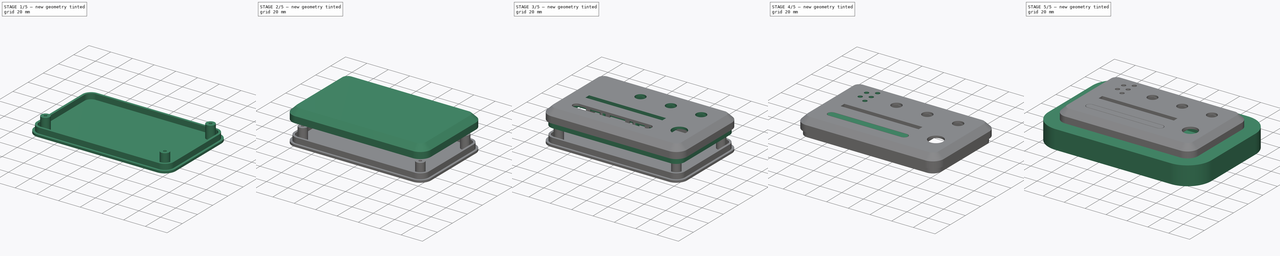
[diagram: build sequence overview — one tinted view per stage of 5, left to right]
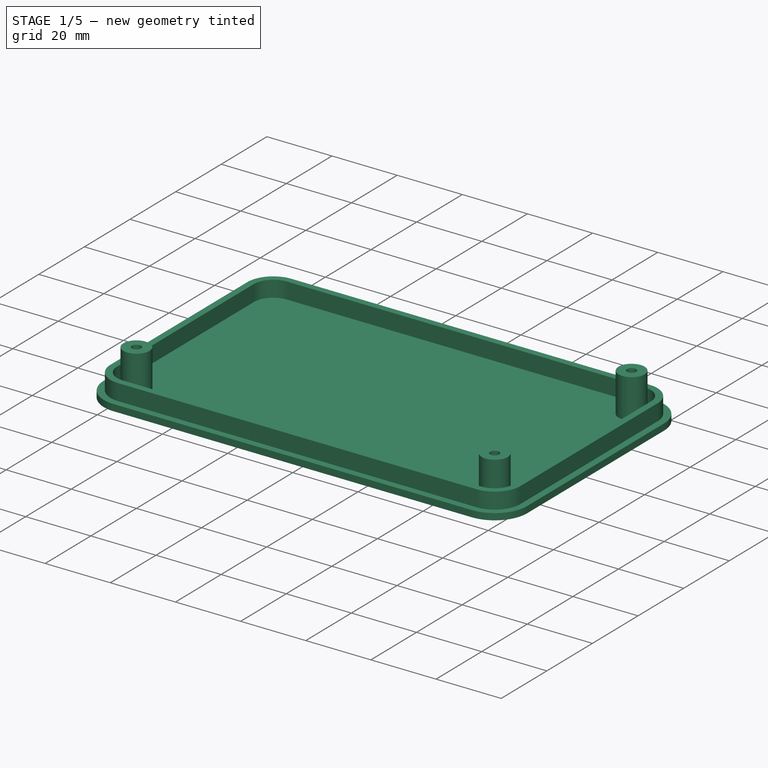
[diagram: stage 1 of 5 — iso view after this stage's code; geometry added in this stage tinted green]
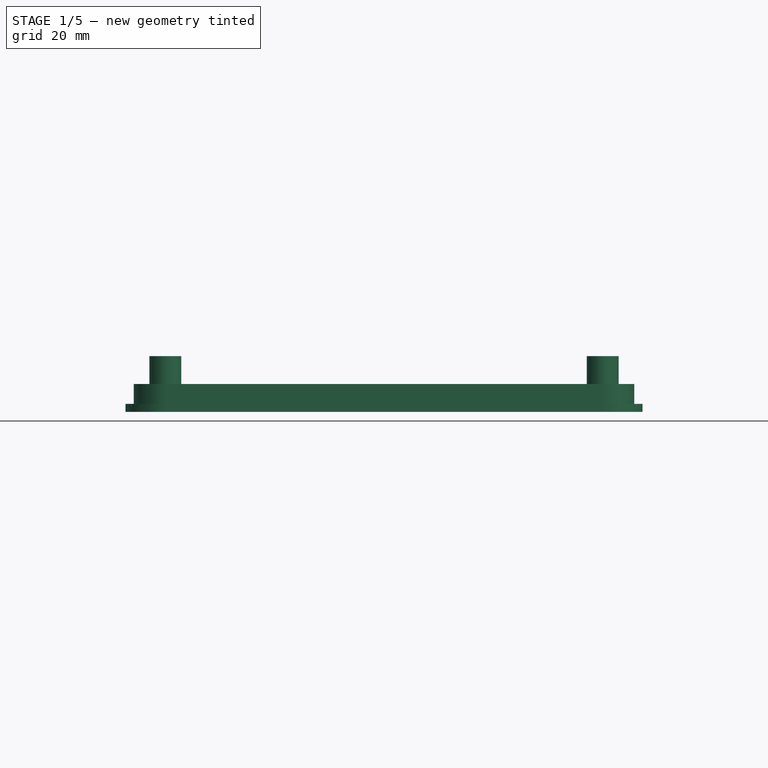
[diagram: stage 1 of 5 — front view after this stage's code; geometry added in this stage tinted green]
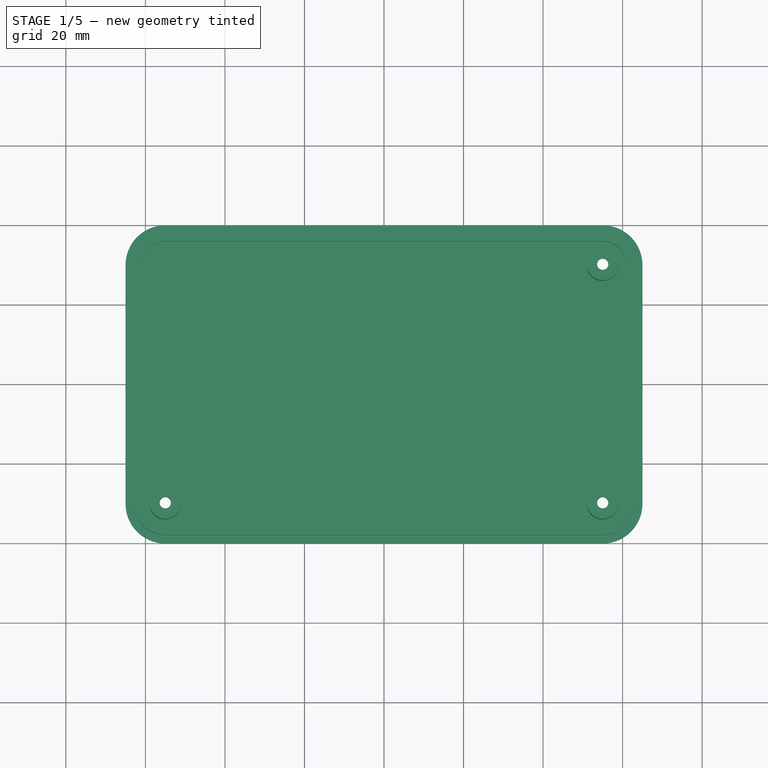
[diagram: stage 1 of 5 — top view after this stage's code; geometry added in this stage tinted green]
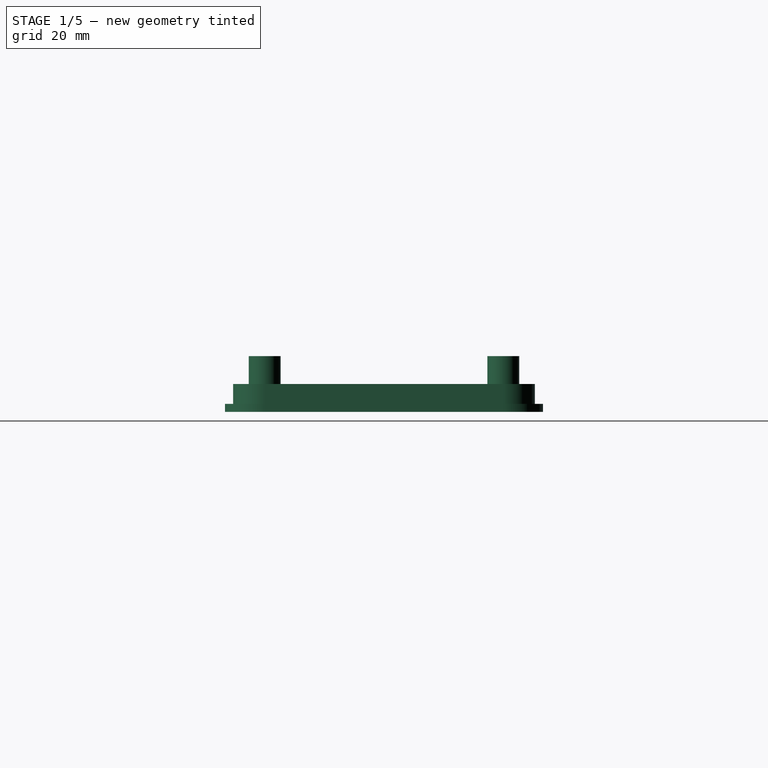
[diagram: stage 1 of 5 — right view after this stage's code; geometry added in this stage tinted green]
FCSTD DOCUMENT  (FreeCAD 2021.328R24301 +3441 (Git))
Label: granular_comtroller
License: All rights reserved
LicenseURL: http://en.wikipedia.org/wiki/All_rights_reserved
objects: Sketcher::SketchObject×29, PartDesign::Pad×16, App::Part×6, PartDesign::Body×6, PartDesign::Pocket×5, Part::SubShapeBinder×4, PartDesign::Chamfer×2, PartDesign::CoordinateSystem×2, Part::Feature×2, PartDesign::Thickness×1, PartDesign::Plane×1, PartDesign::FeatureWrap×1, Part::Extrusion×1, Part::Chamfer×1, PartDesign::SubShapeBinder×1, PartDesign::FeatureBase×1
note: 123 computed .brp shape members not serialized (recipe doc carries the construction recipe); baked Part::Feature solids carry a one-line shape summary decoded from their .brp

FEATURE [Sketcher::SketchObject] Sketch006
  FullyConstrained = false
  MapMode = 5
  sketch-geometry (4):
    g0: LineSegment StartX=-29.324 StartY=38 StartZ=0 EndX=-54.9597 EndY=38 EndZ=0
    g1: LineSegment StartX=-54.9597 StartY=38 StartZ=0 EndX=-54.9597 EndY=40 EndZ=0
    g2: LineSegment StartX=-54.9597 StartY=40 StartZ=0 EndX=-29.324 EndY=40 EndZ=0
    g3: LineSegment StartX=-29.324 StartY=40 StartZ=0 EndX=-29.324 EndY=38 EndZ=0
  constraints (10):
    c: Coincident(g0,g1)
    c: Coincident(g1,g2)
    c: Coincident(g2,g3)
    c: Coincident(g3,g0)
    c: Horizontal(g0)
    c: Horizontal(g2)
    c: Vertical(g1)
    c: Vertical(g3)
    c: DistanceY(g2) = 40
    c: DistanceY(g3,g3) = 2
FEATURE [Sketcher::SketchObject] Sketch007
  FullyConstrained = true
  MapMode = 5
  Placement = pos=(0,0,6) rot=(0,0,1;0rad)
FEATURE [Sketcher::SketchObject] Sketch008
  AttachmentOffset = pos=(0,0,-18) rot=(0,0,1;0rad)
  FullyConstrained = true
  MapMode = 5
  Placement = pos=(0,0,-18) rot=(0,0,1;0rad)
  Support = -> [XY_Plane003]
  sketch-geometry (8):
    g0: LineSegment StartX=-55 StartY=-40 StartZ=0 EndX=55 EndY=-40 EndZ=0
    g1: LineSegment StartX=65 StartY=-30 StartZ=0 EndX=65 EndY=30 EndZ=0
    g2: LineSegment StartX=55 StartY=40 StartZ=0 EndX=-55 EndY=40 EndZ=0
    g3: LineSegment StartX=-65 StartY=30 StartZ=0 EndX=-65 EndY=-30 EndZ=0
    g4: ArcOfCircle CenterX=-55 CenterY=30 CenterZ=0 NormalX=0 NormalY=0 NormalZ=1 AngleXU=0 Radius=10 StartAngle=1.5708 EndAngle=3.14159
    g5: ArcOfCircle CenterX=55 CenterY=30 CenterZ=0 NormalX=0 NormalY=0 NormalZ=1 AngleXU=0 Radius=10 StartAngle=0 EndAngle=1.5708
    g6: ArcOfCircle CenterX=-55 CenterY=-30 CenterZ=0 NormalX=0 NormalY=0 NormalZ=1 AngleXU=0 Radius=10 StartAngle=3.14159 EndAngle=4.71239
    g7: ArcOfCircle CenterX=55 CenterY=-30 CenterZ=0 NormalX=0 NormalY=0 NormalZ=1 AngleXU=0 Radius=10 StartAngle=4.71239 EndAngle=6.28319
  constraints (20):
    c: Horizontal(g0)
    c: Horizontal(g2)
    c: Vertical(g1)
    c: Tangent(g2,g4) = -1.5708
    c: Tangent(g3,g4) = -1.5708
    c: Tangent(g2,g5) = -1.5708
    c: Tangent(g1,g5) = -1.5708
    c: Tangent(g3,g6) = -1.5708
    c: Tangent(g0,g6) = -1.5708
    c: Tangent(g1,g7) = -1.5708
    c: Tangent(g0,g7) = -1.5708
    c: DistanceX(g4) = -55
    c: DistanceY(g4) = 30
    c: DistanceX(g6) = -55
    c: DistanceY(g6) = -30
    c: DistanceX(g5) = 55
    c: DistanceY(g5) = 30
    c: DistanceX(g7) = 55
    c: DistanceY(g7) = -30
    c: Radius(g4) = 10
FEATURE [Part::SubShapeBinder] Import001  label="Import001(wood_part)"
  BindCopyOnChange = 0
  BindMode = 0
  ClaimChildren = false
  Context = -> Body002 [Import001.]
  FillStyle = 0
  Fuse = false
  MakeFace = false
  PartialLoad = false
  Relative = true
  Support = -> [Chamfer001]
  _Version = 7
FEATURE [PartDesign::Pad] Pad004
  ClaimChildren = false
  Direction = (1,1,1)
  Fit = 0
  FitJoin = 0
  InnerFit = 0
  InnerFitJoin = 0
  InnerTaperAngle = 0
  InnerTaperAngleRev = 0
  Length = 2
  Length2 = 100
  NewSolid = false
  Profile = -> Sketch008
  Reversed = true
  Suppress = false
  Type = 0
FEATURE [Sketcher::SketchObject] Sketch009
  ExternalGeometry = -> [Pad004]
  FullyConstrained = false
  MapMode = 5
  Placement = pos=(0,0,-18) rot=(0,0,1;0rad)
  Support = -> [Pad004]
  sketch-geometry (16):
    g0: LineSegment StartX=-55 StartY=35.932 StartZ=0 EndX=55 EndY=35.932 EndZ=0
    g1: LineSegment StartX=60.932 StartY=30 StartZ=0 EndX=60.932 EndY=-30 EndZ=0
    g2: LineSegment StartX=55 StartY=-35.932 StartZ=0 EndX=-55 EndY=-35.932 EndZ=0
    g3: LineSegment StartX=-60.932 StartY=-30 StartZ=0 EndX=-60.932 EndY=30 EndZ=0
    g4: ArcOfCircle CenterX=55 CenterY=30 CenterZ=0 NormalX=0 NormalY=0 NormalZ=1 AngleXU=0 Radius=5.932 StartAngle=1e-16 EndAngle=1.5708
    g5: ArcOfCircle CenterX=-55 CenterY=30 CenterZ=0 NormalX=0 NormalY=0 NormalZ=1 AngleXU=0 Radius=5.932 StartAngle=1.5708 EndAngle=3.14159
    g6: ArcOfCircle CenterX=-55 CenterY=-30 CenterZ=0 NormalX=0 NormalY=0 NormalZ=1 AngleXU=0 Radius=5.932 StartAngle=3.14159 EndAngle=4.71239
    g7: ArcOfCircle CenterX=55 CenterY=-30 CenterZ=0 NormalX=0 NormalY=0 NormalZ=1 AngleXU=0 Radius=5.932 StartAngle=4.71239 EndAngle=6.28319
    g8: LineSegment StartX=-55 StartY=37.932 StartZ=0 EndX=55 EndY=37.932 EndZ=0
    g9: LineSegment StartX=62.932 StartY=30 StartZ=0 EndX=62.932 EndY=-30 EndZ=0
    g10: LineSegment StartX=55 StartY=-37.932 StartZ=0 EndX=-55 EndY=-37.932 EndZ=0
    g11: LineSegment StartX=-62.932 StartY=-30 StartZ=0 EndX=-62.932 EndY=30 EndZ=0
    g12: ArcOfCircle CenterX=-55 CenterY=30 CenterZ=0 NormalX=0 NormalY=0 NormalZ=1 AngleXU=0 Radius=7.932 StartAngle=1.5708 EndAngle=3.14159
    g13: ArcOfCircle CenterX=55 CenterY=30 CenterZ=0 NormalX=0 NormalY=0 NormalZ=1 AngleXU=0 Radius=7.932 StartAngle=0 EndAngle=1.5708
    g14: ArcOfCircle CenterX=-55 CenterY=-30 CenterZ=0 NormalX=0 NormalY=0 NormalZ=1 AngleXU=0 Radius=7.932 StartAngle=3.14159 EndAngle=4.71239
    g15: ArcOfCircle CenterX=55 CenterY=-30 CenterZ=0 NormalX=0 NormalY=0 NormalZ=1 AngleXU=0 Radius=7.932 StartAngle=4.71239 EndAngle=6.28319
  constraints (31):
    c: Horizontal(g0)
    c: Horizontal(g2)
    c: Vertical(g1)
    c: Tangent(g0,g4) = 1.5708
    c: Tangent(g1,g4) = 1.5708
    c: Tangent(g0,g5) = 1.5708
    c: Tangent(g3,g5) = 1.5708
    c: Tangent(g3,g6) = 1.5708
    c: Tangent(g2,g6) = 1.5708
    c: Tangent(g1,g7) = 1.5708
    c: Tangent(g2,g7) = 1.5708
    c: Coincident(g5,g-4)
    c: Coincident(g4,g-3)
    c: Coincident(g6,g-5)
    c: Coincident(g7,g-6)
    c: Horizontal(g8)
    c: Horizontal(g10)
    c: Vertical(g9)
    c: Tangent(g8,g12) = 1.5708
    c: Tangent(g11,g12) = 1.5708
    c: Tangent(g8,g13) = 1.5708
    c: Tangent(g9,g13) = 1.5708
    c: Tangent(g11,g14) = 1.5708
    c: Tangent(g10,g14) = 1.5708
    c: Coincident(g6,g14)
    c: Tangent(g9,g15) = 1.5708
    c: Tangent(g10,g15) = 1.5708
    c: Coincident(g15,g7)
    c: Coincident(g4,g13)
    c: Coincident(g5,g12)
    c: DistanceY(g0,g8) = 2
FEATURE [PartDesign::Pad] Pad005
  BaseFeature = -> Pad004
  ClaimChildren = false
  Direction = (1,1,1)
  Fit = 0
  FitJoin = 0
  InnerFit = 0
  InnerFitJoin = 0
  InnerTaperAngle = 0
  InnerTaperAngleRev = 0
  Length = 5
  Length2 = 100
  NewSolid = false
  Profile = -> Sketch009
  Suppress = false
  Type = 0
FEATURE [Part::SubShapeBinder] Import002  label="Import002(Pcb_e171)"
  BindCopyOnChange = 0
  BindMode = 0
  ClaimChildren = false
  Context = -> Body002 [Import002.]
  FillStyle = 0
  Fuse = false
  MakeFace = false
  PartialLoad = false
  Relative = true
  Support = -> [Board_e171[Board_Geoms_e171.Pcb_e171.]]
  _Version = 7
FEATURE [Sketcher::SketchObject] Sketch010
  ExternalGeometry = -> [Import002]
  FullyConstrained = true
  MapMode = 5
  Placement = pos=(0,0,-18) rot=(0,0,1;0rad)
  Support = -> [Pad005]
  sketch-geometry (8):
    g0: Circle CenterX=-54.96 CenterY=27.27 CenterZ=0 NormalX=0 NormalY=0 NormalZ=1 AngleXU=0 Radius=1.4
    g1: Circle CenterX=-17.69 CenterY=27.4 CenterZ=0 NormalX=0 NormalY=0 NormalZ=1 AngleXU=0 Radius=1.4
    g2: Circle CenterX=-54.95 CenterY=-4.97 CenterZ=0 NormalX=0 NormalY=0 NormalZ=1 AngleXU=0 Radius=1.4
    g3: Circle CenterX=-17.39 CenterY=-4.97 CenterZ=0 NormalX=0 NormalY=0 NormalZ=1 AngleXU=0 Radius=1.4
    g4: Circle CenterX=-17.39 CenterY=-4.97 CenterZ=0 NormalX=0 NormalY=0 NormalZ=1 AngleXU=0 Radius=3
    g5: Circle CenterX=-54.95 CenterY=-4.97 CenterZ=0 NormalX=0 NormalY=0 NormalZ=1 AngleXU=0 Radius=3
    g6: Circle CenterX=-54.96 CenterY=27.27 CenterZ=0 NormalX=0 NormalY=0 NormalZ=1 AngleXU=0 Radius=3
    g7: Circle CenterX=-17.69 CenterY=27.4 CenterZ=0 NormalX=0 NormalY=0 NormalZ=1 AngleXU=0 Radius=3
  constraints (16):
    c: Coincident(g0,g-3)
    c: Coincident(g1,g-4)
    c: Coincident(g2,g-5)
    c: Coincident(g3,g-6)
    c: Coincident(g4,g3)
    c: Coincident(g5,g2)
    c: Coincident(g6,g0)
    c: Coincident(g7,g1)
    c: Radius(g0) = 1.4
    c: Equal(g0,g1)
    c: Equal(g0,g2)
    c: Equal(g0,g3)
    c: Radius(g6) = 3
    c: Equal(g6,g7)
    c: Equal(g6,g5)
    c: Equal(g6,g4)
FEATURE [Sketcher::SketchObject] Sketch011
  ExternalGeometry = -> [Pad005]
  FullyConstrained = true
  MapMode = 5
  Placement = pos=(0,0,-18) rot=(0,0,1;0rad)
  Support = -> [Pad005]
  sketch-geometry (3):
    g0: Circle CenterX=55 CenterY=30 CenterZ=0 NormalX=0 NormalY=0 NormalZ=1 AngleXU=0 Radius=4
    g1: Circle CenterX=55 CenterY=-30 CenterZ=0 NormalX=0 NormalY=0 NormalZ=1 AngleXU=0 Radius=4
    g2: Circle CenterX=-55 CenterY=-30 CenterZ=0 NormalX=0 NormalY=0 NormalZ=1 AngleXU=0 Radius=4
  constraints (6):
    c: Coincident(g0,g-3)
    c: Coincident(g1,g-5)
    c: Coincident(g2,g-4)
    c: Equal(g2,g1)
    c: Equal(g1,g0)
    c: Radius(g2) = 4
FEATURE [PartDesign::Pad] Pad006
  BaseFeature = -> Pad005
  ClaimChildren = false
  Direction = (1,1,1)
  Fit = 0
  FitJoin = 0
  InnerFit = 0
  InnerFitJoin = 0
  InnerTaperAngle = 0
  InnerTaperAngleRev = 0
  Length = 12
  Length2 = 100
  NewSolid = false
  Profile = -> Sketch011
  Suppress = false
  Type = 0
FEATURE [Sketcher::SketchObject] Sketch012
  ExternalGeometry = -> [Pad006]
  FullyConstrained = true
  MapMode = 5
  Placement = pos=(0,0,-20) rot=(1,0,0;3.14159rad)
  Support = -> [Pad006]
  sketch-geometry (3):
    g0: Circle CenterX=-55 CenterY=30 CenterZ=0 NormalX=0 NormalY=0 NormalZ=1 AngleXU=0 Radius=3.1
    g1: Circle CenterX=55 CenterY=30 CenterZ=0 NormalX=0 NormalY=0 NormalZ=1 AngleXU=0 Radius=3.1
    g2: Circle CenterX=55 CenterY=-30 CenterZ=0 NormalX=0 NormalY=0 NormalZ=1 AngleXU=0 Radius=3.1
  constraints (6):
    c: Coincident(g0,g-4)
    c: Coincident(g1,g-3)
    c: Coincident(g2,g-5)
    c: Radius(g0) = 3.1
    c: Equal(g0,g1)
    c: Equal(g1,g2)
FEATURE [PartDesign::Pocket] Pocket001
  BaseFeature = -> Pad006
  ClaimChildren = false
  Fit = 0
  FitJoin = 0
  InnerFit = 0
  InnerFitJoin = 0
  InnerTaperAngle = 0
  InnerTaperAngleRev = 0
  Length = 12
  Length2 = 100
  NewSolid = false
  Profile = -> Sketch012
  Suppress = false
  Type = 0
FEATURE [Sketcher::SketchObject] Sketch013
  ExternalGeometry = -> [Pocket001]
  FullyConstrained = true
  MapMode = 5
  Placement = pos=(0,0,-6) rot=(0,0,1;0rad)
  Support = -> [Pocket001]
  sketch-geometry (3):
    g0: Circle CenterX=-55 CenterY=-30 CenterZ=0 NormalX=0 NormalY=0 NormalZ=1 AngleXU=0 Radius=1.4
    g1: Circle CenterX=55 CenterY=-30 CenterZ=0 NormalX=0 NormalY=0 NormalZ=1 AngleXU=0 Radius=1.4
    g2: Circle CenterX=55 CenterY=30 CenterZ=0 NormalX=0 NormalY=0 NormalZ=1 AngleXU=0 Radius=1.4
  constraints (6):
    c: Coincident(g0,g-3)
    c: Coincident(g1,g-4)
    c: Coincident(g2,g-5)
    c: Radius(g0) = 1.4
    c: Equal(g0,g1)
    c: Equal(g0,g2)
FEATURE [PartDesign::Pocket] Pocket002
  BaseFeature = -> Pocket001
  ClaimChildren = false
  Fit = 0
  FitJoin = 0
  InnerFit = 0
  InnerFitJoin = 0
  InnerTaperAngle = 0
  InnerTaperAngleRev = 0
  Length = 5
  Length2 = 100
  NewSolid = false
  Profile = -> Sketch013
  Suppress = false
  Type = 0
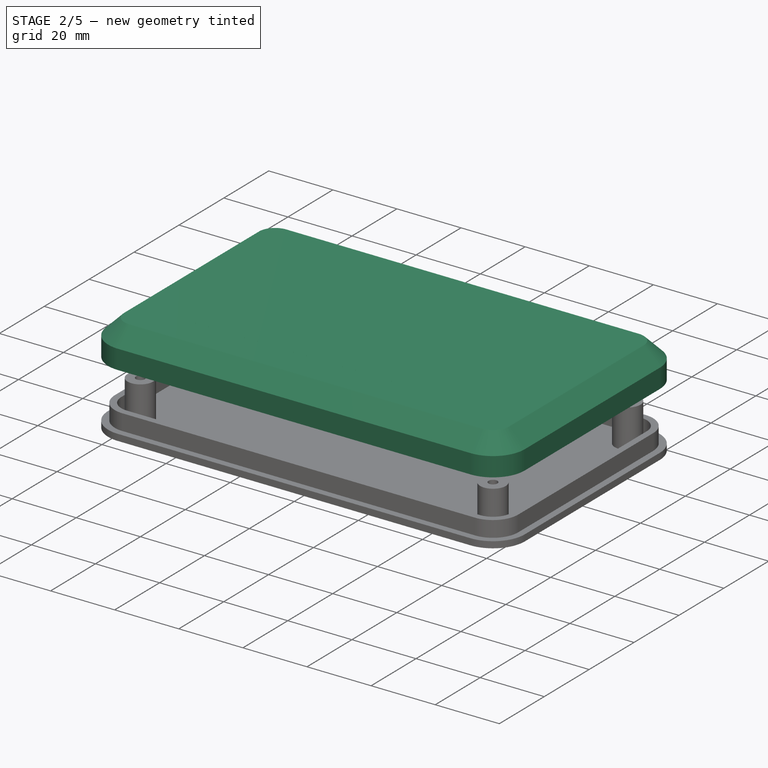
[diagram: stage 2 of 5 — iso view after this stage's code; geometry added in this stage tinted green]
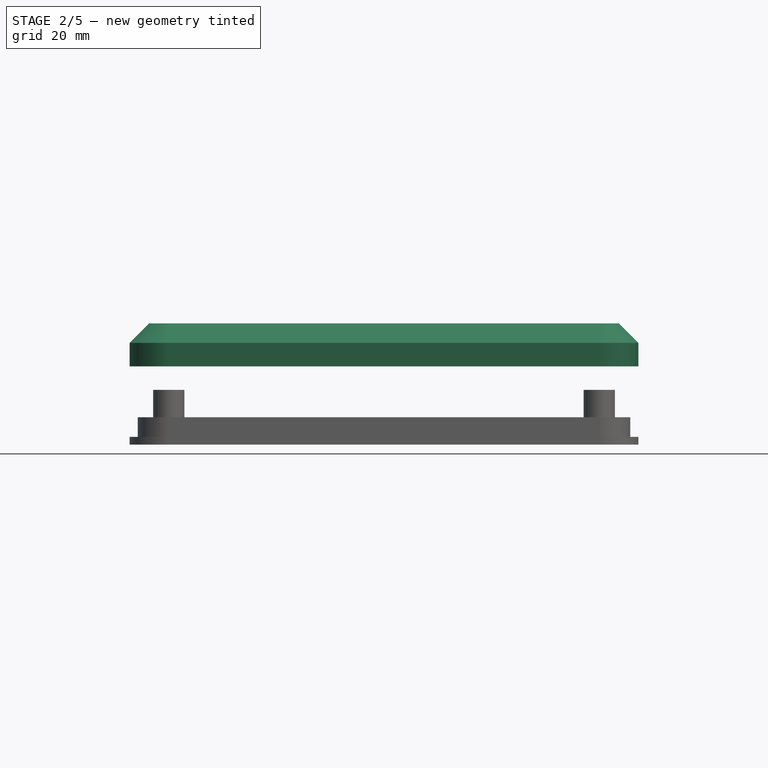
[diagram: stage 2 of 5 — front view after this stage's code; geometry added in this stage tinted green]
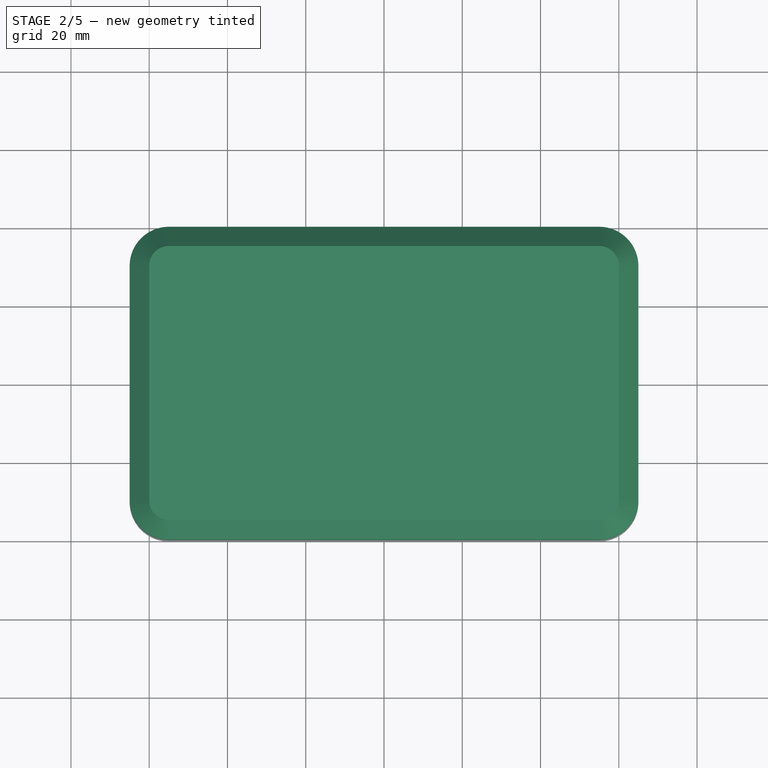
[diagram: stage 2 of 5 — top view after this stage's code; geometry added in this stage tinted green]
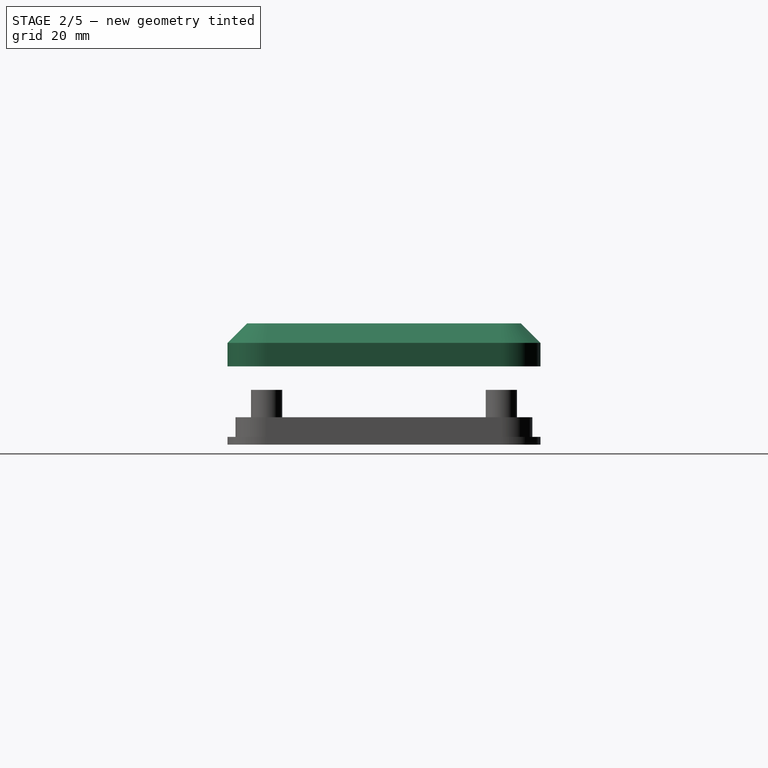
[diagram: stage 2 of 5 — right view after this stage's code; geometry added in this stage tinted green]
FEATURE [Sketcher::SketchObject] Sketch
  FullyConstrained = true
  MapMode = 5
  Support = -> [XY_Plane]
  sketch-geometry (12):
    g0: LineSegment StartX=-55 StartY=40 StartZ=0 EndX=55 EndY=40 EndZ=0
    g1: LineSegment StartX=65 StartY=30 StartZ=0 EndX=65 EndY=-30 EndZ=0
    g2: LineSegment StartX=55 StartY=-40 StartZ=0 EndX=-55 EndY=-40 EndZ=0
    g3: LineSegment StartX=-65 StartY=-30 StartZ=0 EndX=-65 EndY=30 EndZ=0
    g4: ArcOfCircle CenterX=-55 CenterY=30 CenterZ=0 NormalX=0 NormalY=0 NormalZ=1 AngleXU=0 Radius=10 StartAngle=1.5708 EndAngle=3.14159
    g5: ArcOfCircle CenterX=55 CenterY=30 CenterZ=0 NormalX=0 NormalY=0 NormalZ=1 AngleXU=0 Radius=10 StartAngle=1.34e-14 EndAngle=1.5708
    g6: ArcOfCircle CenterX=-55 CenterY=-30 CenterZ=0 NormalX=0 NormalY=0 NormalZ=1 AngleXU=0 Radius=10 StartAngle=3.14159 EndAngle=4.71239
    g7: ArcOfCircle CenterX=55 CenterY=-30 CenterZ=0 NormalX=0 NormalY=0 NormalZ=1 AngleXU=0 Radius=10 StartAngle=4.71239 EndAngle=6.28319
    g8: LineSegment [constr] StartX=-55 StartY=30 StartZ=0 EndX=0 EndY=0 EndZ=0
    g9: LineSegment [constr] StartX=0 StartY=0 StartZ=0 EndX=-55 EndY=-30 EndZ=0
    g10: LineSegment [constr] StartX=55 StartY=30 StartZ=0 EndX=0 EndY=0 EndZ=0
    g11: LineSegment [constr] StartX=0 StartY=0 StartZ=0 EndX=55 EndY=-30 EndZ=0
  constraints (28):
    c: Horizontal(g0)
    c: Horizontal(g2)
    c: Vertical(g1)
    c: Vertical(g3)
    c: Tangent(g0,g4) = 1.5708
    c: Tangent(g3,g4) = 1.5708
    c: Tangent(g0,g5) = 1.5708
    c: Tangent(g1,g5) = 1.5708
    c: Tangent(g3,g6) = 1.5708
    c: Tangent(g2,g6) = 1.5708
    c: Tangent(g1,g7) = 1.5708
    c: Tangent(g2,g7) = 1.5708
    c: Coincident(g8,g4)
    c: Coincident(g8,g-1)
    c: Coincident(g8,g9)
    c: Coincident(g9,g6)
    c: Coincident(g10,g5)
    c: Coincident(g10,g-1)
    c: Coincident(g10,g11)
    c: Coincident(g11,g7)
    c: Equal(g9,g8)
    c: Equal(g8,g10)
    c: Equal(g10,g11)
    c: Equal(g5,g7)
    c: Equal(g7,g6)
    c: DistanceX(g3,g1) = 130
    c: DistanceY(g2,g0) = 80
    c: Radius(g5) = 10
FEATURE [PartDesign::Pad] Pad
  ClaimChildren = false
  Direction = (1,1,1)
  Fit = 0
  FitJoin = 0
  InnerFit = 0
  InnerFitJoin = 0
  InnerTaperAngle = 0
  InnerTaperAngleRev = 0
  Length = 11
  Length2 = 100
  NewSolid = false
  Profile = -> Sketch
  Suppress = false
  Type = 0
FEATURE [PartDesign::Chamfer] Chamfer
  Angle = 45
  Base = -> Pad [Edge22]
  BaseFeature = -> Pad
  ChamferType = 0
  FlipDirection = false
  NewSolid = false
  Size = 5
  Size2 = 1
  SupportTransform = false
  Suppress = false
FEATURE [PartDesign::Thickness] Thickness
  Base = -> Chamfer [Face4]
  BaseFeature = -> Chamfer
  Intersection = false
  Join = 0
  Mode = 0
  NewSolid = false
  Reversed = true
  SupportTransform = false
  Suppress = false
  Value = 2
FEATURE [Sketcher::SketchObject] Sketch017
  FullyConstrained = false
  MapMode = 5
  Placement = pos=(0,0,11) rot=(0,0,1;0rad)
  Support = -> [DatumPlane]
  sketch-geometry (63):
    g0: LineSegment [constr] StartX=-21.1523 StartY=27.4658 StartZ=0 EndX=-5.15227 EndY=27.4658 EndZ=0
    g1: LineSegment [constr] StartX=-5.15227 StartY=27.4658 StartZ=0 EndX=-5.15227 EndY=11.4658 EndZ=0
    g2: LineSegment [constr] StartX=-5.15227 StartY=11.4658 StartZ=0 EndX=-21.1523 EndY=11.4658 EndZ=0
    g3: LineSegment [constr] StartX=-21.1523 StartY=11.4658 StartZ=0 EndX=-21.1523 EndY=27.4658 EndZ=0
    g4: LineSegment [constr] StartX=7.27423 StartY=27.4658 StartZ=0 EndX=23.2742 EndY=27.4658 EndZ=0
    g5: LineSegment [constr] StartX=23.2742 StartY=27.4658 StartZ=0 EndX=23.2742 EndY=11.4658 EndZ=0
    g6: LineSegment [constr] StartX=23.2742 StartY=11.4658 StartZ=0 EndX=7.27423 EndY=11.4658 EndZ=0
    g7: LineSegment [constr] StartX=7.27423 StartY=11.4658 StartZ=0 EndX=7.27423 EndY=27.4658 EndZ=0
    g8: LineSegment [constr] StartX=35.7007 StartY=27.4658 StartZ=0 EndX=51.7007 EndY=27.4658 EndZ=0
    g9: LineSegment [constr] StartX=51.7007 StartY=27.4658 StartZ=0 EndX=51.7007 EndY=11.4658 EndZ=0
    g10: LineSegment [constr] StartX=51.7007 StartY=11.4658 StartZ=0 EndX=35.7007 EndY=11.4658 EndZ=0
    g11: LineSegment [constr] StartX=35.7007 StartY=11.4658 StartZ=0 EndX=35.7007 EndY=27.4658 EndZ=0
    g12: LineSegment [constr] StartX=-21.1523 StartY=27.4658 StartZ=0 EndX=-13.1523 EndY=19.4658 EndZ=0
    g13: LineSegment [constr] StartX=-13.1523 StartY=19.4658 StartZ=0 EndX=-21.1523 EndY=11.4658 EndZ=0
    g14: LineSegment [constr] StartX=-5.15227 StartY=27.4658 StartZ=0 EndX=-13.1523 EndY=19.4658 EndZ=0
    g15: LineSegment [constr] StartX=-13.1523 StartY=19.4658 StartZ=0 EndX=-5.15227 EndY=11.4658 EndZ=0
    g16: LineSegment [constr] StartX=23.2742 StartY=27.4658 StartZ=0 EndX=15.2742 EndY=19.4658 EndZ=0
    g17: LineSegment [constr] StartX=15.2742 StartY=19.4658 StartZ=0 EndX=23.2742 EndY=11.4658 EndZ=0
    g18: LineSegment [constr] StartX=7.27423 StartY=27.4658 StartZ=0 EndX=15.2742 EndY=19.4658 EndZ=0
    g19: LineSegment [constr] StartX=15.2742 StartY=19.4658 StartZ=0 EndX=7.27423 EndY=11.4658 EndZ=0
    g20: LineSegment [constr] StartX=35.7007 StartY=27.4658 StartZ=0 EndX=43.7007 EndY=19.4658 EndZ=0
    g21: LineSegment [constr] StartX=43.7007 StartY=19.4658 StartZ=0 EndX=35.7007 EndY=11.4658 EndZ=0
    g22: LineSegment [constr] StartX=51.7007 StartY=27.4658 StartZ=0 EndX=43.7007 EndY=19.4658 EndZ=0
    g23: LineSegment [constr] StartX=43.7007 StartY=19.4658 StartZ=0 EndX=51.7007 EndY=11.4658 EndZ=0
    g24: Circle [constr] CenterX=-13.1523 CenterY=19.4658 CenterZ=0 NormalX=0 NormalY=0 NormalZ=1 AngleXU=0 Radius=4.65
    g25: Circle [constr] CenterX=15.2742 CenterY=19.4658 CenterZ=0 NormalX=0 NormalY=0 NormalZ=1 AngleXU=0 Radius=4.65
    g26: Circle [constr] CenterX=43.7007 CenterY=19.4658 CenterZ=0 NormalX=0 NormalY=0 NormalZ=1 AngleXU=0 Radius=4.65
    g27: LineSegment [constr] StartX=-5.15227 StartY=27.4658 StartZ=0 EndX=7.27423 EndY=27.4658 EndZ=0
    g28: LineSegment [constr] StartX=23.2742 StartY=27.4658 StartZ=0 EndX=35.7007 EndY=27.4658 EndZ=0
    g29: LineSegment [constr] StartX=-55.3673 StartY=2.46585 StartZ=0 EndX=33.6327 EndY=2.46585 EndZ=0
    g30: LineSegment [constr] StartX=33.6327 StartY=2.46585 StartZ=0 EndX=33.6327 EndY=-9.53415 EndZ=0
    g31: LineSegment [constr] StartX=33.6327 StartY=-9.53415 StartZ=0 EndX=-55.3673 EndY=-9.53415 EndZ=0
    g32: LineSegment [constr] StartX=-55.3673 StartY=-9.53415 StartZ=0 EndX=-55.3673 EndY=2.46585 EndZ=0
    g33: LineSegment [constr] StartX=-46.8673 StartY=-1.03415 StartZ=0 EndX=25.1327 EndY=-1.03415 EndZ=0
    g34: LineSegment [constr] StartX=25.1327 StartY=-1.03415 StartZ=0 EndX=25.1327 EndY=-6.03415 EndZ=0
    g35: LineSegment [constr] StartX=25.1327 StartY=-6.03415 StartZ=0 EndX=-46.8673 EndY=-6.03415 EndZ=0
    g36: LineSegment [constr] StartX=-46.8673 StartY=-6.03415 StartZ=0 EndX=-46.8673 EndY=-1.03415 EndZ=0
    g37: LineSegment [constr] StartX=-55.3673 StartY=2.46585 StartZ=0 EndX=-46.8673 EndY=-1.03415 EndZ=0
    g38: LineSegment [constr] StartX=-46.8673 StartY=-6.03415 StartZ=0 EndX=-55.3673 EndY=-9.53415 EndZ=0
    g39: LineSegment [constr] StartX=33.6327 StartY=2.46585 StartZ=0 EndX=25.1327 EndY=-1.03415 EndZ=0
    g40: LineSegment [constr] StartX=25.1327 StartY=-6.03415 StartZ=0 EndX=33.6327 EndY=-9.53415 EndZ=0
    g41: LineSegment [constr] StartX=-53.3673 StartY=-16.5342 StartZ=0 EndX=31.6327 EndY=-16.5342 EndZ=0
    g42: LineSegment [constr] StartX=31.6327 StartY=-16.5342 StartZ=0 EndX=31.6327 EndY=-26.5342 EndZ=0
    g43: LineSegment [constr] StartX=31.6327 StartY=-26.5342 StartZ=0 EndX=-53.3673 EndY=-26.5342 EndZ=0
    g44: LineSegment [constr] StartX=-53.3673 StartY=-26.5342 StartZ=0 EndX=-53.3673 EndY=-16.5342 EndZ=0
    g45: LineSegment [constr] StartX=-55.3673 StartY=-9.53415 StartZ=0 EndX=-53.3673 EndY=-16.5342 EndZ=0
    g46: LineSegment [constr] StartX=33.6327 StartY=-9.53415 StartZ=0 EndX=31.6327 EndY=-16.5342 EndZ=0
    g47: ArcOfCircle CenterX=-44.3673 CenterY=-21.5342 CenterZ=0 NormalX=0 NormalY=0 NormalZ=1 AngleXU=0 Radius=3.2 StartAngle=1.5708 EndAngle=4.71239
    g48: ArcOfCircle CenterX=22.6327 CenterY=-21.5342 CenterZ=0 NormalX=0 NormalY=0 NormalZ=1 AngleXU=0 Radius=3.2 StartAngle=4.71239 EndAngle=7.85398
    g49: LineSegment StartX=-44.3673 StartY=-24.7342 StartZ=0 EndX=22.6327 EndY=-24.7342 EndZ=0
    g50: LineSegment StartX=-44.3673 StartY=-18.3342 StartZ=0 EndX=22.6327 EndY=-18.3342 EndZ=0
    g51: LineSegment [constr] StartX=-53.3673 StartY=-16.5342 StartZ=0 EndX=-44.3673 EndY=-21.5342 EndZ=0
    g52: LineSegment [constr] StartX=-44.3673 StartY=-21.5342 StartZ=0 EndX=-53.3673 EndY=-26.5342 EndZ=0
    g53: LineSegment [constr] StartX=31.6327 StartY=-16.5342 StartZ=0 EndX=22.6327 EndY=-21.5342 EndZ=0
    g54: LineSegment [constr] StartX=22.6327 StartY=-21.5342 StartZ=0 EndX=31.6327 EndY=-26.5342 EndZ=0
    g55: Circle [constr] CenterX=46.244 CenterY=-13.4547 CenterZ=0 NormalX=0 NormalY=0 NormalZ=1 AngleXU=0 Radius=6.75
    g56: Circle [constr] CenterX=46.244 CenterY=-13.4547 CenterZ=0 NormalX=0 NormalY=0 NormalZ=1 AngleXU=0 Radius=8.5
    g57: Circle [constr] CenterX=-13.1523 CenterY=19.4658 CenterZ=0 NormalX=0 NormalY=0 NormalZ=1 AngleXU=0 Radius=10
    g58: Circle [constr] CenterX=15.2742 CenterY=19.4658 CenterZ=0 NormalX=0 NormalY=0 NormalZ=1 AngleXU=0 Radius=10
    g59: Circle [constr] CenterX=43.7007 CenterY=19.4658 CenterZ=0 NormalX=0 NormalY=0 NormalZ=1 AngleXU=0 Radius=10
    g60: LineSegment [constr] StartX=-53.3673 StartY=-16.5342 StartZ=0 EndX=-53.3673 EndY=-9.53415 EndZ=0
    g61: LineSegment [constr] StartX=-13.1523 StartY=19.4658 StartZ=0 EndX=-13.1523 EndY=9.46585 EndZ=0
    g62: LineSegment [constr] StartX=-13.1523 StartY=2.46585 StartZ=0 EndX=-13.1523 EndY=9.46585 EndZ=0
  constraints (155):
    c: Coincident(g0,g1)
    c: Coincident(g1,g2)
    c: Coincident(g2,g3)
    c: Coincident(g3,g0)
    c: Horizontal(g0)
    c: Horizontal(g2)
    c: Vertical(g1)
    c: Vertical(g3)
    c: Coincident(g4,g5)
    c: Coincident(g5,g6)
    c: Coincident(g6,g7)
    c: Coincident(g7,g4)
    c: Horizontal(g4)
    c: Horizontal(g6)
    c: Vertical(g5)
    c: Vertical(g7)
    c: Coincident(g8,g9)
    c: Coincident(g9,g10)
    c: Coincident(g10,g11)
    c: Coincident(g11,g8)
    c: Horizontal(g8)
    c: Horizontal(g10)
    c: Vertical(g9)
    c: Vertical(g11)
    c: Equal(g0,g1)
    c: Equal(g4,g5)
    c: Equal(g8,g9)
    c: Equal(g0,g4)
    c: Equal(g4,g8)
    c: DistanceX(g0,g0) = 16
    c: Coincident(g0,g12)
    c: Coincident(g12,g13)
    c: Coincident(g13,g2)
    c: Coincident(g0,g14)
    c: Coincident(g14,g12)
    c: Coincident(g14,g15)
    c: Coincident(g15,g1)
    c: Equal(g12,g14)
    c: Equal(g14,g15)
    c: Coincident(g4,g16)
    c: Coincident(g16,g17)
    c: Coincident(g17,g5)
    c: Coincident(g4,g18)
    c: Coincident(g18,g16)
    c: Coincident(g18,g19)
    c: Coincident(g19,g6)
    c: Equal(g18,g16)
    c: Equal(g16,g19)
    c: Coincident(g8,g20)
    c: Coincident(g20,g21)
    c: Coincident(g21,g10)
    c: Coincident(g8,g22)
    c: Coincident(g22,g20)
    c: Coincident(g22,g23)
    c: Coincident(g23,g9)
    c: Equal(g23,g21)
    c: Equal(g21,g20)
    c: Coincident(g24,g12)
    c: Coincident(g25,g16)
    c: Coincident(g26,g20)
    c: Radius(g26) = 4.65
    c: Equal(g26,g25)
    c: Equal(g25,g24)
    c: DistanceY(g25,g24) = 0
    c: DistanceY(g26,g25) = 0
    c: Coincident(g27,g0)
    c: Coincident(g27,g4)
    c: Coincident(g28,g4)
    c: Coincident(g28,g8)
    c: Equal(g27,g28)
    c: Coincident(g29,g30)
    c: Coincident(g30,g31)
    c: Coincident(g31,g32)
    c: Coincident(g32,g29)
    c: Horizontal(g29)
    c: Horizontal(g31)
    c: Vertical(g30)
    c: Vertical(g32)
    c: DistanceX(g29,g29) = 89
    c: DistanceY(g30,g30) = 12
    c: Coincident(g33,g34)
    c: Coincident(g34,g35)
    c: Coincident(g35,g36)
    c: Coincident(g36,g33)
    c: Horizontal(g33)
    c: Horizontal(g35)
    c: Vertical(g34)
    c: Vertical(g36)
    c: DistanceX(g33,g33) = 72
    c: DistanceY(g36,g36) = 5
    c: Coincident(g37,g29)
    c: Coincident(g37,g33)
    c: Coincident(g38,g35)
    c: Coincident(g38,g31)
    c: Coincident(g39,g29)
    c: Coincident(g39,g33)
    c: Coincident(g40,g34)
    c: Coincident(g40,g30)
    c: Equal(g39,g40)
    c: Equal(g40,g37)
    c: Coincident(g41,g42)
    c: Coincident(g42,g43)
    c: Coincident(g43,g44)
    c: Coincident(g44,g41)
    c: Horizontal(g41)
    c: Horizontal(g43)
    c: Vertical(g42)
    c: Vertical(g44)
    c: DistanceX(g41,g41) = 85
    c: DistanceY(g42,g42) = 10
    c: Coincident(g45,g31)
    c: Coincident(g45,g41)
    c: Coincident(g46,g30)
    c: Coincident(g46,g41)
    c: Equal(g45,g46)
    c: Tangent(g47,g50) = 1.5708
    c: Tangent(g47,g49) = -1.5708
    c: Tangent(g49,g48) = -1.5708
    c: Tangent(g50,g48) = 1.5708
    c: Horizontal(g49)
    c: Equal(g47,g48)
    c: DistanceX(g47,g48) = 67
    c: Radius(g48) = 3.2
    c: Coincident(g41,g51)
    c: Coincident(g51,g47)
    c: Coincident(g51,g52)
    c: Coincident(g52,g43)
    c: Coincident(g41,g53)
    c: Coincident(g53,g48)
    c: Coincident(g53,g54)
    c: Coincident(g54,g42)
    c: Equal(g53,g54)
    c: Equal(g54,g51)
    c: Radius(g55) = 6.75
    c: Coincident(g56,g55)
    c: Radius(g56) = 8.5
    c: Coincident(g57,g24)
    c: Radius(g57) = 10
    c: Coincident(g58,g25)
    c: Coincident(g59,g26)
    c: Equal(g57,g58)
    c: Equal(g58,g59)
    c: Coincident(g60,g41)
    c: PointOnObject(g60,g31)
    c: Vertical(g60)
    c: DistanceY(g60,g60) = 7
    c: Coincident(g61,g24)
    c: PointOnObject(g61,g57)
    c: Vertical(g61)
    c: PointOnObject(g62,g29)
    c: Coincident(g62,g61)
    c: Vertical(g62)
    c: Equal(g60,g62)
    c: DistanceX(g43) = -53.3673
    c: DistanceY(g43) = -26.5342
FEATURE [PartDesign::Pad] Pad010
  ClaimChildren = false
  Direction = (1,1,1)
  Fit = 0
  FitJoin = 0
  InnerFit = 0
  InnerFitJoin = 0
  InnerTaperAngle = 0
  InnerTaperAngleRev = 0
  Length = 2.2
  Length2 = 100
  NewSolid = false
  Placement = pos=(0,0,11) rot=(0,0,1;0rad)
  Profile = -> Sketch017
  Reversed = true
  Suppress = false
  Type = 0
FEATURE [Sketcher::SketchObject] Sketch018
  ExternalGeometry = -> [Pad010]
  FullyConstrained = true
  MapMode = 5
  Placement = pos=(0,0,8.8) rot=(1,0,0;3.14159rad)
  Support = -> [Pad010]
  sketch-geometry (12):
    g0: LineSegment [constr] StartX=-53.3673 StartY=26.5342 StartZ=0 EndX=31.6327 EndY=26.5342 EndZ=0
    g1: LineSegment [constr] StartX=31.6327 StartY=26.5342 StartZ=0 EndX=31.6327 EndY=16.5342 EndZ=0
    g2: LineSegment [constr] StartX=31.6327 StartY=16.5342 StartZ=0 EndX=-53.3673 EndY=16.5342 EndZ=0
    g3: LineSegment [constr] StartX=-53.3673 StartY=16.5342 StartZ=0 EndX=-53.3673 EndY=26.5342 EndZ=0
    g4: LineSegment [constr] StartX=-53.3673 StartY=26.5342 StartZ=0 EndX=-44.3673 EndY=21.5342 EndZ=0
    g5: LineSegment [constr] StartX=-44.3673 StartY=21.5342 StartZ=0 EndX=-53.3673 EndY=16.5342 EndZ=0
    g6: LineSegment [constr] StartX=31.6327 StartY=26.5342 StartZ=0 EndX=22.6327 EndY=21.5342 EndZ=0
    g7: LineSegment [constr] StartX=22.6327 StartY=21.5342 StartZ=0 EndX=31.6327 EndY=16.5342 EndZ=0
    g8: LineSegment StartX=-55.1673 StartY=28.3342 StartZ=0 EndX=33.4327 EndY=28.3342 EndZ=0
    g9: LineSegment StartX=33.4327 StartY=28.3342 StartZ=0 EndX=33.4327 EndY=14.7342 EndZ=0
    g10: LineSegment StartX=33.4327 StartY=14.7342 StartZ=0 EndX=-55.1673 EndY=14.7342 EndZ=0
    g11: LineSegment StartX=-55.1673 StartY=14.7342 StartZ=0 EndX=-55.1673 EndY=28.3342 EndZ=0
  constraints (32):
    c: Coincident(g0,g1)
    c: Coincident(g1,g2)
    c: Coincident(g2,g3)
    c: Coincident(g3,g0)
    c: Horizontal(g0)
    c: Horizontal(g2)
    c: Vertical(g1)
    c: Vertical(g3)
    c: DistanceY(g3,g3) = 10
    c: DistanceX(g0,g0) = 85
    c: Coincident(g0,g4)
    c: Coincident(g4,g-4)
    c: Coincident(g4,g5)
    c: Coincident(g5,g2)
    c: Coincident(g0,g6)
    c: Coincident(g6,g-3)
    c: Coincident(g6,g7)
    c: Coincident(g7,g1)
    c: Equal(g4,g5)
    c: Equal(g5,g6)
    c: Coincident(g8,g9)
    c: Coincident(g9,g10)
    c: Coincident(g10,g11)
    c: Coincident(g11,g8)
    c: Horizontal(g8)
    c: Horizontal(g10)
    c: Vertical(g9)
    c: Vertical(g11)
    c: DistanceY(g9,g1) = 1.8
    c: DistanceX(g1,g9) = 1.8
    c: DistanceY(g0,g8) = 1.8
    c: DistanceX(g8,g0) = 1.8
FEATURE [PartDesign::Pad] Pad011
  BaseFeature = -> Pad010
  ClaimChildren = false
  Direction = (1,1,1)
  Fit = 0
  FitJoin = 0
  InnerFit = 0
  InnerFitJoin = 0
  InnerTaperAngle = 0
  InnerTaperAngleRev = 0
  Length = 1.5
  Length2 = 100
  NewSolid = false
  Placement = pos=(0,0,11) rot=(0,0,1;0rad)
  Profile = -> Sketch018
  Suppress = false
  Type = 0
FEATURE [Sketcher::SketchObject] Sketch019
  ExternalGeometry = -> [Pad011]
  FullyConstrained = true
  MapMode = 5
  Placement = pos=(0,0,7.3) rot=(1,0,0;3.14159rad)
  Support = -> [Pad011]
  sketch-geometry (8):
    g0: LineSegment StartX=-55.1673 StartY=28.3342 StartZ=0 EndX=33.4327 EndY=28.3342 EndZ=0
    g1: LineSegment StartX=33.4327 StartY=28.3342 StartZ=0 EndX=33.4327 EndY=14.7342 EndZ=0
    g2: LineSegment StartX=33.4327 StartY=14.7342 StartZ=0 EndX=-55.1673 EndY=14.7342 EndZ=0
    g3: LineSegment StartX=-55.1673 StartY=14.7342 StartZ=0 EndX=-55.1673 EndY=28.3342 EndZ=0
    g4: LineSegment StartX=-53.5673 StartY=26.7342 StartZ=0 EndX=31.8327 EndY=26.7342 EndZ=0
    g5: LineSegment StartX=31.8327 StartY=26.7342 StartZ=0 EndX=31.8327 EndY=16.3342 EndZ=0
    g6: LineSegment StartX=31.8327 StartY=16.3342 StartZ=0 EndX=-53.5673 EndY=16.3342 EndZ=0
    g7: LineSegment StartX=-53.5673 StartY=16.3342 StartZ=0 EndX=-53.5673 EndY=26.7342 EndZ=0
  constraints (22):
    c: Coincident(g0,g1)
    c: Coincident(g1,g2)
    c: Coincident(g2,g3)
    c: Coincident(g3,g0)
    c: Horizontal(g0)
    c: Horizontal(g2)
    c: Vertical(g1)
    c: Vertical(g3)
    c: Coincident(g0,g-3)
    c: Coincident(g1,g-4)
    c: Coincident(g4,g5)
    c: Coincident(g5,g6)
    c: Coincident(g6,g7)
    c: Coincident(g7,g4)
    c: Horizontal(g4)
    c: Horizontal(g6)
    c: Vertical(g5)
    c: Vertical(g7)
    c: DistanceY(g4,g0) = 1.6
    c: DistanceX(g4,g0) = 1.6
    c: DistanceY(g2,g6) = 1.6
    c: DistanceX(g2,g6) = 1.6
FEATURE [PartDesign::Pad] Pad012
  BaseFeature = -> Pad011
  ClaimChildren = false
  Direction = (1,1,1)
  Fit = 0
  FitJoin = 0
  InnerFit = 0
  InnerFitJoin = 0
  InnerTaperAngle = 0
  InnerTaperAngleRev = 0
  Length = 4
  Length2 = 100
  NewSolid = false
  Placement = pos=(0,0,11) rot=(0,0,1;0rad)
  Profile = -> Sketch019
  Suppress = false
  Type = 0
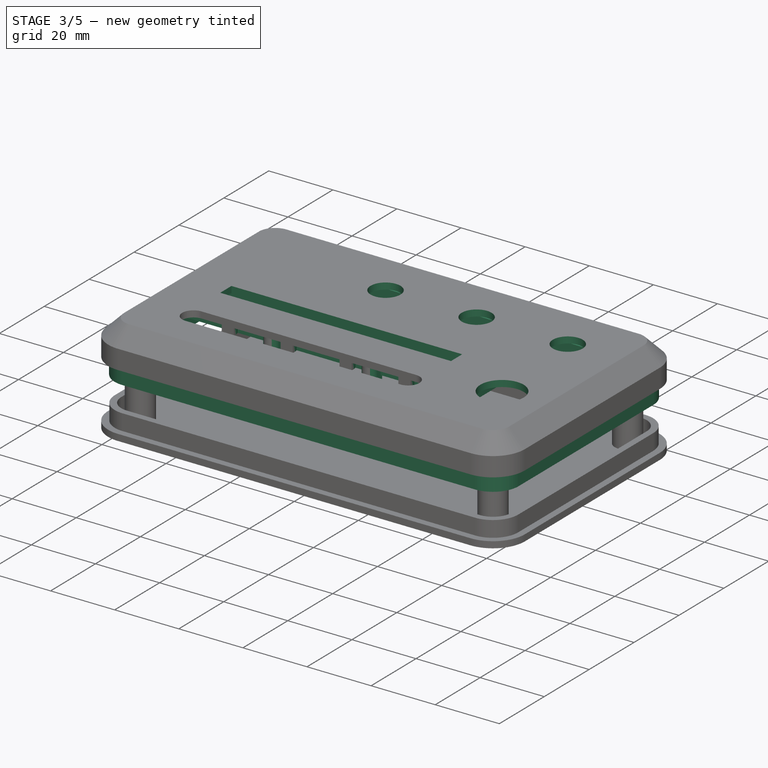
[diagram: stage 3 of 5 — iso view after this stage's code; geometry added in this stage tinted green]
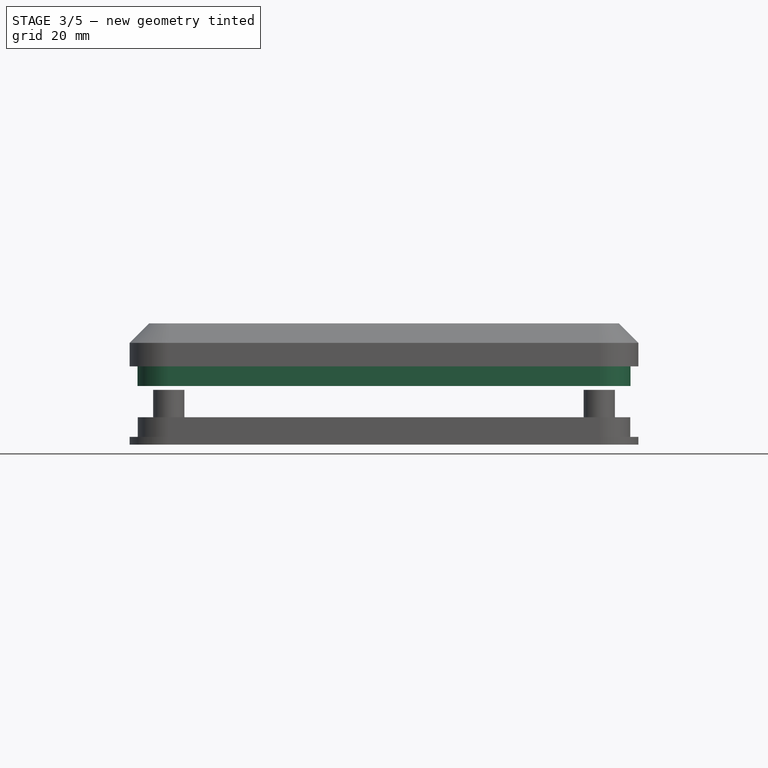
[diagram: stage 3 of 5 — front view after this stage's code; geometry added in this stage tinted green]
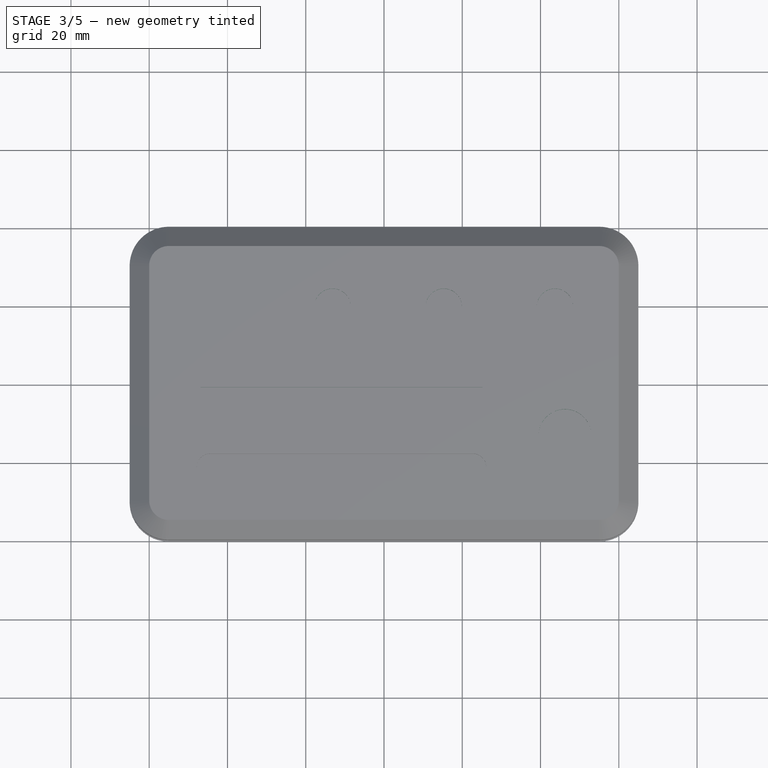
[diagram: stage 3 of 5 — top view after this stage's code; geometry added in this stage tinted green]
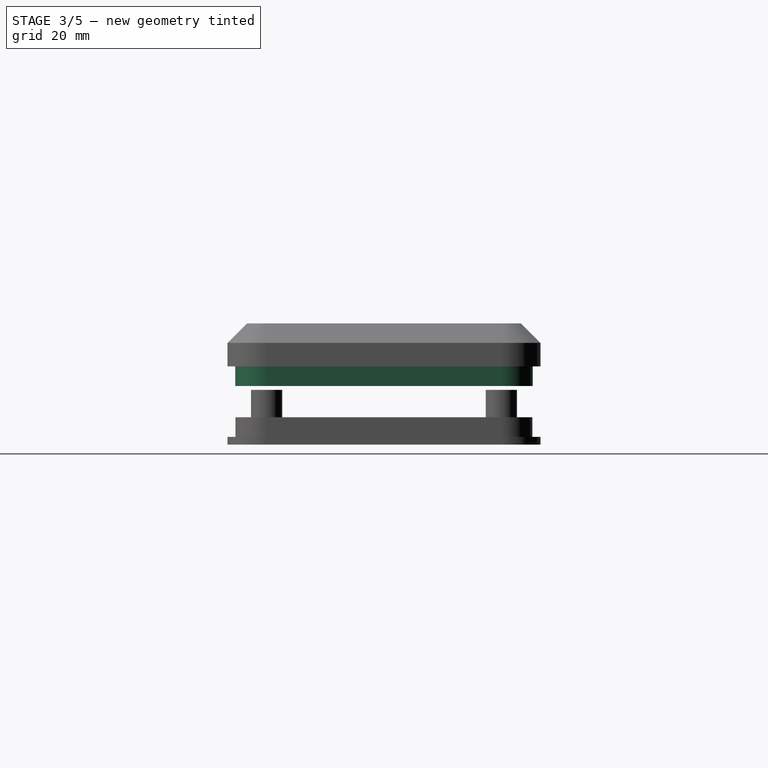
[diagram: stage 3 of 5 — right view after this stage's code; geometry added in this stage tinted green]
FEATURE [Sketcher::SketchObject] Sketch001
  FullyConstrained = true
  MapMode = 5
  Support = -> [XY_Plane002]
  sketch-geometry (12):
    g0: LineSegment StartX=-55 StartY=43 StartZ=0 EndX=55 EndY=43 EndZ=0
    g1: LineSegment StartX=65 StartY=33 StartZ=0 EndX=65 EndY=-33 EndZ=0
    g2: LineSegment StartX=55 StartY=-43 StartZ=0 EndX=-55 EndY=-43 EndZ=0
    g3: LineSegment StartX=-65 StartY=-33 StartZ=0 EndX=-65 EndY=33 EndZ=0
    g4: ArcOfCircle CenterX=-55 CenterY=33 CenterZ=0 NormalX=0 NormalY=0 NormalZ=1 AngleXU=0 Radius=10 StartAngle=1.5708 EndAngle=3.14159
    g5: ArcOfCircle CenterX=55 CenterY=33 CenterZ=0 NormalX=0 NormalY=0 NormalZ=1 AngleXU=0 Radius=10 StartAngle=0 EndAngle=1.5708
    g6: ArcOfCircle CenterX=-55 CenterY=-33 CenterZ=0 NormalX=0 NormalY=0 NormalZ=1 AngleXU=0 Radius=10 StartAngle=3.14159 EndAngle=4.71239
    g7: ArcOfCircle CenterX=55 CenterY=-33 CenterZ=0 NormalX=0 NormalY=0 NormalZ=1 AngleXU=0 Radius=10 StartAngle=4.71239 EndAngle=6.28319
    g8: LineSegment [constr] StartX=-55 StartY=33 StartZ=0 EndX=0 EndY=0 EndZ=0
    g9: LineSegment [constr] StartX=0 StartY=0 StartZ=0 EndX=-55 EndY=-33 EndZ=0
    g10: LineSegment [constr] StartX=55 StartY=33 StartZ=0 EndX=0 EndY=0 EndZ=0
    g11: LineSegment [constr] StartX=0 StartY=0 StartZ=0 EndX=55 EndY=-33 EndZ=0
  constraints (28):
    c: Horizontal(g0)
    c: Horizontal(g2)
    c: Vertical(g1)
    c: Vertical(g3)
    c: Tangent(g0,g4) = 1.5708
    c: Tangent(g3,g4) = 1.5708
    c: Tangent(g0,g5) = 1.5708
    c: Tangent(g1,g5) = 1.5708
    c: Tangent(g3,g6) = 1.5708
    c: Tangent(g2,g6) = 1.5708
    c: Tangent(g1,g7) = 1.5708
    c: Tangent(g2,g7) = 1.5708
    c: Coincident(g8,g4)
    c: Coincident(g8,g-1)
    c: Coincident(g8,g9)
    c: Coincident(g9,g6)
    c: Coincident(g10,g5)
    c: Coincident(g10,g-1)
    c: Coincident(g10,g11)
    c: Coincident(g11,g7)
    c: Equal(g9,g8)
    c: Equal(g8,g10)
    c: Equal(g10,g11)
    c: Equal(g5,g7)
    c: Equal(g7,g6)
    c: DistanceX(g3,g1) = 130
    c: DistanceY(g2,g0) = 86
    c: Radius(g5) = 10
FEATURE [PartDesign::CoordinateSystem] Local_CS_e171
  AttacherType = Attacher::AttachEngine3D
FEATURE [Part::Feature] Pcb_e171
  Placement = pos=(-124,131,-13) rot=(0,0,1;0rad)
  shape: bbox 46.35 x 44.5 x 1.6 mm, 67 faces (baked)
FEATURE [Sketcher::SketchObject] PCB_Sketch_e171
  FullyConstrained = false
  sketch-geometry (16):
    g0: LineSegment StartX=63.654 StartY=-134.97 StartZ=0 EndX=63.654 EndY=-102.73 EndZ=0
    g1: LineSegment StartX=105.61 StartY=-139.366 StartZ=0 EndX=68.05 EndY=-139.366 EndZ=0
    g2: LineSegment StartX=110.006 StartY=-102.6 StartZ=0 EndX=110.006 EndY=-134.97 EndZ=0
    g3: LineSegment StartX=95.9878 StartY=-97.903 StartZ=0 EndX=105.31 EndY=-97.904 EndZ=0
    g4: LineSegment StartX=91.395 StartY=-95.21 StartZ=0 EndX=94.654 EndY=-97.484 EndZ=0
    g5: LineSegment StartX=75.08 StartY=-94.871 StartZ=0 EndX=90.32 EndY=-94.8719 EndZ=0
    g6: LineSegment StartX=68.04 StartY=-98.344 StartZ=0 EndX=70.666 EndY=-98.344 EndZ=0
    g7: LineSegment StartX=73.442 StartY=-95.8293 StartZ=0 EndX=72.698 EndY=-97.1552 EndZ=0
    g8: ArcOfCircle CenterX=105.31 CenterY=-102.6 CenterZ=0 NormalX=0 NormalY=0 NormalZ=1 AngleXU=0 Radius=4.696 StartAngle=0 EndAngle=1.5708
    g9: ArcOfCircle CenterX=68.05 CenterY=-134.97 CenterZ=0 NormalX=0 NormalY=0 NormalZ=1 AngleXU=0 Radius=4.396 StartAngle=3.14159 EndAngle=4.71239
    g10: ArcOfCircle CenterX=105.61 CenterY=-134.97 CenterZ=0 NormalX=0 NormalY=0 NormalZ=1 AngleXU=0 Radius=4.396 StartAngle=4.71239 EndAngle=6.28319
    g11: ArcOfCircle CenterX=95.987 CenterY=-95.573 CenterZ=0 NormalX=0 NormalY=0 NormalZ=1 AngleXU=0 Radius=2.32998 StartAngle=4.10332 EndAngle=4.71275
    g12: ArcOfCircle CenterX=90.32 CenterY=-96.75 CenterZ=0 NormalX=0 NormalY=0 NormalZ=1 AngleXU=0 Radius=1.87809 StartAngle=0.961379 EndAngle=1.57081
    g13: ArcOfCircle CenterX=68.04 CenterY=-102.73 CenterZ=0 NormalX=0 NormalY=0 NormalZ=1 AngleXU=0 Radius=4.386 StartAngle=1.5708 EndAngle=3.14159
    g14: ArcOfCircle CenterX=70.666 CenterY=-96.013 CenterZ=0 NormalX=0 NormalY=0 NormalZ=1 AngleXU=0 Radius=2.331 StartAngle=4.71239 EndAngle=5.77111
    g15: ArcOfCircle CenterX=75.08 CenterY=-96.75 CenterZ=0 NormalX=0 NormalY=0 NormalZ=1 AngleXU=0 Radius=1.879 StartAngle=1.5708 EndAngle=2.62951
  constraints (16):
    c: Coincident(g0,g9)
    c: Coincident(g0,g13)
    c: Coincident(g1,g9)
    c: Coincident(g13,g6)
    c: Coincident(g14,g6)
    c: Coincident(g14,g7)
    c: Coincident(g15,g7)
    c: Coincident(g5,g15)
    c: Coincident(g12,g5)
    c: Coincident(g4,g12)
    c: Coincident(g4,g11)
    c: Coincident(g11,g3)
    c: Coincident(g3,g8)
    c: Coincident(g10,g1)
    c: Coincident(g10,g2)
    c: Coincident(g2,g8)
FEATURE [App::Part] Board_Geoms_e171
  ExportMode = 1
  Group = -> [Local_CS_e171,Pcb_e171,PCB_Sketch_e171]
  Origin = -> Origin002
  Placement = pos=(1,-1,0) rot=(0,0,1;0rad)
  _ExportChildren = -> [Local_CS_e171,Pcb_e171,PCB_Sketch_e171]
  _GroupVersion = 1
FEATURE [App::Part] Step_Models_e171
  ExportMode = 1
  Origin = -> Origin004
  _GroupVersion = 1
FEATURE [App::Part] Board_e171  label="granular_synth_controller"
  ExportMode = 1
  Group = -> [Board_Geoms_e171,Step_Models_e171]
  Origin = -> Origin003
  Placement = pos=(0,0,2) rot=(0,0,1;0rad)
  _ExportChildren = -> [Board_Geoms_e171,Step_Models_e171]
  _GroupVersion = 1
FEATURE [PartDesign::Plane] DatumPlane
  Length = 130
  MinimumLength = 10
  MinimumWidth = 10
  Placement = pos=(0,0,11) rot=(0,0,1;0rad)
  ResizeMode = 0
  Width = 80
  expr: .Placement.Base.z = Pad.Length
FEATURE [Sketcher::SketchObject] Sketch003
  FullyConstrained = false
  MapMode = 5
  Placement = pos=(0,0,11) rot=(0,0,1;0rad)
  Support = -> [DatumPlane]
  sketch-geometry (63):
    g0: LineSegment [constr] StartX=-21.1523 StartY=27.4658 StartZ=0 EndX=-5.15227 EndY=27.4658 EndZ=0
    g1: LineSegment [constr] StartX=-5.15227 StartY=27.4658 StartZ=0 EndX=-5.15227 EndY=11.4658 EndZ=0
    g2: LineSegment [constr] StartX=-5.15227 StartY=11.4658 StartZ=0 EndX=-21.1523 EndY=11.4658 EndZ=0
    g3: LineSegment [constr] StartX=-21.1523 StartY=11.4658 StartZ=0 EndX=-21.1523 EndY=27.4658 EndZ=0
    g4: LineSegment [constr] StartX=7.27423 StartY=27.4658 StartZ=0 EndX=23.2742 EndY=27.4658 EndZ=0
    g5: LineSegment [constr] StartX=23.2742 StartY=27.4658 StartZ=0 EndX=23.2742 EndY=11.4658 EndZ=0
    g6: LineSegment [constr] StartX=23.2742 StartY=11.4658 StartZ=0 EndX=7.27423 EndY=11.4658 EndZ=0
    g7: LineSegment [constr] StartX=7.27423 StartY=11.4658 StartZ=0 EndX=7.27423 EndY=27.4658 EndZ=0
    g8: LineSegment [constr] StartX=35.7007 StartY=27.4658 StartZ=0 EndX=51.7007 EndY=27.4658 EndZ=0
    g9: LineSegment [constr] StartX=51.7007 StartY=27.4658 StartZ=0 EndX=51.7007 EndY=11.4658 EndZ=0
    g10: LineSegment [constr] StartX=51.7007 StartY=11.4658 StartZ=0 EndX=35.7007 EndY=11.4658 EndZ=0
    g11: LineSegment [constr] StartX=35.7007 StartY=11.4658 StartZ=0 EndX=35.7007 EndY=27.4658 EndZ=0
    g12: LineSegment [constr] StartX=-21.1523 StartY=27.4658 StartZ=0 EndX=-13.1523 EndY=19.4658 EndZ=0
    g13: LineSegment [constr] StartX=-13.1523 StartY=19.4658 StartZ=0 EndX=-21.1523 EndY=11.4658 EndZ=0
    g14: LineSegment [constr] StartX=-5.15227 StartY=27.4658 StartZ=0 EndX=-13.1523 EndY=19.4658 EndZ=0
    g15: LineSegment [constr] StartX=-13.1523 StartY=19.4658 StartZ=0 EndX=-5.15227 EndY=11.4658 EndZ=0
    g16: LineSegment [constr] StartX=23.2742 StartY=27.4658 StartZ=0 EndX=15.2742 EndY=19.4658 EndZ=0
    g17: LineSegment [constr] StartX=15.2742 StartY=19.4658 StartZ=0 EndX=23.2742 EndY=11.4658 EndZ=0
    g18: LineSegment [constr] StartX=7.27423 StartY=27.4658 StartZ=0 EndX=15.2742 EndY=19.4658 EndZ=0
    g19: LineSegment [constr] StartX=15.2742 StartY=19.4658 StartZ=0 EndX=7.27423 EndY=11.4658 EndZ=0
    g20: LineSegment [constr] StartX=35.7007 StartY=27.4658 StartZ=0 EndX=43.7007 EndY=19.4658 EndZ=0
    g21: LineSegment [constr] StartX=43.7007 StartY=19.4658 StartZ=0 EndX=35.7007 EndY=11.4658 EndZ=0
    g22: LineSegment [constr] StartX=51.7007 StartY=27.4658 StartZ=0 EndX=43.7007 EndY=19.4658 EndZ=0
    g23: LineSegment [constr] StartX=43.7007 StartY=19.4658 StartZ=0 EndX=51.7007 EndY=11.4658 EndZ=0
    g24: Circle CenterX=-13.1523 CenterY=19.4658 CenterZ=0 NormalX=0 NormalY=0 NormalZ=1 AngleXU=0 Radius=4.65
    g25: Circle CenterX=15.2742 CenterY=19.4658 CenterZ=0 NormalX=0 NormalY=0 NormalZ=1 AngleXU=0 Radius=4.65
    g26: Circle CenterX=43.7007 CenterY=19.4658 CenterZ=0 NormalX=0 NormalY=0 NormalZ=1 AngleXU=0 Radius=4.65
    g27: LineSegment [constr] StartX=-5.15227 StartY=27.4658 StartZ=0 EndX=7.27423 EndY=27.4658 EndZ=0
    g28: LineSegment [constr] StartX=23.2742 StartY=27.4658 StartZ=0 EndX=35.7007 EndY=27.4658 EndZ=0
    g29: LineSegment [constr] StartX=-55.3673 StartY=2.46585 StartZ=0 EndX=33.6327 EndY=2.46585 EndZ=0
    g30: LineSegment [constr] StartX=33.6327 StartY=2.46585 StartZ=0 EndX=33.6327 EndY=-9.53415 EndZ=0
    g31: LineSegment [constr] StartX=33.6327 StartY=-9.53415 StartZ=0 EndX=-55.3673 EndY=-9.53415 EndZ=0
    g32: LineSegment [constr] StartX=-55.3673 StartY=-9.53415 StartZ=0 EndX=-55.3673 EndY=2.46585 EndZ=0
    g33: LineSegment StartX=-46.8673 StartY=-1.03415 StartZ=0 EndX=25.1327 EndY=-1.03415 EndZ=0
    g34: LineSegment StartX=25.1327 StartY=-1.03415 StartZ=0 EndX=25.1327 EndY=-6.03415 EndZ=0
    g35: LineSegment StartX=25.1327 StartY=-6.03415 StartZ=0 EndX=-46.8673 EndY=-6.03415 EndZ=0
    g36: LineSegment StartX=-46.8673 StartY=-6.03415 StartZ=0 EndX=-46.8673 EndY=-1.03415 EndZ=0
    g37: LineSegment [constr] StartX=-55.3673 StartY=2.46585 StartZ=0 EndX=-46.8673 EndY=-1.03415 EndZ=0
    g38: LineSegment [constr] StartX=-46.8673 StartY=-6.03415 StartZ=0 EndX=-55.3673 EndY=-9.53415 EndZ=0
    g39: LineSegment [constr] StartX=33.6327 StartY=2.46585 StartZ=0 EndX=25.1327 EndY=-1.03415 EndZ=0
    g40: LineSegment [constr] StartX=25.1327 StartY=-6.03415 StartZ=0 EndX=33.6327 EndY=-9.53415 EndZ=0
    g41: LineSegment [constr] StartX=-53.3673 StartY=-16.5342 StartZ=0 EndX=31.6327 EndY=-16.5342 EndZ=0
    g42: LineSegment [constr] StartX=31.6327 StartY=-16.5342 StartZ=0 EndX=31.6327 EndY=-26.5342 EndZ=0
    g43: LineSegment [constr] StartX=31.6327 StartY=-26.5342 StartZ=0 EndX=-53.3673 EndY=-26.5342 EndZ=0
    g44: LineSegment [constr] StartX=-53.3673 StartY=-26.5342 StartZ=0 EndX=-53.3673 EndY=-16.5342 EndZ=0
    g45: LineSegment [constr] StartX=-55.3673 StartY=-9.53415 StartZ=0 EndX=-53.3673 EndY=-16.5342 EndZ=0
    g46: LineSegment [constr] StartX=33.6327 StartY=-9.53415 StartZ=0 EndX=31.6327 EndY=-16.5342 EndZ=0
    g47: ArcOfCircle CenterX=-44.3673 CenterY=-21.5342 CenterZ=0 NormalX=0 NormalY=0 NormalZ=1 AngleXU=0 Radius=3.5 StartAngle=1.5708 EndAngle=4.71239
    g48: ArcOfCircle CenterX=22.6327 CenterY=-21.5342 CenterZ=0 NormalX=0 NormalY=0 NormalZ=1 AngleXU=0 Radius=3.5 StartAngle=4.71239 EndAngle=7.85398
    g49: LineSegment StartX=-44.3673 StartY=-25.0342 StartZ=0 EndX=22.6327 EndY=-25.0342 EndZ=0
    g50: LineSegment StartX=-44.3673 StartY=-18.0342 StartZ=0 EndX=22.6327 EndY=-18.0342 EndZ=0
    g51: LineSegment [constr] StartX=-53.3673 StartY=-16.5342 StartZ=0 EndX=-44.3673 EndY=-21.5342 EndZ=0
    g52: LineSegment [constr] StartX=-44.3673 StartY=-21.5342 StartZ=0 EndX=-53.3673 EndY=-26.5342 EndZ=0
    g53: LineSegment [constr] StartX=31.6327 StartY=-16.5342 StartZ=0 EndX=22.6327 EndY=-21.5342 EndZ=0
    g54: LineSegment [constr] StartX=22.6327 StartY=-21.5342 StartZ=0 EndX=31.6327 EndY=-26.5342 EndZ=0
    g55: Circle CenterX=46.244 CenterY=-13.4547 CenterZ=0 NormalX=0 NormalY=0 NormalZ=1 AngleXU=0 Radius=6.75
    g56: Circle [constr] CenterX=46.244 CenterY=-13.4547 CenterZ=0 NormalX=0 NormalY=0 NormalZ=1 AngleXU=0 Radius=8.5
    g57: Circle [constr] CenterX=-13.1523 CenterY=19.4658 CenterZ=0 NormalX=0 NormalY=0 NormalZ=1 AngleXU=0 Radius=10
    g58: Circle [constr] CenterX=15.2742 CenterY=19.4658 CenterZ=0 NormalX=0 NormalY=0 NormalZ=1 AngleXU=0 Radius=10
    g59: Circle [constr] CenterX=43.7007 CenterY=19.4658 CenterZ=0 NormalX=0 NormalY=0 NormalZ=1 AngleXU=0 Radius=10
    g60: LineSegment [constr] StartX=-53.3673 StartY=-16.5342 StartZ=0 EndX=-53.3673 EndY=-9.53415 EndZ=0
    g61: LineSegment [constr] StartX=-13.1523 StartY=19.4658 StartZ=0 EndX=-13.1523 EndY=9.46585 EndZ=0
    g62: LineSegment [constr] StartX=-13.1523 StartY=2.46585 StartZ=0 EndX=-13.1523 EndY=9.46585 EndZ=0
  constraints (153):
    c: Coincident(g0,g1)
    c: Coincident(g1,g2)
    c: Coincident(g2,g3)
    c: Coincident(g3,g0)
    c: Horizontal(g0)
    c: Horizontal(g2)
    c: Vertical(g1)
    c: Vertical(g3)
    c: Coincident(g4,g5)
    c: Coincident(g5,g6)
    c: Coincident(g6,g7)
    c: Coincident(g7,g4)
    c: Horizontal(g4)
    c: Horizontal(g6)
    c: Vertical(g5)
    c: Vertical(g7)
    c: Coincident(g8,g9)
    c: Coincident(g9,g10)
    c: Coincident(g10,g11)
    c: Coincident(g11,g8)
    c: Horizontal(g8)
    c: Horizontal(g10)
    c: Vertical(g9)
    c: Vertical(g11)
    c: Equal(g0,g1)
    c: Equal(g4,g5)
    c: Equal(g8,g9)
    c: Equal(g0,g4)
    c: Equal(g4,g8)
    c: DistanceX(g0,g0) = 16
    c: Coincident(g0,g12)
    c: Coincident(g12,g13)
    c: Coincident(g13,g2)
    c: Coincident(g0,g14)
    c: Coincident(g14,g12)
    c: Coincident(g14,g15)
    c: Coincident(g15,g1)
    c: Equal(g12,g14)
    c: Equal(g14,g15)
    c: Coincident(g4,g16)
    c: Coincident(g16,g17)
    c: Coincident(g17,g5)
    c: Coincident(g4,g18)
    c: Coincident(g18,g16)
    c: Coincident(g18,g19)
    c: Coincident(g19,g6)
    c: Equal(g18,g16)
    c: Equal(g16,g19)
    c: Coincident(g8,g20)
    c: Coincident(g20,g21)
    c: Coincident(g21,g10)
    c: Coincident(g8,g22)
    c: Coincident(g22,g20)
    c: Coincident(g22,g23)
    c: Coincident(g23,g9)
    c: Equal(g23,g21)
    c: Equal(g21,g20)
    c: Coincident(g24,g12)
    c: Coincident(g25,g16)
    c: Coincident(g26,g20)
    c: Radius(g26) = 4.65
    c: Equal(g26,g25)
    c: Equal(g25,g24)
    c: DistanceY(g25,g24) = 0
    c: DistanceY(g26,g25) = 0
    c: Coincident(g27,g0)
    c: Coincident(g27,g4)
    c: Coincident(g28,g4)
    c: Coincident(g28,g8)
    c: Equal(g27,g28)
    c: Coincident(g29,g30)
    c: Coincident(g30,g31)
    c: Coincident(g31,g32)
    c: Coincident(g32,g29)
    c: Horizontal(g29)
    c: Horizontal(g31)
    c: Vertical(g30)
    c: Vertical(g32)
    c: DistanceX(g29,g29) = 89
    c: DistanceY(g30,g30) = 12
    c: Coincident(g33,g34)
    c: Coincident(g34,g35)
    c: Coincident(g35,g36)
    c: Coincident(g36,g33)
    c: Horizontal(g33)
    c: Horizontal(g35)
    c: Vertical(g34)
    c: Vertical(g36)
    c: DistanceX(g33,g33) = 72
    c: DistanceY(g36,g36) = 5
    c: Coincident(g37,g29)
    c: Coincident(g37,g33)
    c: Coincident(g38,g35)
    c: Coincident(g38,g31)
    c: Coincident(g39,g29)
    c: Coincident(g39,g33)
    c: Coincident(g40,g34)
    c: Coincident(g40,g30)
    c: Equal(g39,g40)
    c: Equal(g40,g37)
    c: Coincident(g41,g42)
    c: Coincident(g42,g43)
    c: Coincident(g43,g44)
    c: Coincident(g44,g41)
    c: Horizontal(g41)
    c: Horizontal(g43)
    c: Vertical(g42)
    c: Vertical(g44)
    c: DistanceX(g41,g41) = 85
    c: DistanceY(g42,g42) = 10
    c: Coincident(g45,g31)
    c: Coincident(g45,g41)
    c: Coincident(g46,g30)
    c: Coincident(g46,g41)
    c: Equal(g45,g46)
    c: Tangent(g47,g50) = 1.5708
    c: Tangent(g47,g49) = -1.5708
    c: Tangent(g49,g48) = -1.5708
    c: Tangent(g50,g48) = 1.5708
    c: Horizontal(g49)
    c: Equal(g47,g48)
    c: DistanceX(g47,g48) = 67
    c: Radius(g48) = 3.5
    c: Coincident(g41,g51)
    c: Coincident(g51,g47)
    c: Coincident(g51,g52)
    c: Coincident(g52,g43)
    c: Coincident(g41,g53)
    c: Coincident(g53,g48)
    c: Coincident(g53,g54)
    c: Coincident(g54,g42)
    c: Equal(g53,g54)
    c: Equal(g54,g51)
    c: Radius(g55) = 6.75
    c: Coincident(g56,g55)
    c: Radius(g56) = 8.5
    c: Coincident(g57,g24)
    c: Radius(g57) = 10
    c: Coincident(g58,g25)
    c: Coincident(g59,g26)
    c: Equal(g57,g58)
    c: Equal(g58,g59)
    c: Coincident(g60,g41)
    c: PointOnObject(g60,g31)
    c: Vertical(g60)
    c: DistanceY(g60,g60) = 7
    c: Coincident(g61,g24)
    c: PointOnObject(g61,g57)
    c: Vertical(g61)
    c: PointOnObject(g62,g29)
    c: Coincident(g62,g61)
    c: Vertical(g62)
    c: Equal(g60,g62)
FEATURE [PartDesign::Pocket] Pocket
  BaseFeature = -> Thickness
  ClaimChildren = false
  Fit = 0
  FitJoin = 0
  InnerFit = 0
  InnerFitJoin = 0
  InnerTaperAngle = 0
  InnerTaperAngleRev = 0
  Length = 5
  Length2 = 100
  NewSolid = false
  Profile = -> Sketch003
  Suppress = false
  Type = 0
FEATURE [Sketcher::SketchObject] Sketch004
  ExternalGeometry = -> [Pocket]
  FullyConstrained = true
  MapMode = 5
  Support = -> [XY_Plane]
  sketch-geometry (16):
    g0: LineSegment StartX=-55 StartY=38 StartZ=0 EndX=55 EndY=38 EndZ=0
    g1: LineSegment StartX=63 StartY=30 StartZ=0 EndX=63 EndY=-30 EndZ=0
    g2: LineSegment StartX=55 StartY=-38 StartZ=0 EndX=-55 EndY=-38 EndZ=0
    g3: LineSegment StartX=-63 StartY=-30 StartZ=0 EndX=-63 EndY=30 EndZ=0
    g4: ArcOfCircle CenterX=-55 CenterY=30 CenterZ=0 NormalX=0 NormalY=0 NormalZ=1 AngleXU=0 Radius=8 StartAngle=1.5708 EndAngle=3.14159
    g5: ArcOfCircle CenterX=55 CenterY=30 CenterZ=0 NormalX=0 NormalY=0 NormalZ=1 AngleXU=0 Radius=8 StartAngle=1e-16 EndAngle=1.5708
    g6: ArcOfCircle CenterX=-55 CenterY=-30 CenterZ=0 NormalX=0 NormalY=0 NormalZ=1 AngleXU=0 Radius=8 StartAngle=3.14159 EndAngle=4.71239
    g7: ArcOfCircle CenterX=55 CenterY=-30 CenterZ=0 NormalX=0 NormalY=0 NormalZ=1 AngleXU=0 Radius=8 StartAngle=4.71239 EndAngle=6.28319
    g8: LineSegment StartX=-55 StartY=36 StartZ=0 EndX=55 EndY=36 EndZ=0
    g9: LineSegment StartX=61 StartY=30 StartZ=0 EndX=61 EndY=-30 EndZ=0
    g10: LineSegment StartX=55 StartY=-36 StartZ=0 EndX=-55 EndY=-36 EndZ=0
    g11: LineSegment StartX=-61 StartY=-30 StartZ=0 EndX=-61 EndY=30 EndZ=0
    g12: ArcOfCircle CenterX=-55 CenterY=30 CenterZ=0 NormalX=0 NormalY=0 NormalZ=1 AngleXU=0 Radius=6 StartAngle=1.5708 EndAngle=3.14159
    g13: ArcOfCircle CenterX=-55 CenterY=-30 CenterZ=0 NormalX=0 NormalY=0 NormalZ=1 AngleXU=0 Radius=6 StartAngle=3.14159 EndAngle=4.71239
    g14: ArcOfCircle CenterX=55 CenterY=30 CenterZ=0 NormalX=0 NormalY=0 NormalZ=1 AngleXU=0 Radius=6 StartAngle=0 EndAngle=1.5708
    g15: ArcOfCircle CenterX=55 CenterY=-30 CenterZ=0 NormalX=0 NormalY=0 NormalZ=1 AngleXU=0 Radius=6 StartAngle=4.71239 EndAngle=6.28319
  constraints (35):
    c: Horizontal(g0)
    c: Horizontal(g2)
    c: Vertical(g1)
    c: Vertical(g3)
    c: Tangent(g0,g4) = 1.5708
    c: Tangent(g3,g4) = 1.5708
    c: Tangent(g0,g5) = 1.5708
    c: Tangent(g1,g5) = 1.5708
    c: Tangent(g3,g6) = 1.5708
    c: Tangent(g2,g6) = 1.5708
    c: Tangent(g1,g7) = 1.5708
    c: Tangent(g2,g7) = 1.5708
    c: DistanceX(g4) = -55
    c: DistanceX(g6) = -55
    c: DistanceY(g6) = -30
    c: DistanceX(g7) = 55
    c: DistanceY(g7) = -30
    c: DistanceX(g5) = 55
    c: Coincident(g-3,g1)
    c: Horizontal(g8)
    c: Horizontal(g10)
    c: Vertical(g9)
    c: Tangent(g8,g12) = 1.5708
    c: Tangent(g11,g12) = 1.5708
    c: Tangent(g11,g13) = 1.5708
    c: Tangent(g10,g13) = 1.5708
    c: Tangent(g8,g14) = 1.5708
    c: Tangent(g9,g14) = 1.5708
    c: Tangent(g9,g15) = 1.5708
    c: Tangent(g10,g15) = 1.5708
    c: Coincident(g15,g7)
    c: Coincident(g5,g14)
    c: Coincident(g12,g4)
    c: Coincident(g13,g6)
    c: DistanceX(g3,g11) = 2
FEATURE [PartDesign::Pad] Pad002
  BaseFeature = -> Pocket
  ClaimChildren = false
  Direction = (1,1,1)
  Fit = 0
  FitJoin = 0
  InnerFit = 0
  InnerFitJoin = 0
  InnerTaperAngle = 0
  InnerTaperAngleRev = 0
  Length = 2
  Length2 = 5
  NewSolid = false
  Profile = -> Sketch004
  Suppress = false
  Type = 4
FEATURE [Sketcher::SketchObject] Sketch014
  ExternalGeometry = -> [Pocket002]
  FullyConstrained = true
  MapMode = 5
  Placement = pos=(0,0,4) rot=(1,0,0;3.14159rad)
  sketch-geometry (6):
    g0: Circle CenterX=-55 CenterY=30 CenterZ=0 NormalX=0 NormalY=0 NormalZ=1 AngleXU=0 Radius=3
    g1: Circle CenterX=55 CenterY=30 CenterZ=0 NormalX=0 NormalY=0 NormalZ=1 AngleXU=0 Radius=3
    g2: Circle CenterX=55 CenterY=-30 CenterZ=0 NormalX=0 NormalY=0 NormalZ=1 AngleXU=0 Radius=3
    g3: Circle CenterX=-55 CenterY=30 CenterZ=0 NormalX=0 NormalY=0 NormalZ=1 AngleXU=0 Radius=1.4
    g4: Circle CenterX=55 CenterY=30 CenterZ=0 NormalX=0 NormalY=0 NormalZ=1 AngleXU=0 Radius=1.4
    g5: Circle CenterX=55 CenterY=-30 CenterZ=0 NormalX=0 NormalY=0 NormalZ=1 AngleXU=0 Radius=1.4
  constraints (12):
    c: Coincident(g0,g-5)
    c: Coincident(g1,g-3)
    c: Coincident(g2,g-4)
    c: Coincident(g3,g0)
    c: Coincident(g4,g-3)
    c: Coincident(g5,g-4)
    c: Radius(g2) = 3
    c: Equal(g2,g1)
    c: Equal(g2,g0)
    c: Radius(g3) = 1.4
    c: Equal(g3,g4)
    c: Equal(g3,g5)
FEATURE [Sketcher::SketchObject] Sketch015
  AttachmentOffset = pos=(0,0,-2) rot=(0,0,1;0rad)
  FullyConstrained = false
  MapMode = 5
  Placement = pos=(0,0,9) rot=(0,0,1;0rad)
  Support = -> [DatumPlane]
  sketch-geometry (67):
    g0: LineSegment [constr] StartX=-21.1523 StartY=27.4658 StartZ=0 EndX=-5.15227 EndY=27.4658 EndZ=0
    g1: LineSegment [constr] StartX=-5.15227 StartY=27.4658 StartZ=0 EndX=-5.15227 EndY=11.4658 EndZ=0
    g2: LineSegment [constr] StartX=-5.15227 StartY=11.4658 StartZ=0 EndX=-21.1523 EndY=11.4658 EndZ=0
    g3: LineSegment [constr] StartX=-21.1523 StartY=11.4658 StartZ=0 EndX=-21.1523 EndY=27.4658 EndZ=0
    g4: LineSegment [constr] StartX=7.27423 StartY=27.4658 StartZ=0 EndX=23.2742 EndY=27.4658 EndZ=0
    g5: LineSegment [constr] StartX=23.2742 StartY=27.4658 StartZ=0 EndX=23.2742 EndY=11.4658 EndZ=0
    g6: LineSegment [constr] StartX=23.2742 StartY=11.4658 StartZ=0 EndX=7.27423 EndY=11.4658 EndZ=0
    g7: LineSegment [constr] StartX=7.27423 StartY=11.4658 StartZ=0 EndX=7.27423 EndY=27.4658 EndZ=0
    g8: LineSegment [constr] StartX=35.7007 StartY=27.4658 StartZ=0 EndX=51.7007 EndY=27.4658 EndZ=0
    g9: LineSegment [constr] StartX=51.7007 StartY=27.4658 StartZ=0 EndX=51.7007 EndY=11.4658 EndZ=0
    g10: LineSegment [constr] StartX=51.7007 StartY=11.4658 StartZ=0 EndX=35.7007 EndY=11.4658 EndZ=0
    g11: LineSegment [constr] StartX=35.7007 StartY=11.4658 StartZ=0 EndX=35.7007 EndY=27.4658 EndZ=0
    g12: LineSegment [constr] StartX=-21.1523 StartY=27.4658 StartZ=0 EndX=-13.1523 EndY=19.4658 EndZ=0
    g13: LineSegment [constr] StartX=-13.1523 StartY=19.4658 StartZ=0 EndX=-21.1523 EndY=11.4658 EndZ=0
    g14: LineSegment [constr] StartX=-5.15227 StartY=27.4658 StartZ=0 EndX=-13.1523 EndY=19.4658 EndZ=0
    g15: LineSegment [constr] StartX=-13.1523 StartY=19.4658 StartZ=0 EndX=-5.15227 EndY=11.4658 EndZ=0
    g16: LineSegment [constr] StartX=23.2742 StartY=27.4658 StartZ=0 EndX=15.2742 EndY=19.4658 EndZ=0
    g17: LineSegment [constr] StartX=15.2742 StartY=19.4658 StartZ=0 EndX=23.2742 EndY=11.4658 EndZ=0
    g18: LineSegment [constr] StartX=7.27423 StartY=27.4658 StartZ=0 EndX=15.2742 EndY=19.4658 EndZ=0
    g19: LineSegment [constr] StartX=15.2742 StartY=19.4658 StartZ=0 EndX=7.27423 EndY=11.4658 EndZ=0
    g20: LineSegment [constr] StartX=35.7007 StartY=27.4658 StartZ=0 EndX=43.7007 EndY=19.4658 EndZ=0
    g21: LineSegment [constr] StartX=43.7007 StartY=19.4658 StartZ=0 EndX=35.7007 EndY=11.4658 EndZ=0
    g22: LineSegment [constr] StartX=51.7007 StartY=27.4658 StartZ=0 EndX=43.7007 EndY=19.4658 EndZ=0
    g23: LineSegment [constr] StartX=43.7007 StartY=19.4658 StartZ=0 EndX=51.7007 EndY=11.4658 EndZ=0
    g24: Circle [constr] CenterX=-13.1523 CenterY=19.4658 CenterZ=0 NormalX=0 NormalY=0 NormalZ=1 AngleXU=0 Radius=4.65
    g25: Circle [constr] CenterX=15.2742 CenterY=19.4658 CenterZ=0 NormalX=0 NormalY=0 NormalZ=1 AngleXU=0 Radius=4.65
    g26: Circle [constr] CenterX=43.7007 CenterY=19.4658 CenterZ=0 NormalX=0 NormalY=0 NormalZ=1 AngleXU=0 Radius=4.65
    g27: LineSegment [constr] StartX=-5.15227 StartY=27.4658 StartZ=0 EndX=7.27423 EndY=27.4658 EndZ=0
    g28: LineSegment [constr] StartX=23.2742 StartY=27.4658 StartZ=0 EndX=35.7007 EndY=27.4658 EndZ=0
    g29: LineSegment StartX=-55.3673 StartY=2.46584 StartZ=0 EndX=33.6327 EndY=2.46584 EndZ=0
    g30: LineSegment StartX=33.6327 StartY=2.46584 StartZ=0 EndX=33.6327 EndY=-9.53416 EndZ=0
    g31: LineSegment StartX=33.6327 StartY=-9.53416 StartZ=0 EndX=-55.3673 EndY=-9.53416 EndZ=0
    g32: LineSegment StartX=-55.3673 StartY=-9.53416 StartZ=0 EndX=-55.3673 EndY=2.46584 EndZ=0
    g33: LineSegment [constr] StartX=-46.8673 StartY=-1.03416 StartZ=0 EndX=25.1327 EndY=-1.03416 EndZ=0
    g34: LineSegment [constr] StartX=25.1327 StartY=-1.03416 StartZ=0 EndX=25.1327 EndY=-6.03416 EndZ=0
    g35: LineSegment [constr] StartX=25.1327 StartY=-6.03416 StartZ=0 EndX=-46.8673 EndY=-6.03416 EndZ=0
    g36: LineSegment [constr] StartX=-46.8673 StartY=-6.03416 StartZ=0 EndX=-46.8673 EndY=-1.03416 EndZ=0
    g37: LineSegment [constr] StartX=-55.3673 StartY=2.46584 StartZ=0 EndX=-46.8673 EndY=-1.03416 EndZ=0
    g38: LineSegment [constr] StartX=-46.8673 StartY=-6.03416 StartZ=0 EndX=-55.3673 EndY=-9.53416 EndZ=0
    g39: LineSegment [constr] StartX=33.6327 StartY=2.46584 StartZ=0 EndX=25.1327 EndY=-1.03416 EndZ=0
    g40: LineSegment [constr] StartX=25.1327 StartY=-6.03416 StartZ=0 EndX=33.6327 EndY=-9.53416 EndZ=0
    g41: LineSegment [constr] StartX=-53.3673 StartY=-16.5342 StartZ=0 EndX=31.6327 EndY=-16.5342 EndZ=0
    g42: LineSegment [constr] StartX=31.6327 StartY=-16.5342 StartZ=0 EndX=31.6327 EndY=-26.5342 EndZ=0
    g43: LineSegment [constr] StartX=31.6327 StartY=-26.5342 StartZ=0 EndX=-53.3673 EndY=-26.5342 EndZ=0
    g44: LineSegment [constr] StartX=-53.3673 StartY=-26.5342 StartZ=0 EndX=-53.3673 EndY=-16.5342 EndZ=0
    g45: LineSegment [constr] StartX=-55.3673 StartY=-9.53416 StartZ=0 EndX=-53.3673 EndY=-16.5342 EndZ=0
    g46: LineSegment [constr] StartX=33.6327 StartY=-9.53416 StartZ=0 EndX=31.6327 EndY=-16.5342 EndZ=0
    g47: ArcOfCircle [constr] CenterX=-44.3673 CenterY=-21.5342 CenterZ=0 NormalX=0 NormalY=0 NormalZ=1 AngleXU=0 Radius=3.5 StartAngle=1.5708 EndAngle=4.71239
    g48: ArcOfCircle [constr] CenterX=22.6327 CenterY=-21.5342 CenterZ=0 NormalX=0 NormalY=0 NormalZ=1 AngleXU=0 Radius=3.5 StartAngle=4.71239 EndAngle=7.85398
    g49: LineSegment [constr] StartX=-44.3673 StartY=-25.0342 StartZ=0 EndX=22.6327 EndY=-25.0342 EndZ=0
    g50: LineSegment [constr] StartX=-44.3673 StartY=-18.0342 StartZ=0 EndX=22.6327 EndY=-18.0342 EndZ=0
    g51: LineSegment [constr] StartX=-53.3673 StartY=-16.5342 StartZ=0 EndX=-44.3673 EndY=-21.5342 EndZ=0
    g52: LineSegment [constr] StartX=-44.3673 StartY=-21.5342 StartZ=0 EndX=-53.3673 EndY=-26.5342 EndZ=0
    g53: LineSegment [constr] StartX=31.6327 StartY=-16.5342 StartZ=0 EndX=22.6327 EndY=-21.5342 EndZ=0
    g54: LineSegment [constr] StartX=22.6327 StartY=-21.5342 StartZ=0 EndX=31.6327 EndY=-26.5342 EndZ=0
    g55: Circle [constr] CenterX=46.244 CenterY=-13.4547 CenterZ=0 NormalX=0 NormalY=0 NormalZ=1 AngleXU=0 Radius=6.75
    g56: Circle [constr] CenterX=46.244 CenterY=-13.4547 CenterZ=0 NormalX=0 NormalY=0 NormalZ=1 AngleXU=0 Radius=8.5
    g57: Circle [constr] CenterX=-13.1523 CenterY=19.4658 CenterZ=0 NormalX=0 NormalY=0 NormalZ=1 AngleXU=0 Radius=10
    g58: Circle [constr] CenterX=15.2742 CenterY=19.4658 CenterZ=0 NormalX=0 NormalY=0 NormalZ=1 AngleXU=0 Radius=10
    g59: Circle [constr] CenterX=43.7007 CenterY=19.4658 CenterZ=0 NormalX=0 NormalY=0 NormalZ=1 AngleXU=0 Radius=10
    g60: LineSegment [constr] StartX=-53.3673 StartY=-16.5342 StartZ=0 EndX=-53.3673 EndY=-9.53416 EndZ=0
    g61: LineSegment [constr] StartX=-13.1523 StartY=19.4658 StartZ=0 EndX=-13.1523 EndY=9.46585 EndZ=0
    g62: LineSegment [constr] StartX=-13.1523 StartY=2.46584 StartZ=0 EndX=-13.1523 EndY=9.46585 EndZ=0
    g63: LineSegment StartX=-56.8673 StartY=3.96584 StartZ=0 EndX=35.1327 EndY=3.96584 EndZ=0
    g64: LineSegment StartX=35.1327 StartY=3.96584 StartZ=0 EndX=35.1327 EndY=-11.0342 EndZ=0
    g65: LineSegment StartX=35.1327 StartY=-11.0342 StartZ=0 EndX=-56.8673 EndY=-11.0342 EndZ=0
    g66: LineSegment StartX=-56.8673 StartY=-11.0342 StartZ=0 EndX=-56.8673 EndY=3.96584 EndZ=0
  constraints (167):
    c: Coincident(g0,g1)
    c: Coincident(g1,g2)
    c: Coincident(g2,g3)
    c: Coincident(g3,g0)
    c: Horizontal(g0)
    c: Horizontal(g2)
    c: Vertical(g1)
    c: Vertical(g3)
    c: Coincident(g4,g5)
    c: Coincident(g5,g6)
    c: Coincident(g6,g7)
    c: Coincident(g7,g4)
    c: Horizontal(g4)
    c: Horizontal(g6)
    c: Vertical(g5)
    c: Vertical(g7)
    c: Coincident(g8,g9)
    c: Coincident(g9,g10)
    c: Coincident(g10,g11)
    c: Coincident(g11,g8)
    c: Horizontal(g8)
    c: Horizontal(g10)
    c: Vertical(g9)
    c: Vertical(g11)
    c: Equal(g0,g1)
    c: Equal(g4,g5)
    c: Equal(g8,g9)
    c: Equal(g0,g4)
    c: Equal(g4,g8)
    c: DistanceX(g0,g0) = 16
    c: Coincident(g0,g12)
    c: Coincident(g12,g13)
    c: Coincident(g13,g2)
    c: Coincident(g0,g14)
    c: Coincident(g14,g12)
    c: Coincident(g14,g15)
    c: Coincident(g15,g1)
    c: Equal(g12,g14)
    c: Equal(g14,g15)
    c: Coincident(g4,g16)
    c: Coincident(g16,g17)
    c: Coincident(g17,g5)
    c: Coincident(g4,g18)
    c: Coincident(g18,g16)
    c: Coincident(g18,g19)
    c: Coincident(g19,g6)
    c: Equal(g18,g16)
    c: Equal(g16,g19)
    c: Coincident(g8,g20)
    c: Coincident(g20,g21)
    c: Coincident(g21,g10)
    c: Coincident(g8,g22)
    c: Coincident(g22,g20)
    c: Coincident(g22,g23)
    c: Coincident(g23,g9)
    c: Equal(g23,g21)
    c: Equal(g21,g20)
    c: Coincident(g24,g12)
    c: Coincident(g25,g16)
    c: Coincident(g26,g20)
    c: Radius(g26) = 4.65
    c: Equal(g26,g25)
    c: Equal(g25,g24)
    c: DistanceY(g25,g24) = 0
    c: DistanceY(g26,g25) = 0
    c: Coincident(g27,g0)
    c: Coincident(g27,g4)
    c: Coincident(g28,g4)
    c: Coincident(g28,g8)
    c: Equal(g27,g28)
    c: Coincident(g29,g30)
    c: Coincident(g30,g31)
    c: Coincident(g31,g32)
    c: Coincident(g32,g29)
    c: Horizontal(g29)
    c: Horizontal(g31)
    c: Vertical(g30)
    c: Vertical(g32)
    c: DistanceX(g29,g29) = 89
    c: DistanceY(g30,g30) = 12
    c: Coincident(g33,g34)
    c: Coincident(g34,g35)
    c: Coincident(g35,g36)
    c: Coincident(g36,g33)
    c: Horizontal(g33)
    c: Horizontal(g35)
    c: Vertical(g34)
    c: Vertical(g36)
    c: DistanceX(g33,g33) = 72
    c: DistanceY(g36,g36) = 5
    c: Coincident(g37,g29)
    c: Coincident(g37,g33)
    c: Coincident(g38,g35)
    c: Coincident(g38,g31)
    c: Coincident(g39,g29)
    c: Coincident(g39,g33)
    c: Coincident(g40,g34)
    c: Coincident(g40,g30)
    c: Equal(g39,g40)
    c: Equal(g40,g37)
    c: Coincident(g41,g42)
    c: Coincident(g42,g43)
    c: Coincident(g43,g44)
    c: Coincident(g44,g41)
    c: Horizontal(g41)
    c: Horizontal(g43)
    c: Vertical(g42)
    c: Vertical(g44)
    c: DistanceX(g41,g41) = 85
    c: DistanceY(g42,g42) = 10
    c: Coincident(g45,g31)
    c: Coincident(g45,g41)
    c: Coincident(g46,g30)
    c: Coincident(g46,g41)
    c: Equal(g45,g46)
    c: Tangent(g47,g50) = 1.5708
    c: Tangent(g47,g49) = -1.5708
    c: Tangent(g49,g48) = -1.5708
    c: Tangent(g50,g48) = 1.5708
    c: Horizontal(g49)
    c: Equal(g47,g48)
    c: DistanceX(g47,g48) = 67
    c: Radius(g48) = 3.5
    c: Coincident(g41,g51)
    c: Coincident(g51,g47)
    c: Coincident(g51,g52)
    c: Coincident(g52,g43)
    c: Coincident(g41,g53)
    c: Coincident(g53,g48)
    c: Coincident(g53,g54)
    c: Coincident(g54,g42)
    c: Equal(g53,g54)
    c: Equal(g54,g51)
    c: Radius(g55) = 6.75
    c: Coincident(g56,g55)
    c: Radius(g56) = 8.5
    c: Coincident(g57,g24)
    c: Radius(g57) = 10
    c: Coincident(g58,g25)
    c: Coincident(g59,g26)
    c: Equal(g57,g58)
    c: Equal(g58,g59)
    c: Coincident(g60,g41)
    c: PointOnObject(g60,g31)
    c: Vertical(g60)
    c: DistanceY(g60,g60) = 7
    c: Coincident(g61,g24)
    c: PointOnObject(g61,g57)
    c: Vertical(g61)
    c: PointOnObject(g62,g29)
    c: Coincident(g62,g61)
    c: Vertical(g62)
    c: Equal(g60,g62)
    c: DistanceX(g29) = -55.3673
    c: DistanceY(g29) = 2.46584
    c: Coincident(g63,g64)
    c: Coincident(g64,g65)
    c: Coincident(g65,g66)
    c: Coincident(g66,g63)
    c: Horizontal(g63)
    c: Horizontal(g65)
    c: Vertical(g64)
    c: Vertical(g66)
    c: DistanceY(g64,g30) = 1.5
    c: DistanceX(g29,g63) = 1.5
    c: DistanceY(g29,g63) = 1.5
    c: DistanceX(g63,g29) = 1.5
FEATURE [PartDesign::Pad] Pad008
  BaseFeature = -> Pad002
  ClaimChildren = false
  Direction = (1,1,1)
  Fit = 0
  FitJoin = 0
  InnerFit = 0
  InnerFitJoin = 0
  InnerTaperAngle = 0
  InnerTaperAngleRev = 0
  Length = 5
  Length2 = 100
  NewSolid = false
  Profile = -> Sketch015
  Reversed = true
  Suppress = false
  Type = 0
FEATURE [Sketcher::SketchObject] Sketch016
  ExternalGeometry = -> [Pad008]
  FullyConstrained = true
  MapMode = 5
  Placement = pos=(0,0,4) rot=(1,0,0;3.14159rad)
  Support = -> [Pad008]
  sketch-geometry (25):
    g0: Circle CenterX=4.466 CenterY=12.5342 CenterZ=0 NormalX=0 NormalY=0 NormalZ=1 AngleXU=0 Radius=1.1
    g1: Circle CenterX=4.466 CenterY=-5.46584 CenterZ=0 NormalX=0 NormalY=0 NormalZ=1 AngleXU=0 Radius=1.1
    g2: Circle CenterX=-26.2007 CenterY=12.5342 CenterZ=0 NormalX=0 NormalY=0 NormalZ=1 AngleXU=0 Radius=1.1
    g3: Circle CenterX=-26.2007 CenterY=-5.46584 CenterZ=0 NormalX=0 NormalY=0 NormalZ=1 AngleXU=0 Radius=1.1
    g4: ArcOfCircle CenterX=-26.2007 CenterY=12.5342 CenterZ=0 NormalX=0 NormalY=0 NormalZ=1 AngleXU=0 Radius=2.2 StartAngle=0 EndAngle=3.14159
    g5: ArcOfCircle CenterX=4.466 CenterY=12.5342 CenterZ=0 NormalX=0 NormalY=0 NormalZ=1 AngleXU=0 Radius=2.2 StartAngle=3e-16 EndAngle=3.14159
    g6: ArcOfCircle CenterX=4.466 CenterY=-5.46584 CenterZ=0 NormalX=0 NormalY=0 NormalZ=1 AngleXU=0 Radius=2.2 StartAngle=3.14159 EndAngle=6.28319
    g7: ArcOfCircle CenterX=-26.2007 CenterY=-5.46584 CenterZ=0 NormalX=0 NormalY=0 NormalZ=1 AngleXU=0 Radius=2.2 StartAngle=3.14159 EndAngle=6.28319
    g8: LineSegment StartX=-28.4007 StartY=-5.46584 StartZ=0 EndX=-28.4007 EndY=-3.26585 EndZ=0
    g9: LineSegment StartX=-28.4007 StartY=-3.26585 StartZ=0 EndX=-24.0007 EndY=-3.26585 EndZ=0
    g10: LineSegment StartX=-24.0007 StartY=-3.26585 StartZ=0 EndX=-24.0007 EndY=-5.46585 EndZ=0
    g11: LineSegment StartX=2.266 StartY=-5.46584 StartZ=0 EndX=2.266 EndY=-3.26585 EndZ=0
    g12: LineSegment StartX=2.266 StartY=-3.26585 StartZ=0 EndX=6.666 EndY=-3.26585 EndZ=0
    g13: LineSegment StartX=6.666 StartY=-3.26585 StartZ=0 EndX=6.666 EndY=-5.46585 EndZ=0
    g14: LineSegment StartX=2.266 StartY=12.5342 StartZ=0 EndX=2.266 EndY=10.3342 EndZ=0
    g15: LineSegment StartX=2.266 StartY=10.3342 StartZ=0 EndX=6.666 EndY=10.3342 EndZ=0
    g16: LineSegment StartX=6.666 StartY=10.3342 StartZ=0 EndX=6.666 EndY=12.5342 EndZ=0
    g17: LineSegment StartX=-28.4007 StartY=12.5342 StartZ=0 EndX=-28.4007 EndY=10.3342 EndZ=0
    g18: LineSegment StartX=-28.4007 StartY=10.3342 StartZ=0 EndX=-24.0007 EndY=10.3342 EndZ=0
    g19: LineSegment StartX=-24.0007 StartY=10.3342 StartZ=0 EndX=-24.0007 EndY=12.5342 EndZ=0
    g20: LineSegment [constr] StartX=-56.8673 StartY=11.0342 StartZ=0 EndX=-56.8673 EndY=12.5342 EndZ=0
    g21: LineSegment [constr] StartX=-56.8673 StartY=12.5342 StartZ=0 EndX=-26.2007 EndY=12.5342 EndZ=0
    g22: LineSegment [constr] StartX=-26.2007 StartY=12.5342 StartZ=0 EndX=4.466 EndY=12.5342 EndZ=0
    g23: LineSegment [constr] StartX=4.466 StartY=12.5342 StartZ=0 EndX=35.1327 EndY=12.5342 EndZ=0
    g24: LineSegment [constr] StartX=35.1327 StartY=12.5342 StartZ=0 EndX=35.1327 EndY=11.0342 EndZ=0
  constraints (67):
    c: Equal(g2,g3)
    c: Equal(g3,g0)
    c: Equal(g0,g1)
    c: Radius(g0) = 1.1
    c: Coincident(g4,g2)
    c: Coincident(g5,g0)
    c: Coincident(g6,g1)
    c: Coincident(g7,g3)
    c: Tangent(g7,g8) = 1.5708
    c: Coincident(g8,g9)
    c: Horizontal(g9)
    c: Coincident(g9,g10)
    c: Coincident(g10,g7)
    c: Vertical(g10)
    c: Tangent(g6,g11) = 1.5708
    c: Coincident(g11,g12)
    c: Horizontal(g12)
    c: Coincident(g12,g13)
    c: Coincident(g13,g6)
    c: Vertical(g13)
    c: Tangent(g5,g14) = -1.5708
    c: Coincident(g14,g15)
    c: Horizontal(g15)
    c: Coincident(g15,g16)
    c: Coincident(g16,g5)
    c: Vertical(g16)
    c: Tangent(g4,g17) = -1.5708
    c: Coincident(g17,g18)
    c: Horizontal(g18)
    c: Coincident(g18,g19)
    c: Vertical(g19)
    c: Vertical(g17)
    c: Vertical(g8)
    c: Vertical(g11)
    c: Vertical(g14)
    c: Equal(g4,g5)
    c: Equal(g5,g7)
    c: Equal(g7,g6)
    c: Radius(g4) = 2.2
    c: DistanceX(g2,g3) = 0
    c: DistanceX(g0,g1) = 0
    c: DistanceY(g2,g0) = 0
    c: DistanceY(g3,g1) = 0
    c: DistanceY(g-3,g0) = 1.5
    c: DistanceY(g1,g-4) = 1.5
    c: Coincident(g20,g-5)
    c: Vertical(g20)
    c: Coincident(g20,g21)
    c: Coincident(g21,g2)
    c: Horizontal(g21)
    c: Coincident(g21,g22)
    c: Coincident(g22,g0)
    c: Coincident(g22,g23)
    c: Horizontal(g23)
    c: Coincident(g23,g24)
    c: Coincident(g24,g-3)
    c: Vertical(g24)
    c: Tangent(g19,g4) = -1.5708
    c: Equal(g23,g22)
    c: Equal(g22,g21)
    c: Equal(g8,g10)
    c: Equal(g10,g11)
    c: Equal(g11,g13)
    c: Equal(g13,g14)
    c: Equal(g14,g16)
    c: Equal(g16,g19)
    c: DistanceY(g16,g16) = 2.2
FEATURE [PartDesign::Pad] Pad009
  BaseFeature = -> Pad008
  ClaimChildren = false
  Direction = (1,1,1)
  Fit = 0
  FitJoin = 0
  InnerFit = 0
  InnerFitJoin = 0
  InnerTaperAngle = 0
  InnerTaperAngleRev = 0
  Length = 3
  Length2 = 5.5
  NewSolid = false
  Profile = -> Sketch016
  Refine = true
  Suppress = false
  Type = 4
FEATURE [Sketcher::SketchObject] Sketch021
  AttachmentOffset = pos=(0,0,-5.7) rot=(0,0,1;0rad)
  ExternalGeometry = -> [Pad012]
  FullyConstrained = false
  MapMode = 5
  Placement = pos=(0,0,9) rot=(1,0,0;3.14159rad)
  Support = -> [Pad012]
  sketch-geometry (59):
    g0: LineSegment StartX=-36.5182 StartY=29.3342 StartZ=0 EndX=-36.5182 EndY=28.4752 EndZ=0
    g1: LineSegment StartX=-36.5182 StartY=28.4752 StartZ=0 EndX=-40.3182 EndY=28.4752 EndZ=0
    g2: LineSegment StartX=-40.3182 StartY=28.4752 StartZ=0 EndX=-40.3182 EndY=29.3342 EndZ=0
    g3: ArcOfCircle CenterX=-38.4182 CenterY=29.3342 CenterZ=0 NormalX=0 NormalY=0 NormalZ=1 AngleXU=0 Radius=1.9 StartAngle=2e-16 EndAngle=3.14159
    g4: Circle CenterX=-38.4182 CenterY=29.3342 CenterZ=0 NormalX=0 NormalY=0 NormalZ=1 AngleXU=0 Radius=0.7
    g5: LineSegment StartX=18.5835 StartY=29.3342 StartZ=0 EndX=18.5835 EndY=28.4752 EndZ=0
    g6: LineSegment StartX=18.5835 StartY=28.4752 StartZ=0 EndX=14.7835 EndY=28.4752 EndZ=0
    g7: LineSegment StartX=14.7835 StartY=28.4752 StartZ=0 EndX=14.7835 EndY=29.3342 EndZ=0
    g8: ArcOfCircle CenterX=16.6835 CenterY=29.3342 CenterZ=0 NormalX=0 NormalY=0 NormalZ=1 AngleXU=0 Radius=1.9 StartAngle=6e-16 EndAngle=3.14159
    g9: Circle CenterX=16.6835 CenterY=29.3342 CenterZ=0 NormalX=0 NormalY=0 NormalZ=1 AngleXU=0 Radius=0.7
    g10: LineSegment StartX=-18.1509 StartY=29.3342 StartZ=0 EndX=-18.1509 EndY=28.4752 EndZ=0
    g11: LineSegment StartX=-18.1509 StartY=28.4752 StartZ=0 EndX=-21.9509 EndY=28.4752 EndZ=0
    g12: LineSegment StartX=-21.9509 StartY=28.4752 StartZ=0 EndX=-21.9509 EndY=29.3342 EndZ=0
    g13: ArcOfCircle CenterX=-20.0509 CenterY=29.3342 CenterZ=0 NormalX=0 NormalY=0 NormalZ=1 AngleXU=0 Radius=1.9 StartAngle=6e-16 EndAngle=3.14159
    g14: Circle CenterX=-20.0509 CenterY=29.3342 CenterZ=0 NormalX=0 NormalY=0 NormalZ=1 AngleXU=0 Radius=0.7
    g15: LineSegment StartX=0.21628 StartY=29.3342 StartZ=0 EndX=0.21628 EndY=28.4752 EndZ=0
    g16: LineSegment StartX=0.21628 StartY=28.4752 StartZ=0 EndX=-3.58372 EndY=28.4752 EndZ=0
    g17: LineSegment StartX=-3.58372 StartY=28.4752 StartZ=0 EndX=-3.58372 EndY=29.3342 EndZ=0
    g18: ArcOfCircle CenterX=-1.68372 CenterY=29.3342 CenterZ=0 NormalX=0 NormalY=0 NormalZ=1 AngleXU=0 Radius=1.9 StartAngle=6e-16 EndAngle=3.14159
    g19: Circle CenterX=-1.68372 CenterY=29.3342 CenterZ=0 NormalX=0 NormalY=0 NormalZ=1 AngleXU=0 Radius=0.7
    g20: LineSegment [constr] StartX=-53.5673 StartY=26.7342 StartZ=0 EndX=-53.5673 EndY=21.5342 EndZ=0
    g21: LineSegment [constr] StartX=-53.5673 StartY=21.5342 StartZ=0 EndX=-53.5673 EndY=16.3342 EndZ=0
    g22: LineSegment [constr] StartX=-53.5673 StartY=21.5342 StartZ=0 EndX=17.2636 EndY=21.5342 EndZ=0
    g23: LineSegment [constr] StartX=-36.5182 StartY=28.4752 StartZ=0 EndX=-21.9509 EndY=28.4752 EndZ=0
    g24: LineSegment [constr] StartX=-18.1509 StartY=28.4752 StartZ=0 EndX=-3.58372 EndY=28.4752 EndZ=0
    g25: LineSegment [constr] StartX=0.21628 StartY=28.4752 StartZ=0 EndX=14.7835 EndY=28.4752 EndZ=0
    g26: LineSegment [constr] StartX=18.5835 StartY=28.4752 StartZ=0 EndX=33.4327 EndY=28.3342 EndZ=0
    g27: LineSegment [constr] StartX=-40.3182 StartY=28.4752 StartZ=0 EndX=-55.1673 EndY=28.3342 EndZ=0
    g28: LineSegment [constr] StartX=-38.4182 StartY=29.3342 StartZ=0 EndX=-20.0509 EndY=29.3342 EndZ=0
    g29: LineSegment [constr] StartX=-20.0509 StartY=29.3342 StartZ=0 EndX=-1.68372 EndY=29.3342 EndZ=0
    g30: LineSegment [constr] StartX=-1.68372 StartY=29.3342 StartZ=0 EndX=16.6835 EndY=29.3342 EndZ=0
    g31: LineSegment StartX=-36.5182 StartY=13.8752 StartZ=0 EndX=-36.5182 EndY=14.7342 EndZ=0
    g32: LineSegment StartX=-36.5182 StartY=14.7342 StartZ=0 EndX=-40.3077 EndY=14.7342 EndZ=0
    g33: LineSegment StartX=-40.3077 StartY=14.7342 StartZ=0 EndX=-40.3077 EndY=13.8752 EndZ=0
    g34: ArcOfCircle CenterX=-38.4129 CenterY=13.7342 CenterZ=0 NormalX=0 NormalY=0 NormalZ=1 AngleXU=0 Radius=1.9 StartAngle=3.06731 EndAngle=6.35746
    g35: Circle CenterX=-38.4129 CenterY=13.7342 CenterZ=0 NormalX=0 NormalY=0 NormalZ=1 AngleXU=0 Radius=0.7
    g36: LineSegment StartX=18.5835 StartY=13.7342 StartZ=0 EndX=18.5835 EndY=14.7342 EndZ=0
    g37: LineSegment StartX=18.5835 StartY=14.7342 StartZ=0 EndX=14.7835 EndY=14.7342 EndZ=0
    g38: LineSegment StartX=14.7835 StartY=14.7342 StartZ=0 EndX=14.7835 EndY=13.7342 EndZ=0
    g39: ArcOfCircle CenterX=16.6835 CenterY=13.7342 CenterZ=0 NormalX=0 NormalY=0 NormalZ=1 AngleXU=0 Radius=1.9 StartAngle=3.14159 EndAngle=6.28319
    g40: Circle CenterX=16.6835 CenterY=13.7342 CenterZ=0 NormalX=0 NormalY=0 NormalZ=1 AngleXU=0 Radius=0.7
    g41: LineSegment StartX=-18.1509 StartY=13.7342 StartZ=0 EndX=-18.1509 EndY=14.7342 EndZ=0
    g42: LineSegment StartX=-18.1509 StartY=14.7342 StartZ=0 EndX=-21.9509 EndY=14.7342 EndZ=0
    g43: LineSegment StartX=-21.9509 StartY=14.7342 StartZ=0 EndX=-21.9509 EndY=13.7342 EndZ=0
    g44: ArcOfCircle CenterX=-20.0509 CenterY=13.7342 CenterZ=0 NormalX=0 NormalY=0 NormalZ=1 AngleXU=0 Radius=1.9 StartAngle=3.14159 EndAngle=6.28319
    g45: Circle CenterX=-20.0509 CenterY=13.7342 CenterZ=0 NormalX=0 NormalY=0 NormalZ=1 AngleXU=0 Radius=0.7
    g46: LineSegment StartX=0.21628 StartY=13.7342 StartZ=0 EndX=0.21628 EndY=14.7342 EndZ=0
    g47: LineSegment StartX=0.21628 StartY=14.7342 StartZ=0 EndX=-3.58372 EndY=14.7342 EndZ=0
    g48: LineSegment StartX=-3.58372 StartY=14.7342 StartZ=0 EndX=-3.58372 EndY=13.7342 EndZ=0
    g49: ArcOfCircle CenterX=-1.68372 CenterY=13.7342 CenterZ=0 NormalX=0 NormalY=0 NormalZ=1 AngleXU=0 Radius=1.9 StartAngle=3.14159 EndAngle=6.28319
    g50: Circle CenterX=-1.68372 CenterY=13.7342 CenterZ=0 NormalX=0 NormalY=0 NormalZ=1 AngleXU=0 Radius=0.7
    g51: LineSegment [constr] StartX=-36.5182 StartY=14.7342 StartZ=0 EndX=-21.9509 EndY=14.7342 EndZ=0
    g52: LineSegment [constr] StartX=-18.1509 StartY=14.7342 StartZ=0 EndX=-3.58372 EndY=14.7342 EndZ=0
    g53: LineSegment [constr] StartX=0.21628 StartY=14.7342 StartZ=0 EndX=14.7835 EndY=14.7342 EndZ=0
    g54: LineSegment [constr] StartX=-38.4129 StartY=13.7342 StartZ=0 EndX=-20.0509 EndY=13.7342 EndZ=0
    g55: LineSegment [constr] StartX=-20.0509 StartY=13.7342 StartZ=0 EndX=-1.68372 EndY=13.7342 EndZ=0
    g56: LineSegment [constr] StartX=-1.68372 StartY=13.7342 StartZ=0 EndX=16.6835 EndY=13.7342 EndZ=0
    g57: LineSegment [constr] StartX=-40.3077 StartY=14.7342 StartZ=0 EndX=-55.1673 EndY=14.7342 EndZ=0
    g58: LineSegment [constr] StartX=18.5835 StartY=14.7342 StartZ=0 EndX=33.4327 EndY=14.7342 EndZ=0
  constraints (159):
    c: Coincident(g0,g1)
    c: Coincident(g1,g2)
    c: Horizontal(g1)
    c: Vertical(g0)
    c: Vertical(g2)
    c: Coincident(g3,g2)
    c: Coincident(g3,g0)
    c: Coincident(g4,g3)
    c: Equal(g2,g0)
    c: DistanceY(g3,g2) = 0
    c: Radius(g4) = 0.7
    c: Radius(g3) = 1.9
    c: Coincident(g5,g6)
    c: Coincident(g6,g7)
    c: Horizontal(g6)
    c: Vertical(g5)
    c: Vertical(g7)
    c: Coincident(g8,g7)
    c: Coincident(g8,g5)
    c: Coincident(g9,g8)
    c: Equal(g7,g5)
    c: DistanceY(g8,g7) = 0
    c: Equal(g4,g9) = 0.7
    c: Equal(g3,g8) = 1.9
    c: Coincident(g10,g11)
    c: Coincident(g11,g12)
    c: Horizontal(g11)
    c: Vertical(g10)
    c: Vertical(g12)
    c: Coincident(g13,g12)
    c: Coincident(g13,g10)
    c: Coincident(g14,g13)
    c: Equal(g12,g10)
    c: DistanceY(g13,g12) = 0
    c: Equal(g4,g14) = 0.7
    c: Equal(g3,g13) = 1.9
    c: Coincident(g15,g16)
    c: Coincident(g16,g17)
    c: Horizontal(g16)
    c: Vertical(g15)
    c: Vertical(g17)
    c: Coincident(g18,g17)
    c: Coincident(g18,g15)
    c: Coincident(g19,g18)
    c: Equal(g17,g15)
    c: DistanceY(g18,g17) = 0
    c: Coincident(g20,g-3)
    c: Vertical(g20)
    c: Coincident(g20,g21)
    c: Coincident(g21,g-4)
    c: Equal(g20,g21)
    c: Coincident(g22,g20)
    c: Horizontal(g22)
    c: Coincident(g23,g0)
    c: Coincident(g23,g11)
    c: Horizontal(g23)
    c: Coincident(g24,g10)
    c: Coincident(g24,g16)
    c: Horizontal(g24)
    c: Coincident(g25,g15)
    c: Coincident(g25,g6)
    c: Horizontal(g25)
    c: Coincident(g26,g5)
    c: Coincident(g26,g-6)
    c: Coincident(g27,g1)
    c: Coincident(g27,g-5)
    c: Equal(g23,g24)
    c: Equal(g24,g25)
    c: Equal(g27,g26)
    c: Equal(g8,g18)
    c: Coincident(g28,g3)
    c: Coincident(g28,g13)
    c: Horizontal(g28)
    c: Coincident(g28,g29)
    c: Coincident(g29,g18)
    c: Horizontal(g29)
    c: Coincident(g29,g30)
    c: Coincident(g30,g8)
    c: Horizontal(g30)
    c: Coincident(g31,g32)
    c: Coincident(g32,g33)
    c: Horizontal(g32)
    c: Vertical(g31)
    c: Vertical(g33)
    c: Coincident(g34,g33)
    c: Coincident(g34,g31)
    c: Coincident(g35,g34)
    c: Equal(g33,g31)
    c: Radius(g35) = 0.7
    c: Radius(g34) = 1.9
    c: Coincident(g36,g37)
    c: Coincident(g37,g38)
    c: Horizontal(g37)
    c: Vertical(g36)
    c: Vertical(g38)
    c: Coincident(g39,g38)
    c: Coincident(g39,g36)
    c: Coincident(g40,g39)
    c: Equal(g38,g36)
    c: Equal(g35,g40) = 0.7
    c: Equal(g34,g39) = 1.9
    c: Coincident(g41,g42)
    c: Coincident(g42,g43)
    c: Horizontal(g42)
    c: Vertical(g41)
    c: Vertical(g43)
    c: Coincident(g44,g43)
    c: Coincident(g44,g41)
    c: Coincident(g45,g44)
    c: Equal(g43,g41)
    c: Equal(g35,g45) = 0.7
    c: Equal(g34,g44) = 1.9
    c: Coincident(g46,g47)
    c: Coincident(g47,g48)
    c: Horizontal(g47)
    c: Vertical(g46)
    c: Vertical(g48)
    c: Coincident(g49,g48)
    c: Coincident(g49,g46)
    c: Coincident(g50,g49)
    c: Equal(g48,g46)
    c: Coincident(g51,g31)
    c: Coincident(g51,g42)
    c: Horizontal(g51)
    c: Coincident(g52,g41)
    c: Coincident(g52,g47)
    c: Horizontal(g52)
    c: Coincident(g53,g46)
    c: Coincident(g53,g37)
    c: Horizontal(g53)
    c: Equal(g51,g52)
    c: Equal(g52,g53)
    c: Equal(g39,g49)
    c: Coincident(g54,g34)
    c: Coincident(g54,g44)
    c: Horizontal(g54)
    c: Coincident(g54,g55)
    c: Coincident(g55,g49)
    c: Horizontal(g55)
    c: Coincident(g55,g56)
    c: Coincident(g56,g39)
    c: Horizontal(g56)
    c: Coincident(g57,g32)
    c: Coincident(g57,g-7)
    c: Coincident(g58,g36)
    c: Coincident(g58,g-8)
    c: Equal(g33,g2)
    c: DistanceY(g-5,g3) = 1
    c: DistanceY(g34,g-7) = 1
    c: DistanceX(g31,g0) = 0
    c: DistanceX(g11,g42) = 0
    c: DistanceX(g47,g16) = 0
    c: DistanceX(g37,g6) = 0
    c: DistanceX(g3) = -38.4182
    c: DistanceX(g34) = -38.4129
    c: Equal(g50,g45)
    c: Equal(g19,g14)
    c: Horizontal(g57)
    c: Equal(g38,g46)
FEATURE [PartDesign::Pad] Pad014
  BaseFeature = -> Pad009
  ClaimChildren = false
  Direction = (1,1,1)
  Fit = 0
  FitJoin = 0
  InnerFit = 0
  InnerFitJoin = 0
  InnerTaperAngle = 0
  InnerTaperAngleRev = 0
  Length = 4
  Length2 = 100
  NewSolid = false
  Profile = -> Sketch021
  Suppress = false
  Type = 0
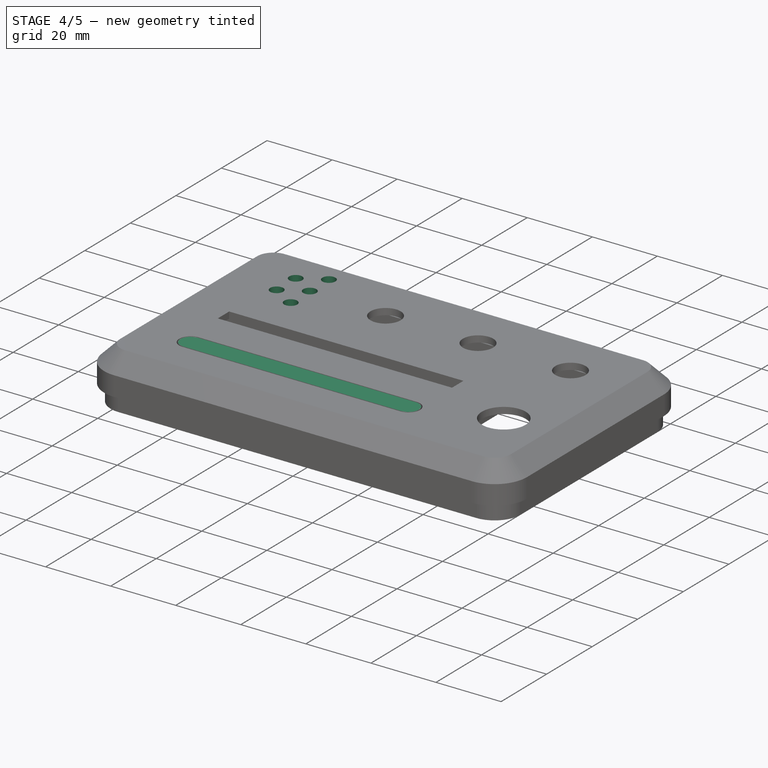
[diagram: stage 4 of 5 — iso view after this stage's code; geometry added in this stage tinted green]
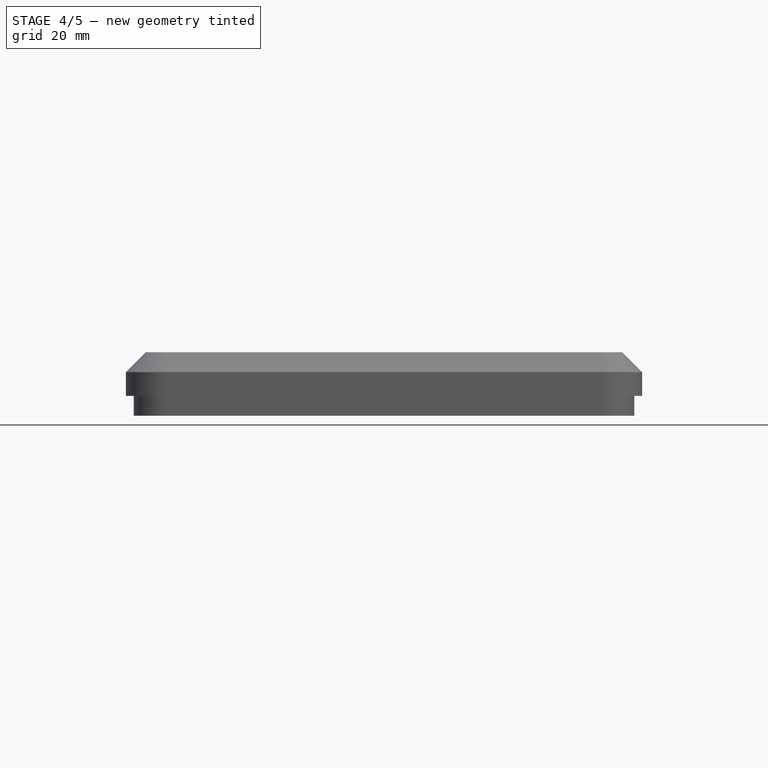
[diagram: stage 4 of 5 — front view after this stage's code; geometry added in this stage tinted green]
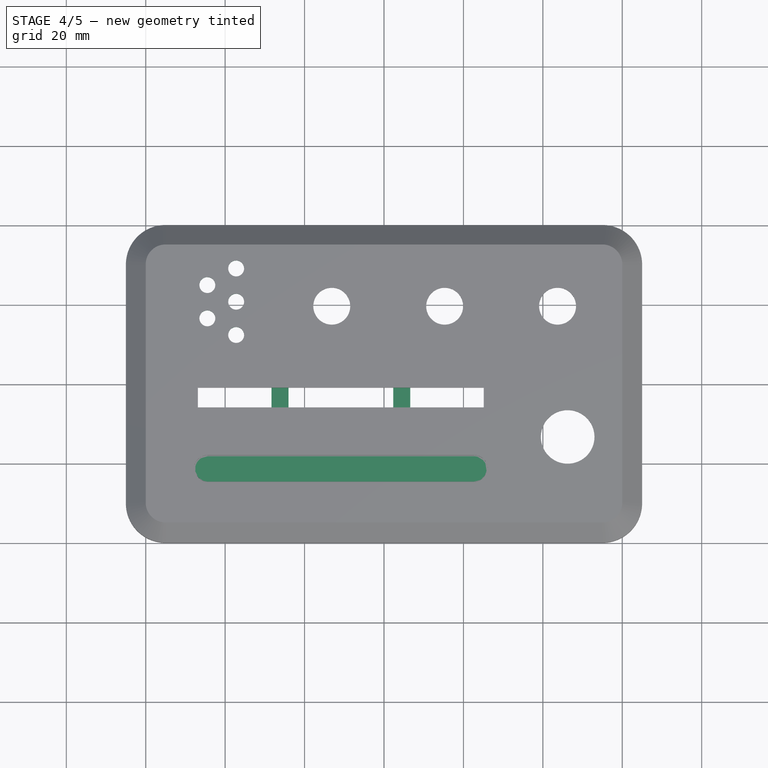
[diagram: stage 4 of 5 — top view after this stage's code; geometry added in this stage tinted green]
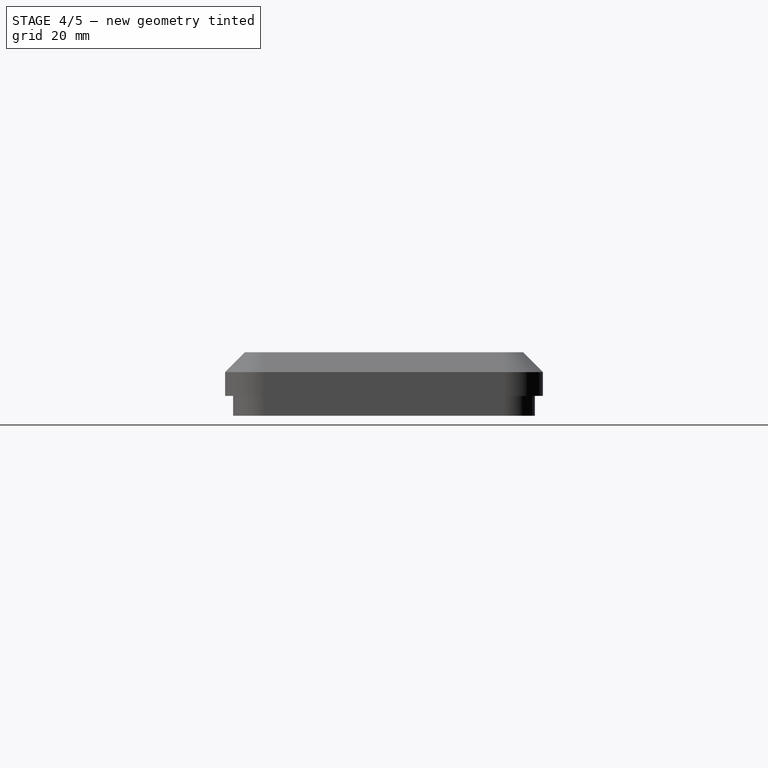
[diagram: stage 4 of 5 — right view after this stage's code; geometry added in this stage tinted green]
FEATURE [Sketcher::SketchObject] Sketch020
  ExternalGeometry = -> [Pad012]
  FullyConstrained = false
  MapMode = 5
  Placement = pos=(0,0,3.3) rot=(1,0,0;3.14159rad)
  Support = -> [Pad012]
  sketch-geometry (59):
    g0: LineSegment StartX=-36.5182 StartY=29.3342 StartZ=0 EndX=-36.5182 EndY=28.4752 EndZ=0
    g1: LineSegment StartX=-36.5182 StartY=28.4752 StartZ=0 EndX=-40.3182 EndY=28.4752 EndZ=0
    g2: LineSegment StartX=-40.3182 StartY=28.4752 StartZ=0 EndX=-40.3182 EndY=29.3342 EndZ=0
    g3: ArcOfCircle CenterX=-38.4182 CenterY=29.3342 CenterZ=0 NormalX=0 NormalY=0 NormalZ=1 AngleXU=0 Radius=1.9 StartAngle=2e-16 EndAngle=3.14159
    g4: Circle CenterX=-38.4182 CenterY=29.3342 CenterZ=0 NormalX=0 NormalY=0 NormalZ=1 AngleXU=0 Radius=0.7
    g5: LineSegment StartX=18.5835 StartY=29.3342 StartZ=0 EndX=18.5835 EndY=28.4752 EndZ=0
    g6: LineSegment StartX=18.5835 StartY=28.4752 StartZ=0 EndX=14.7835 EndY=28.4752 EndZ=0
    g7: LineSegment StartX=14.7835 StartY=28.4752 StartZ=0 EndX=14.7835 EndY=29.3342 EndZ=0
    g8: ArcOfCircle CenterX=16.6835 CenterY=29.3342 CenterZ=0 NormalX=0 NormalY=0 NormalZ=1 AngleXU=0 Radius=1.9 StartAngle=6e-16 EndAngle=3.14159
    g9: Circle CenterX=16.6835 CenterY=29.3342 CenterZ=0 NormalX=0 NormalY=0 NormalZ=1 AngleXU=0 Radius=0.7
    g10: LineSegment StartX=-18.1509 StartY=29.3342 StartZ=0 EndX=-18.1509 EndY=28.4752 EndZ=0
    g11: LineSegment StartX=-18.1509 StartY=28.4752 StartZ=0 EndX=-21.9509 EndY=28.4752 EndZ=0
    g12: LineSegment StartX=-21.9509 StartY=28.4752 StartZ=0 EndX=-21.9509 EndY=29.3342 EndZ=0
    g13: ArcOfCircle CenterX=-20.0509 CenterY=29.3342 CenterZ=0 NormalX=0 NormalY=0 NormalZ=1 AngleXU=0 Radius=1.9 StartAngle=6e-16 EndAngle=3.14159
    g14: Circle CenterX=-20.0509 CenterY=29.3342 CenterZ=0 NormalX=0 NormalY=0 NormalZ=1 AngleXU=0 Radius=0.7
    g15: LineSegment StartX=0.21628 StartY=29.3342 StartZ=0 EndX=0.21628 EndY=28.4752 EndZ=0
    g16: LineSegment StartX=0.21628 StartY=28.4752 StartZ=0 EndX=-3.58372 EndY=28.4752 EndZ=0
    g17: LineSegment StartX=-3.58372 StartY=28.4752 StartZ=0 EndX=-3.58372 EndY=29.3342 EndZ=0
    g18: ArcOfCircle CenterX=-1.68372 CenterY=29.3342 CenterZ=0 NormalX=0 NormalY=0 NormalZ=1 AngleXU=0 Radius=1.9 StartAngle=6e-16 EndAngle=3.14159
    g19: Circle CenterX=-1.68372 CenterY=29.3342 CenterZ=0 NormalX=0 NormalY=0 NormalZ=1 AngleXU=0 Radius=0.7
    g20: LineSegment [constr] StartX=-53.5673 StartY=26.7342 StartZ=0 EndX=-53.5673 EndY=21.5342 EndZ=0
    g21: LineSegment [constr] StartX=-53.5673 StartY=21.5342 StartZ=0 EndX=-53.5673 EndY=16.3342 EndZ=0
    g22: LineSegment [constr] StartX=-53.5673 StartY=21.5342 StartZ=0 EndX=17.2636 EndY=21.5342 EndZ=0
    g23: LineSegment [constr] StartX=-36.5182 StartY=28.4752 StartZ=0 EndX=-21.9509 EndY=28.4752 EndZ=0
    g24: LineSegment [constr] StartX=-18.1509 StartY=28.4752 StartZ=0 EndX=-3.58372 EndY=28.4752 EndZ=0
    g25: LineSegment [constr] StartX=0.21628 StartY=28.4752 StartZ=0 EndX=14.7835 EndY=28.4752 EndZ=0
    g26: LineSegment [constr] StartX=18.5835 StartY=28.4752 StartZ=0 EndX=33.4327 EndY=28.3342 EndZ=0
    g27: LineSegment [constr] StartX=-40.3182 StartY=28.4752 StartZ=0 EndX=-55.1673 EndY=28.3342 EndZ=0
    g28: LineSegment [constr] StartX=-38.4182 StartY=29.3342 StartZ=0 EndX=-20.0509 EndY=29.3342 EndZ=0
    g29: LineSegment [constr] StartX=-20.0509 StartY=29.3342 StartZ=0 EndX=-1.68372 EndY=29.3342 EndZ=0
    g30: LineSegment [constr] StartX=-1.68372 StartY=29.3342 StartZ=0 EndX=16.6835 EndY=29.3342 EndZ=0
    g31: LineSegment StartX=-36.5182 StartY=13.8752 StartZ=0 EndX=-36.5182 EndY=14.7342 EndZ=0
    g32: LineSegment StartX=-36.5182 StartY=14.7342 StartZ=0 EndX=-40.3077 EndY=14.7342 EndZ=0
    g33: LineSegment StartX=-40.3077 StartY=14.7342 StartZ=0 EndX=-40.3077 EndY=13.8752 EndZ=0
    g34: ArcOfCircle CenterX=-38.4129 CenterY=13.7342 CenterZ=0 NormalX=0 NormalY=0 NormalZ=1 AngleXU=0 Radius=1.9 StartAngle=3.06731 EndAngle=6.35746
    g35: Circle CenterX=-38.4129 CenterY=13.7342 CenterZ=0 NormalX=0 NormalY=0 NormalZ=1 AngleXU=0 Radius=0.7
    g36: LineSegment StartX=18.5835 StartY=13.7342 StartZ=0 EndX=18.5835 EndY=14.7342 EndZ=0
    g37: LineSegment StartX=18.5835 StartY=14.7342 StartZ=0 EndX=14.7835 EndY=14.7342 EndZ=0
    g38: LineSegment StartX=14.7835 StartY=14.7342 StartZ=0 EndX=14.7835 EndY=13.7342 EndZ=0
    g39: ArcOfCircle CenterX=16.6835 CenterY=13.7342 CenterZ=0 NormalX=0 NormalY=0 NormalZ=1 AngleXU=0 Radius=1.9 StartAngle=3.14159 EndAngle=6.28319
    g40: Circle CenterX=16.6835 CenterY=13.7342 CenterZ=0 NormalX=0 NormalY=0 NormalZ=1 AngleXU=0 Radius=0.7
    g41: LineSegment StartX=-18.1509 StartY=13.7342 StartZ=0 EndX=-18.1509 EndY=14.7342 EndZ=0
    g42: LineSegment StartX=-18.1509 StartY=14.7342 StartZ=0 EndX=-21.9509 EndY=14.7342 EndZ=0
    g43: LineSegment StartX=-21.9509 StartY=14.7342 StartZ=0 EndX=-21.9509 EndY=13.7342 EndZ=0
    g44: ArcOfCircle CenterX=-20.0509 CenterY=13.7342 CenterZ=0 NormalX=0 NormalY=0 NormalZ=1 AngleXU=0 Radius=1.9 StartAngle=3.14159 EndAngle=6.28319
    g45: Circle CenterX=-20.0509 CenterY=13.7342 CenterZ=0 NormalX=0 NormalY=0 NormalZ=1 AngleXU=0 Radius=0.7
    g46: LineSegment StartX=0.21628 StartY=13.7342 StartZ=0 EndX=0.21628 EndY=14.7342 EndZ=0
    g47: LineSegment StartX=0.21628 StartY=14.7342 StartZ=0 EndX=-3.58372 EndY=14.7342 EndZ=0
    g48: LineSegment StartX=-3.58372 StartY=14.7342 StartZ=0 EndX=-3.58372 EndY=13.7342 EndZ=0
    g49: ArcOfCircle CenterX=-1.68372 CenterY=13.7342 CenterZ=0 NormalX=0 NormalY=0 NormalZ=1 AngleXU=0 Radius=1.9 StartAngle=3.14159 EndAngle=6.28319
    g50: Circle CenterX=-1.68372 CenterY=13.7342 CenterZ=0 NormalX=0 NormalY=0 NormalZ=1 AngleXU=0 Radius=0.7
    g51: LineSegment [constr] StartX=-36.5182 StartY=14.7342 StartZ=0 EndX=-21.9509 EndY=14.7342 EndZ=0
    g52: LineSegment [constr] StartX=-18.1509 StartY=14.7342 StartZ=0 EndX=-3.58372 EndY=14.7342 EndZ=0
    g53: LineSegment [constr] StartX=0.21628 StartY=14.7342 StartZ=0 EndX=14.7835 EndY=14.7342 EndZ=0
    g54: LineSegment [constr] StartX=-38.4129 StartY=13.7342 StartZ=0 EndX=-20.0509 EndY=13.7342 EndZ=0
    g55: LineSegment [constr] StartX=-20.0509 StartY=13.7342 StartZ=0 EndX=-1.68372 EndY=13.7342 EndZ=0
    g56: LineSegment [constr] StartX=-1.68372 StartY=13.7342 StartZ=0 EndX=16.6835 EndY=13.7342 EndZ=0
    g57: LineSegment [constr] StartX=-40.3077 StartY=14.7342 StartZ=0 EndX=-55.1673 EndY=14.7342 EndZ=0
    g58: LineSegment [constr] StartX=18.5835 StartY=14.7342 StartZ=0 EndX=33.4327 EndY=14.7342 EndZ=0
  constraints (159):
    c: Coincident(g0,g1)
    c: Coincident(g1,g2)
    c: Horizontal(g1)
    c: Vertical(g0)
    c: Vertical(g2)
    c: Coincident(g3,g2)
    c: Coincident(g3,g0)
    c: Coincident(g4,g3)
    c: Equal(g2,g0)
    c: DistanceY(g3,g2) = 0
    c: Radius(g4) = 0.7
    c: Radius(g3) = 1.9
    c: Coincident(g5,g6)
    c: Coincident(g6,g7)
    c: Horizontal(g6)
    c: Vertical(g5)
    c: Vertical(g7)
    c: Coincident(g8,g7)
    c: Coincident(g8,g5)
    c: Coincident(g9,g8)
    c: Equal(g7,g5)
    c: DistanceY(g8,g7) = 0
    c: Equal(g4,g9) = 0.7
    c: Equal(g3,g8) = 1.9
    c: Coincident(g10,g11)
    c: Coincident(g11,g12)
    c: Horizontal(g11)
    c: Vertical(g10)
    c: Vertical(g12)
    c: Coincident(g13,g12)
    c: Coincident(g13,g10)
    c: Coincident(g14,g13)
    c: Equal(g12,g10)
    c: DistanceY(g13,g12) = 0
    c: Equal(g4,g14) = 0.7
    c: Equal(g3,g13) = 1.9
    c: Coincident(g15,g16)
    c: Coincident(g16,g17)
    c: Horizontal(g16)
    c: Vertical(g15)
    c: Vertical(g17)
    c: Coincident(g18,g17)
    c: Coincident(g18,g15)
    c: Coincident(g19,g18)
    c: Equal(g17,g15)
    c: DistanceY(g18,g17) = 0
    c: Coincident(g20,g-3)
    c: Vertical(g20)
    c: Coincident(g20,g21)
    c: Coincident(g21,g-4)
    c: Equal(g20,g21)
    c: Coincident(g22,g20)
    c: Horizontal(g22)
    c: Coincident(g23,g0)
    c: Coincident(g23,g11)
    c: Horizontal(g23)
    c: Coincident(g24,g10)
    c: Coincident(g24,g16)
    c: Horizontal(g24)
    c: Coincident(g25,g15)
    c: Coincident(g25,g6)
    c: Horizontal(g25)
    c: Coincident(g26,g5)
    c: Coincident(g26,g-6)
    c: Coincident(g27,g1)
    c: Coincident(g27,g-5)
    c: Equal(g23,g24)
    c: Equal(g24,g25)
    c: Equal(g27,g26)
    c: Equal(g8,g18)
    c: Coincident(g28,g3)
    c: Coincident(g28,g13)
    c: Horizontal(g28)
    c: Coincident(g28,g29)
    c: Coincident(g29,g18)
    c: Horizontal(g29)
    c: Coincident(g29,g30)
    c: Coincident(g30,g8)
    c: Horizontal(g30)
    c: Coincident(g31,g32)
    c: Coincident(g32,g33)
    c: Horizontal(g32)
    c: Vertical(g31)
    c: Vertical(g33)
    c: Coincident(g34,g33)
    c: Coincident(g34,g31)
    c: Coincident(g35,g34)
    c: Equal(g33,g31)
    c: Radius(g35) = 0.7
    c: Radius(g34) = 1.9
    c: Coincident(g36,g37)
    c: Coincident(g37,g38)
    c: Horizontal(g37)
    c: Vertical(g36)
    c: Vertical(g38)
    c: Coincident(g39,g38)
    c: Coincident(g39,g36)
    c: Coincident(g40,g39)
    c: Equal(g38,g36)
    c: Equal(g35,g40) = 0.7
    c: Equal(g34,g39) = 1.9
    c: Coincident(g41,g42)
    c: Coincident(g42,g43)
    c: Horizontal(g42)
    c: Vertical(g41)
    c: Vertical(g43)
    c: Coincident(g44,g43)
    c: Coincident(g44,g41)
    c: Coincident(g45,g44)
    c: Equal(g43,g41)
    c: Equal(g35,g45) = 0.7
    c: Equal(g34,g44) = 1.9
    c: Coincident(g46,g47)
    c: Coincident(g47,g48)
    c: Horizontal(g47)
    c: Vertical(g46)
    c: Vertical(g48)
    c: Coincident(g49,g48)
    c: Coincident(g49,g46)
    c: Coincident(g50,g49)
    c: Equal(g48,g46)
    c: Coincident(g51,g31)
    c: Coincident(g51,g42)
    c: Horizontal(g51)
    c: Coincident(g52,g41)
    c: Coincident(g52,g47)
    c: Horizontal(g52)
    c: Coincident(g53,g46)
    c: Coincident(g53,g37)
    c: Horizontal(g53)
    c: Equal(g51,g52)
    c: Equal(g52,g53)
    c: Equal(g39,g49)
    c: Coincident(g54,g34)
    c: Coincident(g54,g44)
    c: Horizontal(g54)
    c: Coincident(g54,g55)
    c: Coincident(g55,g49)
    c: Horizontal(g55)
    c: Coincident(g55,g56)
    c: Coincident(g56,g39)
    c: Horizontal(g56)
    c: Coincident(g57,g32)
    c: Coincident(g57,g-7)
    c: Coincident(g58,g36)
    c: Coincident(g58,g-8)
    c: Equal(g33,g2)
    c: DistanceY(g-5,g3) = 1
    c: DistanceY(g34,g-7) = 1
    c: DistanceX(g31,g0) = 0
    c: DistanceX(g11,g42) = 0
    c: DistanceX(g47,g16) = 0
    c: DistanceX(g37,g6) = 0
    c: DistanceX(g3) = -38.4182
    c: DistanceX(g34) = -38.4129
    c: Equal(g50,g45)
    c: Equal(g19,g14)
    c: Horizontal(g57)
    c: Equal(g38,g46)
FEATURE [PartDesign::Pad] Pad013
  BaseFeature = -> Pad012
  ClaimChildren = false
  Direction = (1,1,1)
  Fit = 0
  FitJoin = 0
  InnerFit = 0
  InnerFitJoin = 0
  InnerTaperAngle = 0
  InnerTaperAngleRev = 0
  Length = 1.5
  Length2 = 100
  NewSolid = false
  Placement = pos=(0,0,11) rot=(0,0,1;0rad)
  Profile = -> Sketch020
  Reversed = true
  Suppress = false
  Type = 0
FEATURE [PartDesign::Body] Body002  label="Bottom_shell"
  AutoGroupSolids = false
  ExportMode = 0
  Group = -> [Sketch008,Import001,Pad004,Sketch009,Pad005,Sketch010,Import002,Sketch011,Pad006,Sketch012,Pocket001,Sketch013,Pocket002,Sketch014,Sketch023,Pad016]
  Origin = -> Origin005
  Tip = -> Pad016
  _ExportChildren = -> [Import001,Pad004,Pad005,Sketch010,Import002,Pad006,Pocket001,Pocket002,Sketch014,Pad016]
  _GroupVersion = 1
FEATURE [Part::SubShapeBinder] Import005  label="Import005(Pocket003)"
  BindCopyOnChange = 0
  BindMode = 0
  ClaimChildren = false
  Context = -> Body005 [Import005.]
  FillStyle = 0
  Fuse = false
  MakeFace = false
  PartialLoad = false
  Relative = true
  Support = -> [Body003[Pocket003.]]
  _Version = 7
FEATURE [Part::SubShapeBinder] Import006  label="Import006(Pad015)"
  BindCopyOnChange = 0
  BindMode = 0
  ClaimChildren = false
  Context = -> Body006 [Import006.]
  FillStyle = 0
  Fuse = false
  MakeFace = false
  PartialLoad = false
  Relative = true
  Support = -> [Body[Pad015.]]
  _Version = 7
FEATURE [Sketcher::SketchObject] Sketch025
  FullyConstrained = true
  MapMode = 5
  Placement = pos=(0,0,1) rot=(1,0,0;3.14159rad)
  Support = -> [Import006]
  sketch-geometry (12):
    g0: ArcOfCircle CenterX=-26.2007 CenterY=12.5342 CenterZ=0 NormalX=0 NormalY=0 NormalZ=1 AngleXU=0 Radius=2.14 StartAngle=1e-16 EndAngle=3.14159
    g1: ArcOfCircle CenterX=-26.2007 CenterY=-5.46584 CenterZ=0 NormalX=0 NormalY=0 NormalZ=1 AngleXU=0 Radius=2.14 StartAngle=3.14159 EndAngle=6.28319
    g2: LineSegment StartX=-28.3407 StartY=12.5342 StartZ=0 EndX=-28.3407 EndY=-5.46584 EndZ=0
    g3: LineSegment StartX=-24.0607 StartY=12.5342 StartZ=0 EndX=-24.0607 EndY=-5.46584 EndZ=0
    g4: ArcOfCircle CenterX=4.466 CenterY=12.5342 CenterZ=0 NormalX=0 NormalY=0 NormalZ=1 AngleXU=0 Radius=2.14 StartAngle=2e-16 EndAngle=3.14159
    g5: ArcOfCircle CenterX=4.466 CenterY=-5.52507 CenterZ=0 NormalX=0 NormalY=0 NormalZ=1 AngleXU=0 Radius=2.14 StartAngle=3.14159 EndAngle=6.28319
    g6: LineSegment StartX=2.326 StartY=12.5342 StartZ=0 EndX=2.326 EndY=-5.52507 EndZ=0
    g7: LineSegment StartX=6.606 StartY=12.5342 StartZ=0 EndX=6.606 EndY=-5.52507 EndZ=0
    g8: Circle CenterX=-26.2007 CenterY=12.5342 CenterZ=0 NormalX=0 NormalY=0 NormalZ=1 AngleXU=0 Radius=1
    g9: Circle CenterX=4.466 CenterY=12.5342 CenterZ=0 NormalX=0 NormalY=0 NormalZ=1 AngleXU=0 Radius=1
    g10: Circle CenterX=-26.2007 CenterY=-5.46584 CenterZ=0 NormalX=0 NormalY=0 NormalZ=1 AngleXU=0 Radius=1
    g11: Circle CenterX=4.466 CenterY=-5.52507 CenterZ=0 NormalX=0 NormalY=0 NormalZ=1 AngleXU=0 Radius=1
  constraints (28):
    c: Tangent(g0,g3) = 1.5708
    c: Tangent(g0,g2) = -1.5708
    c: Tangent(g2,g1) = -1.5708
    c: Tangent(g3,g1) = 1.5708
    c: Vertical(g2)
    c: Equal(g0,g1)
    c: Tangent(g4,g7) = 1.5708
    c: Tangent(g4,g6) = -1.5708
    c: Tangent(g6,g5) = -1.5708
    c: Tangent(g7,g5) = 1.5708
    c: Vertical(g6)
    c: Equal(g4,g5)
    c: Coincident(g8,g0)
    c: Coincident(g9,g4)
    c: Coincident(g11,g5)
    c: DistanceX(g10) = -26.2007
    c: DistanceY(g10) = -5.46584
    c: DistanceY(g0) = 12.5342
    c: DistanceX(g4) = 4.466
    c: DistanceY(g4) = 12.5342
    c: DistanceY(g5) = -5.52507
    c: Radius(g8) = 1
    c: Equal(g8,g9)
    c: Equal(g8,g10)
    c: Equal(g8,g11)
    c: Radius(g4) = 2.14
    c: Equal(g4,g0)
    c: Coincident(g1,g10)
FEATURE [PartDesign::Pad] Pad018
  ClaimChildren = false
  Direction = (1,1,1)
  Fit = 0
  FitJoin = 0
  InnerFit = 0
  InnerFitJoin = 0
  InnerTaperAngle = 0
  InnerTaperAngleRev = 0
  Length = 3
  Length2 = 100
  NewSolid = false
  Profile = -> Sketch025
  Suppress = false
  Type = 0
FEATURE [PartDesign::Chamfer] Chamfer002
  Angle = 45
  Base = -> Pad018 [Edge18,Edge15,Edge33,Edge36]
  BaseFeature = -> Pad018
  ChamferType = 0
  FlipDirection = false
  NewSolid = false
  Size = 1
  Size2 = 1
  SupportTransform = false
  Suppress = false
FEATURE [PartDesign::Body] Body006  label="Fader_clip"
  AutoGroupSolids = false
  ExportMode = 0
  Group = -> [Import006,Sketch025,Pad018,Chamfer002]
  Origin = -> Origin009
  Tip = -> Chamfer002
  _ExportChildren = -> [Import006,Pad018,Chamfer002]
  _GroupVersion = 1
FEATURE [PartDesign::Pad] Pad015
  BaseFeature = -> Pad014
  ClaimChildren = false
  Direction = (1,1,1)
  Fit = 0
  FitJoin = 0
  InnerFit = 0
  InnerFitJoin = 0
  InnerTaperAngle = 0
  InnerTaperAngleRev = 0
  Length = 5.5
  Length2 = 9
  NewSolid = false
  Profile = -> Import003
  Reversed = true
  Suppress = false
  Type = 4
FEATURE [Sketcher::SketchObject] Sketch022
  FullyConstrained = false
  MapMode = 5
  Placement = pos=(0,0,9) rot=(1,0,0;3.14159rad)
  Support = -> [Pad015]
  sketch-geometry (1):
    g0: Circle CenterX=-55 CenterY=30 CenterZ=0 NormalX=0 NormalY=0 NormalZ=1 AngleXU=0 Radius=3.75506
  constraints (2):
    c: DistanceX(g0) = -55
    c: DistanceY(g0) = 30
FEATURE [PartDesign::Pocket] Pocket003
  BaseFeature = -> Pad013
  ClaimChildren = false
  Fit = 0
  FitJoin = 0
  InnerFit = 0
  InnerFitJoin = 0
  InnerTaperAngle = 0
  InnerTaperAngleRev = 0
  Length = 5
  Length2 = 100
  NewSolid = false
  Placement = pos=(0,0,11) rot=(0,0,1;0rad)
  Profile = -> Sketch022
  Suppress = false
  Type = 1
FEATURE [PartDesign::Body] Body005  label="LED Clips"
  AutoGroupSolids = false
  ExportMode = 0
  Group = -> [Import005,Sketch024,Pad017]
  Origin = -> Origin008
  Tip = -> Pad017
  _ExportChildren = -> [Import005,Pad017]
  _GroupVersion = 1
FEATURE [App::Part] Step_Models_e172
  ExportMode = 1
  Origin = -> Origin011
  _GroupVersion = 1
FEATURE [PartDesign::CoordinateSystem] Local_CS_e172
  AttacherType = Attacher::AttachEngine3D
FEATURE [Sketcher::SketchObject] PCB_Sketch_e172
  FullyConstrained = false
  sketch-geometry (16):
    g0: LineSegment StartX=63.654 StartY=-134.97 StartZ=0 EndX=63.654 EndY=-102.73 EndZ=0
    g1: LineSegment StartX=105.61 StartY=-139.366 StartZ=0 EndX=68.05 EndY=-139.366 EndZ=0
    g2: LineSegment StartX=110.006 StartY=-102.6 StartZ=0 EndX=110.006 EndY=-134.97 EndZ=0
    g3: LineSegment StartX=95.9878 StartY=-97.903 StartZ=0 EndX=105.31 EndY=-97.904 EndZ=0
    g4: LineSegment StartX=91.395 StartY=-95.21 StartZ=0 EndX=94.654 EndY=-97.484 EndZ=0
    g5: LineSegment StartX=75.08 StartY=-94.871 StartZ=0 EndX=90.32 EndY=-94.8719 EndZ=0
    g6: LineSegment StartX=68.04 StartY=-98.344 StartZ=0 EndX=70.666 EndY=-98.344 EndZ=0
    g7: LineSegment StartX=73.442 StartY=-95.8293 StartZ=0 EndX=72.698 EndY=-97.1552 EndZ=0
    g8: ArcOfCircle CenterX=105.31 CenterY=-102.6 CenterZ=0 NormalX=0 NormalY=0 NormalZ=1 AngleXU=0 Radius=4.696 StartAngle=0 EndAngle=1.5708
    g9: ArcOfCircle CenterX=68.05 CenterY=-134.97 CenterZ=0 NormalX=0 NormalY=0 NormalZ=1 AngleXU=0 Radius=4.396 StartAngle=3.14159 EndAngle=4.71239
    g10: ArcOfCircle CenterX=105.61 CenterY=-134.97 CenterZ=0 NormalX=0 NormalY=0 NormalZ=1 AngleXU=0 Radius=4.396 StartAngle=4.71239 EndAngle=6.28319
    g11: ArcOfCircle CenterX=95.987 CenterY=-95.573 CenterZ=0 NormalX=0 NormalY=0 NormalZ=1 AngleXU=0 Radius=2.32998 StartAngle=4.10332 EndAngle=4.71275
    g12: ArcOfCircle CenterX=90.32 CenterY=-96.75 CenterZ=0 NormalX=0 NormalY=0 NormalZ=1 AngleXU=0 Radius=1.87809 StartAngle=0.961379 EndAngle=1.57081
    g13: ArcOfCircle CenterX=68.04 CenterY=-102.73 CenterZ=0 NormalX=0 NormalY=0 NormalZ=1 AngleXU=0 Radius=4.386 StartAngle=1.5708 EndAngle=3.14159
    g14: ArcOfCircle CenterX=70.666 CenterY=-96.013 CenterZ=0 NormalX=0 NormalY=0 NormalZ=1 AngleXU=0 Radius=2.331 StartAngle=4.71239 EndAngle=5.77111
    g15: ArcOfCircle CenterX=75.08 CenterY=-96.75 CenterZ=0 NormalX=0 NormalY=0 NormalZ=1 AngleXU=0 Radius=1.879 StartAngle=1.5708 EndAngle=2.62951
  constraints (16):
    c: Coincident(g0,g9)
    c: Coincident(g0,g13)
    c: Coincident(g1,g9)
    c: Coincident(g13,g6)
    c: Coincident(g14,g6)
    c: Coincident(g14,g7)
    c: Coincident(g15,g7)
    c: Coincident(g5,g15)
    c: Coincident(g12,g5)
    c: Coincident(g4,g12)
    c: Coincident(g4,g11)
    c: Coincident(g11,g3)
    c: Coincident(g3,g8)
    c: Coincident(g10,g1)
    c: Coincident(g10,g2)
    c: Coincident(g2,g8)
FEATURE [Part::Feature] Pcb_e172
  Placement = pos=(-122,130,0) rot=(0,0,1;0rad)
  shape: bbox 46.35 x 44.5 x 1.6 mm, 73 faces (baked)
FEATURE [App::Part] Board_Geoms_e172
  ExportMode = 1
  Group = -> [Local_CS_e172,Pcb_e172,PCB_Sketch_e172]
  Origin = -> Origin010
  _ExportChildren = -> [Local_CS_e172,Pcb_e172,PCB_Sketch_e172]
  _GroupVersion = 1
FEATURE [App::Part] Board_e172  label="granular_synth_controller001"
  ExportMode = 1
  Group = -> [Board_Geoms_e172,Step_Models_e172]
  Origin = -> Origin001
  Placement = pos=(-1,0,0) rot=(0,0,1;0rad)
  _ExportChildren = -> [Board_Geoms_e172,Step_Models_e172]
  _GroupVersion = 1
FEATURE [Sketcher::SketchObject] Sketch026
  FullyConstrained = true
  MapMode = 5
  Placement = pos=(0,0,11) rot=(0,0,1;0rad)
  Support = -> [Pad015]
FEATURE [Sketcher::SketchObject] Sketch027
  FullyConstrained = false
  MapMode = 5
  Support = -> [XY_Plane]
  sketch-geometry (11):
    g0: Circle CenterX=-37.2255 CenterY=20.5898 CenterZ=0 NormalX=0 NormalY=0 NormalZ=1 AngleXU=0 Radius=2
    g1: Circle CenterX=-37.2255 CenterY=12.2111 CenterZ=0 NormalX=0 NormalY=0 NormalZ=1 AngleXU=0 Radius=2
    g2: Circle CenterX=-37.2255 CenterY=28.9685 CenterZ=0 NormalX=0 NormalY=0 NormalZ=1 AngleXU=0 Radius=2
    g3: Circle CenterX=-44.4817 CenterY=24.7792 CenterZ=0 NormalX=0 NormalY=0 NormalZ=1 AngleXU=0 Radius=2
    g4: Circle CenterX=-44.4817 CenterY=16.4004 CenterZ=0 NormalX=0 NormalY=0 NormalZ=1 AngleXU=0 Radius=2
    g5: LineSegment [constr] StartX=-37.2255 StartY=28.9685 StartZ=0 EndX=-37.2255 EndY=20.5898 EndZ=0
    g6: LineSegment [constr] StartX=-37.2255 StartY=20.5898 StartZ=0 EndX=-37.2255 EndY=12.2111 EndZ=0
    g7: LineSegment [constr] StartX=-37.2255 StartY=28.9685 StartZ=0 EndX=-44.4817 EndY=24.7792 EndZ=0
    g8: LineSegment [constr] StartX=-44.4817 StartY=24.7792 StartZ=0 EndX=-37.2255 EndY=20.5898 EndZ=0
    g9: LineSegment [constr] StartX=-37.2255 StartY=20.5898 StartZ=0 EndX=-44.4817 EndY=16.4004 EndZ=0
    g10: LineSegment [constr] StartX=-44.4817 StartY=16.4004 StartZ=0 EndX=-37.2255 EndY=12.2111 EndZ=0
  constraints (24):
    c: Coincident(g5,g2)
    c: Coincident(g5,g0)
    c: Coincident(g5,g6)
    c: Coincident(g6,g1)
    c: Vertical(g6)
    c: Coincident(g7,g2)
    c: Coincident(g7,g3)
    c: Coincident(g7,g8)
    c: Coincident(g8,g0)
    c: Coincident(g9,g0)
    c: Coincident(g9,g4)
    c: Coincident(g9,g10)
    c: Coincident(g10,g1)
    c: Vertical(g5)
    c: Equal(g5,g7)
    c: Equal(g7,g8)
    c: Equal(g8,g9)
    c: Equal(g9,g10)
    c: Radius(g1) = 2
    c: Equal(g1,g4)
    c: Equal(g1,g0)
    c: Equal(g1,g3)
    c: Equal(g1,g2)
    c: Equal(g5,g6)
FEATURE [PartDesign::Pocket] Pocket004
  BaseFeature = -> Pad015
  ClaimChildren = false
  Fit = 0
  FitJoin = 0
  InnerFit = 0
  InnerFitJoin = 0
  InnerTaperAngle = 0
  InnerTaperAngleRev = 0
  Length = 5
  Length2 = 100
  Midplane = true
  NewSolid = false
  Profile = -> Sketch027
  Suppress = false
  Type = 1
FEATURE [PartDesign::Body] Body  label="top_shell"
  AutoGroupSolids = false
  ExportMode = 0
  Group = -> [Sketch,Pad,Chamfer,Thickness,DatumPlane,Sketch003,Pocket,Sketch004,Wrap,Pad002,Sketch005,Sketch006,Sketch007,Sketch015,Pad008,Sketch016,Pad009,Sketch021,Pad014,Import003,Pad015,Sketch026,Sketch027,Pocket004]
  Origin = -> Origin
  Tip = -> Pocket004
  _ExportChildren = -> [Pad,Chamfer,Thickness,DatumPlane,Pocket,Wrap,Pad002,Sketch005,Sketch006,Sketch007,Pad008,Pad009,Pad014,Import003,Pad015,Sketch026,Pocket004]
  _GroupVersion = 1
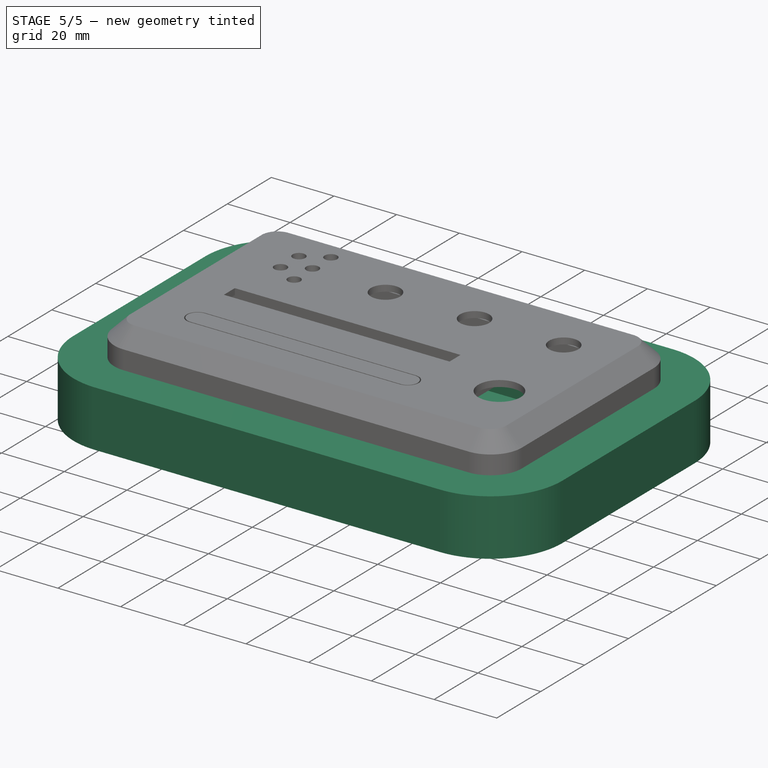
[diagram: stage 5 of 5 — iso view after this stage's code; geometry added in this stage tinted green]
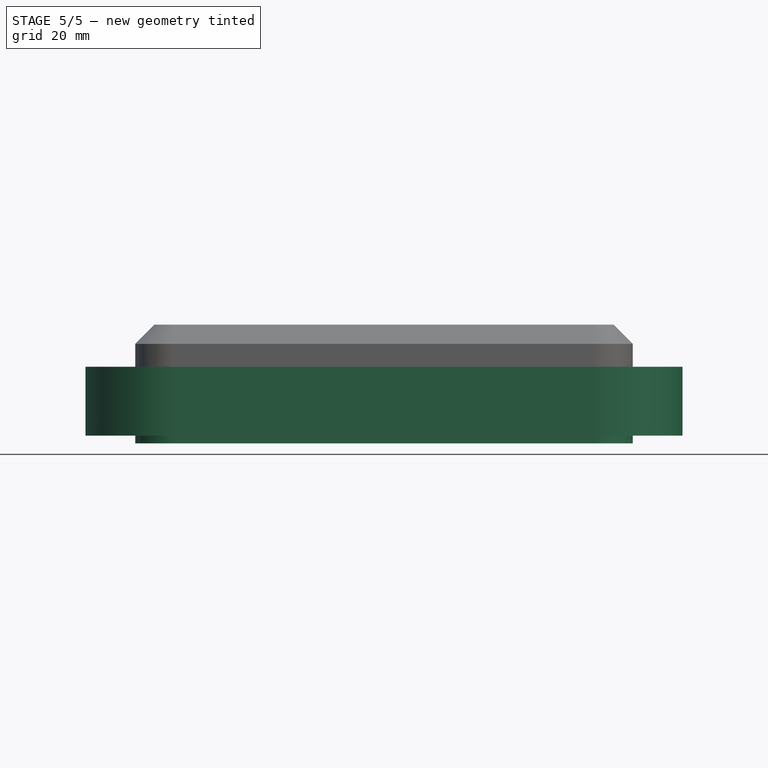
[diagram: stage 5 of 5 — front view after this stage's code; geometry added in this stage tinted green]
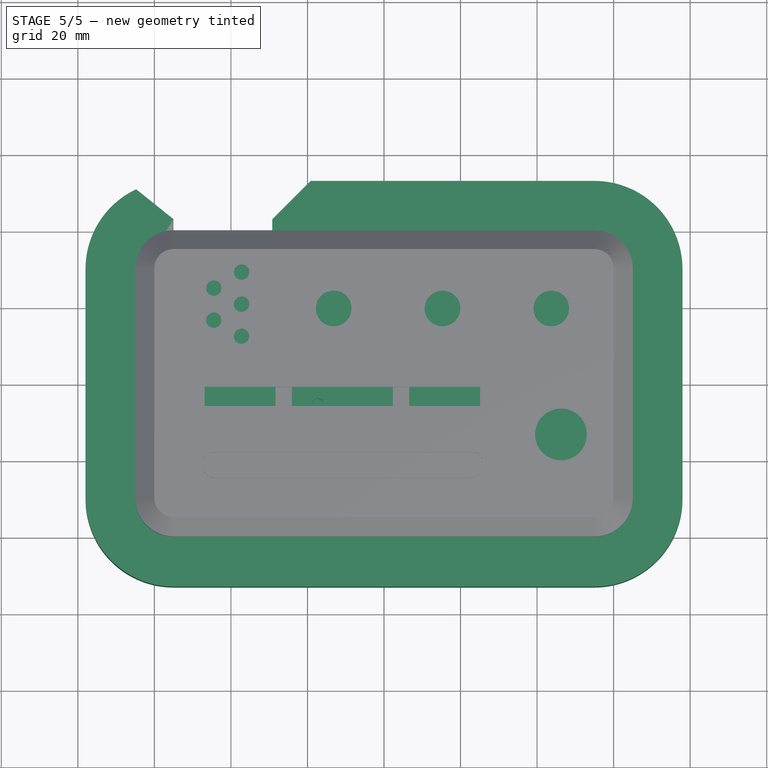
[diagram: stage 5 of 5 — top view after this stage's code; geometry added in this stage tinted green]
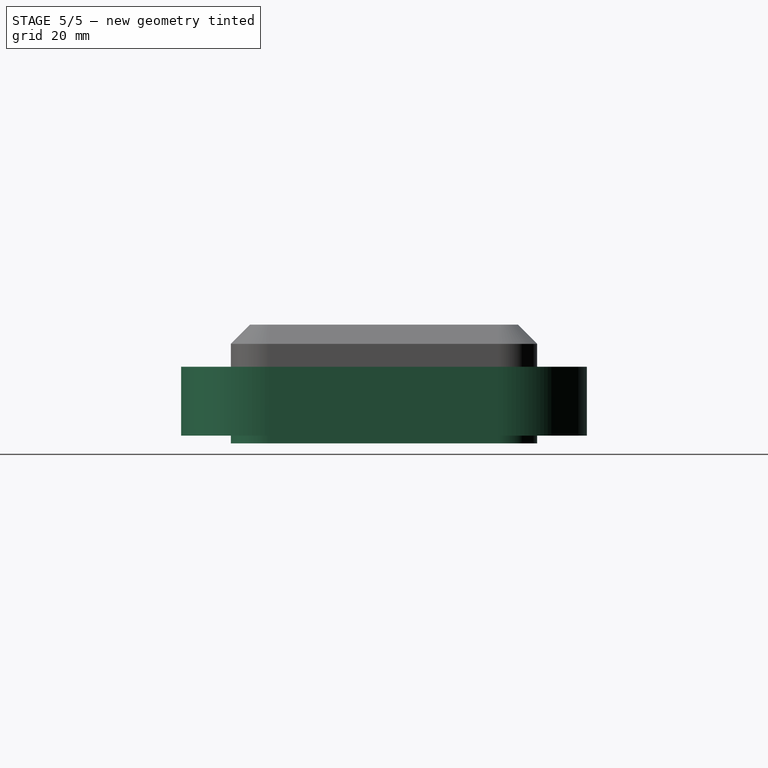
[diagram: stage 5 of 5 — right view after this stage's code; geometry added in this stage tinted green]
FEATURE [Sketcher::SketchObject] Sketch005
  ExternalGeometry = -> [Pocket]
  FullyConstrained = true
  MapMode = 5
  Support = -> [XY_Plane]
  sketch-geometry (21):
    g0: LineSegment StartX=-29.21 StartY=38 StartZ=0 EndX=55 EndY=38 EndZ=0
    g1: LineSegment StartX=63 StartY=30 StartZ=0 EndX=63 EndY=-30 EndZ=0
    g2: LineSegment StartX=55 StartY=-38 StartZ=0 EndX=-55 EndY=-38 EndZ=0
    g3: LineSegment StartX=-63 StartY=-30 StartZ=0 EndX=-63 EndY=30 EndZ=0
    g4: ArcOfCircle CenterX=-55 CenterY=30 CenterZ=0 NormalX=0 NormalY=0 NormalZ=1 AngleXU=0 Radius=8 StartAngle=1.5708 EndAngle=3.14159
    g5: ArcOfCircle CenterX=55 CenterY=30 CenterZ=0 NormalX=0 NormalY=0 NormalZ=1 AngleXU=0 Radius=8 StartAngle=0 EndAngle=1.5708
    g6: ArcOfCircle CenterX=-55 CenterY=-30 CenterZ=0 NormalX=0 NormalY=0 NormalZ=1 AngleXU=0 Radius=8 StartAngle=3.14159 EndAngle=4.71239
    g7: ArcOfCircle CenterX=55 CenterY=-30 CenterZ=0 NormalX=0 NormalY=0 NormalZ=1 AngleXU=0 Radius=8 StartAngle=4.71239 EndAngle=6.28319
    g8: LineSegment StartX=-29.21 StartY=53 StartZ=0 EndX=55 EndY=53 EndZ=0
    g9: LineSegment StartX=78 StartY=30 StartZ=0 EndX=78 EndY=-30 EndZ=0
    g10: LineSegment StartX=55 StartY=-53 StartZ=0 EndX=-55 EndY=-53 EndZ=0
    g11: LineSegment StartX=-78 StartY=-30 StartZ=0 EndX=-78 EndY=30 EndZ=0
    g12: ArcOfCircle CenterX=-55 CenterY=30 CenterZ=0 NormalX=0 NormalY=0 NormalZ=1 AngleXU=0 Radius=23 StartAngle=1.5708 EndAngle=3.14159
    g13: ArcOfCircle CenterX=-55 CenterY=-30 CenterZ=0 NormalX=0 NormalY=0 NormalZ=1 AngleXU=0 Radius=23 StartAngle=3.14159 EndAngle=4.71239
    g14: ArcOfCircle CenterX=55 CenterY=30 CenterZ=0 NormalX=0 NormalY=0 NormalZ=1 AngleXU=0 Radius=23 StartAngle=0 EndAngle=1.5708
    g15: ArcOfCircle CenterX=55 CenterY=-30 CenterZ=0 NormalX=0 NormalY=0 NormalZ=1 AngleXU=0 Radius=23 StartAngle=4.71239 EndAngle=6.28319
    g16: LineSegment StartX=-55 StartY=38 StartZ=0 EndX=-55 EndY=53 EndZ=0
    g17: LineSegment [constr] StartX=-55 StartY=30 StartZ=0 EndX=-29.21 EndY=30 EndZ=0
    g18: LineSegment StartX=-29.21 StartY=38 StartZ=0 EndX=-29.21 EndY=53 EndZ=0
    g19: LineSegment [constr] StartX=-55 StartY=38 StartZ=0 EndX=-55 EndY=30 EndZ=0
    g20: LineSegment [constr] StartX=-29.21 StartY=38 StartZ=0 EndX=-29.21 EndY=30 EndZ=0
  constraints (50):
    c: Horizontal(g0)
    c: Horizontal(g2)
    c: Vertical(g1)
    c: Vertical(g3)
    c: Tangent(g3,g4) = 1.5708
    c: Tangent(g0,g5) = 1.5708
    c: Tangent(g1,g5) = 1.5708
    c: Tangent(g3,g6) = 1.5708
    c: Tangent(g2,g6) = 1.5708
    c: Tangent(g1,g7) = 1.5708
    c: Tangent(g2,g7) = 1.5708
    c: DistanceX(g4) = -55
    c: DistanceX(g6) = -55
    c: DistanceY(g6) = -30
    c: DistanceX(g7) = 55
    c: DistanceY(g7) = -30
    c: DistanceX(g5) = 55
    c: Coincident(g-3,g1)
    c: Horizontal(g8)
    c: Horizontal(g10)
    c: Vertical(g9)
    c: Tangent(g11,g12) = 1.5708
    c: Tangent(g11,g13) = 1.5708
    c: Tangent(g10,g13) = 1.5708
    c: Tangent(g8,g14) = 1.5708
    c: Tangent(g9,g14) = 1.5708
    c: Tangent(g9,g15) = 1.5708
    c: Tangent(g10,g15) = 1.5708
    c: Coincident(g15,g7)
    c: Coincident(g5,g14)
    c: Coincident(g12,g4)
    c: Coincident(g13,g6)
    c: DistanceX(g11,g3) = 15
    c: Coincident(g17,g4)
    c: Horizontal(g17)
    c: Angle(g18,g17) = 1.5708
    c: Angle(g17,g16) = 1.5708
    c: Coincident(g12,g16)
    c: Coincident(g4,g16)
    c: Coincident(g8,g18)
    c: Coincident(g0,g18)
    c: Coincident(g19,g4)
    c: Coincident(g19,g4)
    c: Coincident(g20,g0)
    c: Coincident(g20,g17)
    c: DistanceX(g4,g17) = 25.79
    c: Parallel(g20,g18)
    c: Parallel(g16,g19)
    c: DistanceY(g4) = 30
    c: Vertical(g11)
FEATURE [PartDesign::FeatureWrap] Wrap  label="Unnamed"
  Frozen = false
  NewSolid = false
  Suppress = false
  Type = 2
  WrapFeature = -> Sketch005
FEATURE [Part::Extrusion] Extrude
  Base = -> Sketch005
  Dir = (0,0,1)
  DirMode = 2
  FaceMakerClass = Part::FaceMakerBullseye
  InnerTaperAngle = 0
  InnerTaperAngleRev = 0
  LengthFwd = 18
  LengthRev = 0
  Reversed = true
  Solid = true
  Symmetric = false
FEATURE [Part::Chamfer] Chamfer001  label="wood_part"
  Base = -> Extrude
  EdgeLinks = -> Extrude [Edge26,Edge50]
  Edges = 2 edges r=10: [Edge26,Edge50]
FEATURE [PartDesign::SubShapeBinder] Import003  label="Import003(Sketch014)"
  BindCopyOnChange = 0
  BindMode = 0
  ClaimChildren = false
  Context = -> Body [Import003.]
  FillStyle = 0
  Fuse = false
  MakeFace = false
  PartialLoad = false
  Relative = true
  Support = -> [Sketch014]
  _Version = 7
FEATURE [PartDesign::FeatureBase] BaseFeature
  BaseFeature = -> Chamfer001
  NewSolid = false
  Suppress = false
FEATURE [PartDesign::Body] Body004  label="wood_part_2"
  AutoGroupSolids = false
  BaseFeature = -> Chamfer001
  ExportMode = 0
  Group = -> [BaseFeature]
  Origin = -> Origin007
  Tip = -> BaseFeature
  _ExportChildren = -> [BaseFeature]
  _GroupVersion = 1
FEATURE [Sketcher::SketchObject] Sketch023
  ExternalGeometry = -> [Import002]
  FullyConstrained = true
  MapMode = 5
  Placement = pos=(0,0,-18) rot=(0,0,1;0rad)
  Support = -> [Pocket002]
  sketch-geometry (8):
    g0: Circle CenterX=-54.96 CenterY=27.27 CenterZ=0 NormalX=0 NormalY=0 NormalZ=1 AngleXU=0 Radius=1.4
    g1: Circle CenterX=-17.69 CenterY=27.4 CenterZ=0 NormalX=0 NormalY=0 NormalZ=1 AngleXU=0 Radius=1.4
    g2: Circle CenterX=-54.95 CenterY=-4.97 CenterZ=0 NormalX=0 NormalY=0 NormalZ=1 AngleXU=0 Radius=1.4
    g3: Circle CenterX=-17.39 CenterY=-4.97 CenterZ=0 NormalX=0 NormalY=0 NormalZ=1 AngleXU=0 Radius=1.4
    g4: Circle CenterX=-17.69 CenterY=27.4 CenterZ=0 NormalX=0 NormalY=0 NormalZ=1 AngleXU=0 Radius=3
    g5: Circle CenterX=-54.96 CenterY=27.27 CenterZ=0 NormalX=0 NormalY=0 NormalZ=1 AngleXU=0 Radius=3
    g6: Circle CenterX=-54.95 CenterY=-4.97 CenterZ=0 NormalX=0 NormalY=0 NormalZ=1 AngleXU=0 Radius=3
    g7: Circle CenterX=-17.39 CenterY=-4.97 CenterZ=0 NormalX=0 NormalY=0 NormalZ=1 AngleXU=0 Radius=3
  constraints (20):
    c: DistanceX(g0) = -54.96
    c: DistanceY(g0) = 27.27
    c: DistanceX(g1) = -17.69
    c: DistanceY(g1) = 27.4
    c: DistanceX(g3) = -17.39
    c: DistanceY(g3) = -4.97
    c: DistanceX(g2) = -54.95
    c: DistanceY(g2) = -4.97
    c: Radius(g0) = 1.4
    c: Equal(g0,g1)
    c: Equal(g0,g2)
    c: Equal(g0,g3)
    c: Coincident(g4,g1)
    c: Coincident(g5,g0)
    c: Coincident(g6,g2)
    c: Coincident(g7,g3)
    c: Radius(g5) = 3
    c: Equal(g5,g4)
    c: Equal(g5,g6)
    c: Equal(g5,g7)
FEATURE [PartDesign::Pad] Pad016
  BaseFeature = -> Pocket002
  ClaimChildren = false
  Direction = (1,1,1)
  Fit = 0
  FitJoin = 0
  InnerFit = 0
  InnerFitJoin = 0
  InnerTaperAngle = 0
  InnerTaperAngleRev = 0
  Length = 5
  Length2 = 100
  NewSolid = false
  Profile = -> Sketch023
  Suppress = false
  Type = 0
FEATURE [PartDesign::Body] Body003  label="LEDs_suppott"
  AutoGroupSolids = false
  ExportMode = 0
  Group = -> [Sketch017,Pad010,Sketch018,Pad011,Sketch019,Pad012,Sketch020,Pad013,Sketch022,Pocket003]
  Origin = -> Origin006
  Tip = -> Pocket003
  _ExportChildren = -> [Pad010,Pad011,Pad012,Pad013,Pocket003]
  _GroupVersion = 1
FEATURE [Sketcher::SketchObject] Sketch024
  ExternalGeometry = -> [Import005]
  FullyConstrained = false
  MapMode = 5
  Placement = pos=(0,0,3.3) rot=(1,0,0;3.14159rad)
  Support = -> [Pocket003]
  sketch-geometry (44):
    g0: Circle CenterX=-38.4182 CenterY=29.3342 CenterZ=0 NormalX=0 NormalY=0 NormalZ=1 AngleXU=0 Radius=1
    g1: Circle CenterX=-20.0509 CenterY=29.3342 CenterZ=0 NormalX=0 NormalY=0 NormalZ=1 AngleXU=0 Radius=1
    g2: Circle CenterX=-1.68372 CenterY=29.3342 CenterZ=0 NormalX=0 NormalY=0 NormalZ=1 AngleXU=0 Radius=1
    g3: Circle CenterX=16.6835 CenterY=29.3342 CenterZ=0 NormalX=0 NormalY=0 NormalZ=1 AngleXU=0 Radius=1
    g4: Circle CenterX=-38.4129 CenterY=13.7342 CenterZ=0 NormalX=0 NormalY=0 NormalZ=1 AngleXU=0 Radius=1
    g5: Circle CenterX=-20.0509 CenterY=13.7342 CenterZ=0 NormalX=0 NormalY=0 NormalZ=1 AngleXU=0 Radius=1
    g6: Circle CenterX=-1.68372 CenterY=13.7342 CenterZ=0 NormalX=0 NormalY=0 NormalZ=1 AngleXU=0 Radius=1
    g7: Circle CenterX=16.6835 CenterY=13.7342 CenterZ=0 NormalX=0 NormalY=0 NormalZ=1 AngleXU=0 Radius=1
    g8: ArcOfCircle CenterX=-38.4182 CenterY=29.3342 CenterZ=0 NormalX=0 NormalY=0 NormalZ=1 AngleXU=0 Radius=2.00302 StartAngle=0 EndAngle=3.14159
    g9: ArcOfCircle CenterX=-38.4182 CenterY=13.7342 CenterZ=0 NormalX=0 NormalY=0 NormalZ=1 AngleXU=0 Radius=2.00302 StartAngle=3.14159 EndAngle=6.28319
    g10: LineSegment StartX=-40.4212 StartY=29.3342 StartZ=0 EndX=-40.4212 EndY=24.1238 EndZ=0
    g11: LineSegment StartX=-36.4151 StartY=29.3342 StartZ=0 EndX=-36.4151 EndY=24.1238 EndZ=0
    g12: ArcOfCircle CenterX=-20.0509 CenterY=29.3342 CenterZ=0 NormalX=0 NormalY=0 NormalZ=1 AngleXU=0 Radius=2.00302 StartAngle=9e-16 EndAngle=3.14159
    g13: ArcOfCircle CenterX=-20.0509 CenterY=13.7342 CenterZ=0 NormalX=0 NormalY=0 NormalZ=1 AngleXU=0 Radius=2.00302 StartAngle=3.14159 EndAngle=6.28319
    g14: LineSegment StartX=-22.054 StartY=29.3342 StartZ=0 EndX=-22.054 EndY=24.1238 EndZ=0
    g15: LineSegment StartX=-18.0479 StartY=29.3342 StartZ=0 EndX=-18.0479 EndY=24.1238 EndZ=0
    g16: ArcOfCircle CenterX=-1.68372 CenterY=29.3342 CenterZ=0 NormalX=0 NormalY=0 NormalZ=1 AngleXU=0 Radius=2.00302 StartAngle=7e-16 EndAngle=3.14159
    g17: ArcOfCircle CenterX=-1.68372 CenterY=13.7342 CenterZ=0 NormalX=0 NormalY=0 NormalZ=1 AngleXU=0 Radius=2.00302 StartAngle=3.14159 EndAngle=6.28319
    g18: LineSegment StartX=-3.68674 StartY=29.3342 StartZ=0 EndX=-3.68674 EndY=24.1238 EndZ=0
    g19: LineSegment StartX=0.319299 StartY=29.3342 StartZ=0 EndX=0.319299 EndY=24.1238 EndZ=0
    g20: ArcOfCircle CenterX=16.6835 CenterY=29.3342 CenterZ=0 NormalX=0 NormalY=0 NormalZ=1 AngleXU=0 Radius=2.00302 StartAngle=0 EndAngle=3.14159
    g21: ArcOfCircle CenterX=16.6835 CenterY=13.7342 CenterZ=0 NormalX=0 NormalY=0 NormalZ=1 AngleXU=0 Radius=2.00302 StartAngle=3.14159 EndAngle=6.28319
    g22: LineSegment StartX=14.6805 StartY=29.3342 StartZ=0 EndX=14.6805 EndY=24.1238 EndZ=0
    g23: LineSegment StartX=18.6865 StartY=29.3342 StartZ=0 EndX=18.6865 EndY=24.1238 EndZ=0
    g24: ArcOfCircle CenterX=-48.6835 CenterY=21.647 CenterZ=0 NormalX=0 NormalY=0 NormalZ=1 AngleXU=0 Radius=2.47682 StartAngle=1.5708 EndAngle=4.71239
    g25: ArcOfCircle CenterX=26.3181 CenterY=21.647 CenterZ=0 NormalX=0 NormalY=0 NormalZ=1 AngleXU=0 Radius=2.47682 StartAngle=4.71239 EndAngle=7.85398
    g26: LineSegment StartX=-48.6835 StartY=19.1702 StartZ=0 EndX=-40.4212 EndY=19.1702 EndZ=0
    g27: LineSegment StartX=-48.6835 StartY=24.1238 StartZ=0 EndX=-40.4212 EndY=24.1238 EndZ=0
    g28: LineSegment StartX=-36.4151 StartY=24.1238 StartZ=0 EndX=-22.054 EndY=24.1238 EndZ=0
    g29: LineSegment StartX=-36.4151 StartY=19.1702 StartZ=0 EndX=-22.054 EndY=19.1702 EndZ=0
    g30: LineSegment StartX=-40.4212 StartY=19.1702 StartZ=0 EndX=-40.4212 EndY=13.7342 EndZ=0
    g31: LineSegment StartX=-36.4151 StartY=19.1702 StartZ=0 EndX=-36.4151 EndY=13.7342 EndZ=0
    g32: LineSegment StartX=-22.054 StartY=19.1702 StartZ=0 EndX=-22.054 EndY=13.7342 EndZ=0
    g33: LineSegment StartX=-18.0479 StartY=24.1238 StartZ=0 EndX=-3.68674 EndY=24.1238 EndZ=0
    g34: LineSegment StartX=-18.0479 StartY=19.1702 StartZ=0 EndX=-3.68674 EndY=19.1702 EndZ=0
    g35: LineSegment StartX=-18.0479 StartY=19.1702 StartZ=0 EndX=-18.0479 EndY=13.7342 EndZ=0
    g36: LineSegment StartX=-3.68674 StartY=19.1702 StartZ=0 EndX=-3.68674 EndY=13.7342 EndZ=0
    g37: LineSegment StartX=0.319299 StartY=24.1238 StartZ=0 EndX=14.6805 EndY=24.1238 EndZ=0
    g38: LineSegment StartX=0.319299 StartY=19.1702 StartZ=0 EndX=14.6805 EndY=19.1702 EndZ=0
    g39: LineSegment StartX=0.319299 StartY=19.1702 StartZ=0 EndX=0.319299 EndY=13.7342 EndZ=0
    g40: LineSegment StartX=18.6865 StartY=24.1238 StartZ=0 EndX=26.3181 EndY=24.1238 EndZ=0
    g41: LineSegment StartX=18.6865 StartY=19.1702 StartZ=0 EndX=26.3181 EndY=19.1702 EndZ=0
    g42: LineSegment StartX=14.6805 StartY=19.1702 StartZ=0 EndX=14.6805 EndY=13.7342 EndZ=0
    g43: LineSegment StartX=18.6865 StartY=19.1702 StartZ=0 EndX=18.6865 EndY=13.7342 EndZ=0
  constraints (91):
    c: DistanceX(g0) = -38.4182
    c: DistanceY(g0) = 29.3342
    c: DistanceX(g1) = -20.0509
    c: DistanceY(g1) = 29.3342
    c: DistanceX(g2) = -1.68372
    c: DistanceY(g2) = 29.3342
    c: DistanceX(g3) = 16.6835
    c: DistanceY(g3) = 29.3342
    c: DistanceX(g4) = -38.4129
    c: DistanceY(g4) = 13.7342
    c: DistanceX(g5) = -20.0509
    c: DistanceY(g5) = 13.7342
    c: DistanceX(g6) = -1.68372
    c: DistanceY(g6) = 13.7342
    c: DistanceX(g7) = 16.6835
    c: DistanceY(g7) = 13.7342
    c: Radius(g0) = 1
    c: Equal(g0, g1-g7) x7
    c: Tangent(g8,g11) = 1.5708
    c: Tangent(g8,g10) = -1.5708
    c: Coincident(g30,g9) = -1.5708
    c: Coincident(g31,g9) = 1.5708
    c: Vertical(g10)
    c: Equal(g8,g9)
    c: Coincident(g8,g0)
    c: Tangent(g12,g15) = 1.5708
    c: Tangent(g12,g14) = -1.5708
    c: Coincident(g32,g13) = -1.5708
    c: Coincident(g35,g13) = 1.5708
    c: Vertical(g14)
    c: Equal(g12,g13)
    c: Coincident(g12,g1)
    c: Tangent(g16,g19) = 1.5708
    c: Tangent(g16,g18) = -1.5708
    c: Coincident(g36,g17) = -1.5708
    c: Coincident(g39,g17) = 1.5708
    c: Vertical(g18)
    c: Equal(g16,g17)
    c: Coincident(g16,g2)
    c: Tangent(g20,g23) = 1.5708
    c: Tangent(g20,g22) = -1.5708
    c: Coincident(g42,g21) = -1.5708
    c: Coincident(g43,g21) = 1.5708
    c: Vertical(g22)
    c: Equal(g20,g21)
    c: Coincident(g20,g3)
    c: DistanceY(g4,g9) = 0
    c: DistanceY(g13,g4) = 0
    c: DistanceY(g17,g6) = 0
    c: DistanceY(g21,g7) = 0
    c: Equal(g8,g12)
    c: Equal(g12,g16)
    c: Equal(g16,g20)
    c: Tangent(g24,g27) = 1.5708
    c: Tangent(g24,g26) = -1.5708
    c: Coincident(g41,g25) = -1.5708
    c: Coincident(g40,g25) = 1.5708
    c: Horizontal(g26)
    c: Equal(g24,g25)
    c: Tangent(g27,g28)
    c: Tangent(g26,g29)
    c: Coincident(g10,g27)
    c: Coincident(g30,g26)
    c: Tangent(g10,g30)
    c: Coincident(g11,g28)
    c: Coincident(g31,g29)
    c: Tangent(g11,g31)
    c: Tangent(g14,g32)
    c: Coincident(g28,g14)
    c: Tangent(g28,g33)
    c: Coincident(g29,g32)
    c: Tangent(g29,g34)
    c: Coincident(g15,g33)
    c: Coincident(g35,g34)
    c: Tangent(g15,g35)
    c: Tangent(g18,g36)
    c: Coincident(g33,g18)
    c: Tangent(g33,g37)
    c: Coincident(g34,g36)
    c: Tangent(g34,g38)
    c: Coincident(g19,g37)
    c: Coincident(g39,g38)
    c: Tangent(g19,g39)
    c: Tangent(g37,g40)
    c: Tangent(g38,g41)
    c: Coincident(g22,g37)
    c: Coincident(g42,g38)
    c: Tangent(g22,g42)
    c: Coincident(g23,g40)
    c: Coincident(g43,g41)
    c: Tangent(g23,g43)
FEATURE [PartDesign::Pad] Pad017
  ClaimChildren = false
  Direction = (1,1,1)
  Fit = 0
  FitJoin = 0
  InnerFit = 0
  InnerFitJoin = 0
  InnerTaperAngle = 0
  InnerTaperAngleRev = 0
  Length = 2
  Length2 = 100
  NewSolid = false
  Placement = pos=(0,0,11) rot=(0,0,1;0rad)
  Profile = -> Sketch024
  Suppress = false
  Type = 0
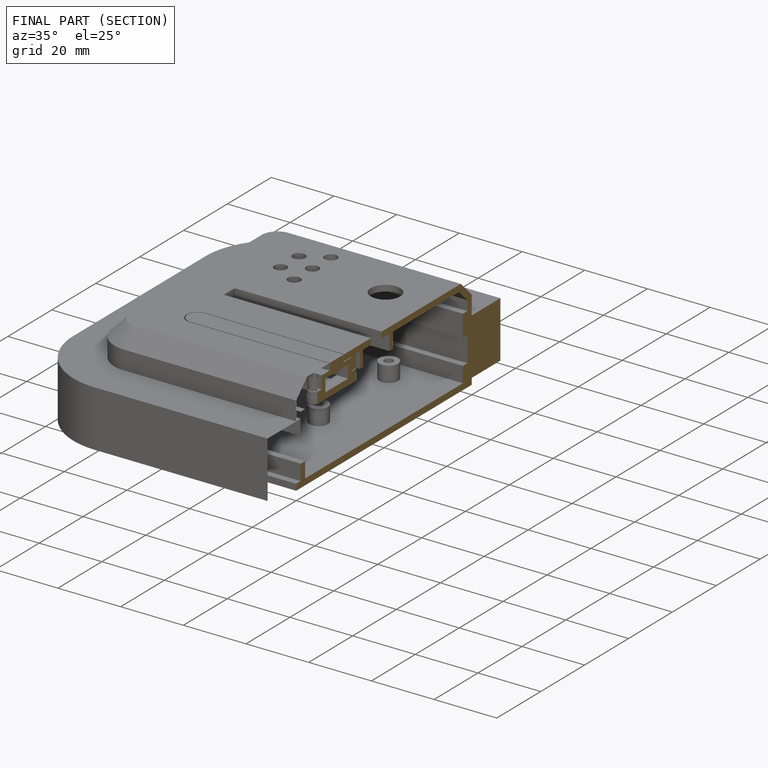
[diagram: finished part — half-section view (interior)]
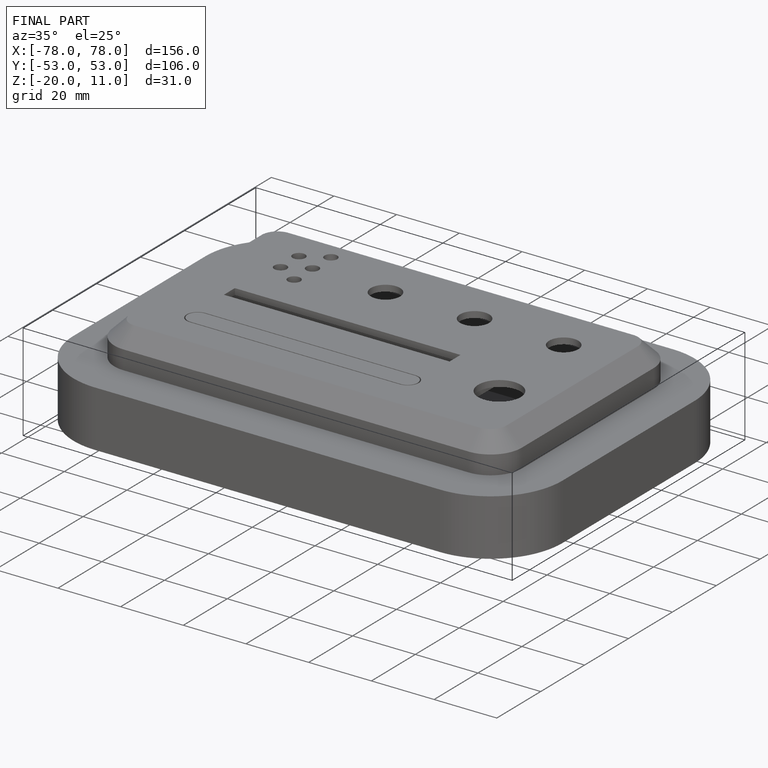
[diagram: finished part — iso view with bounding-box wireframe]
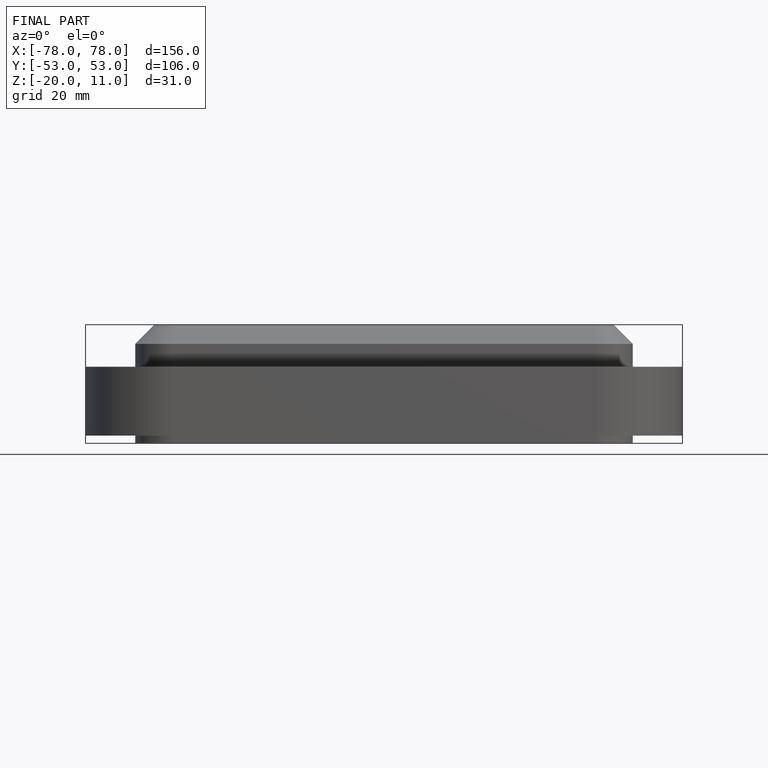
[diagram: finished part — front view with bounding-box wireframe]
